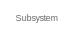
[diagram: root canvas - part 1/23, top left region]
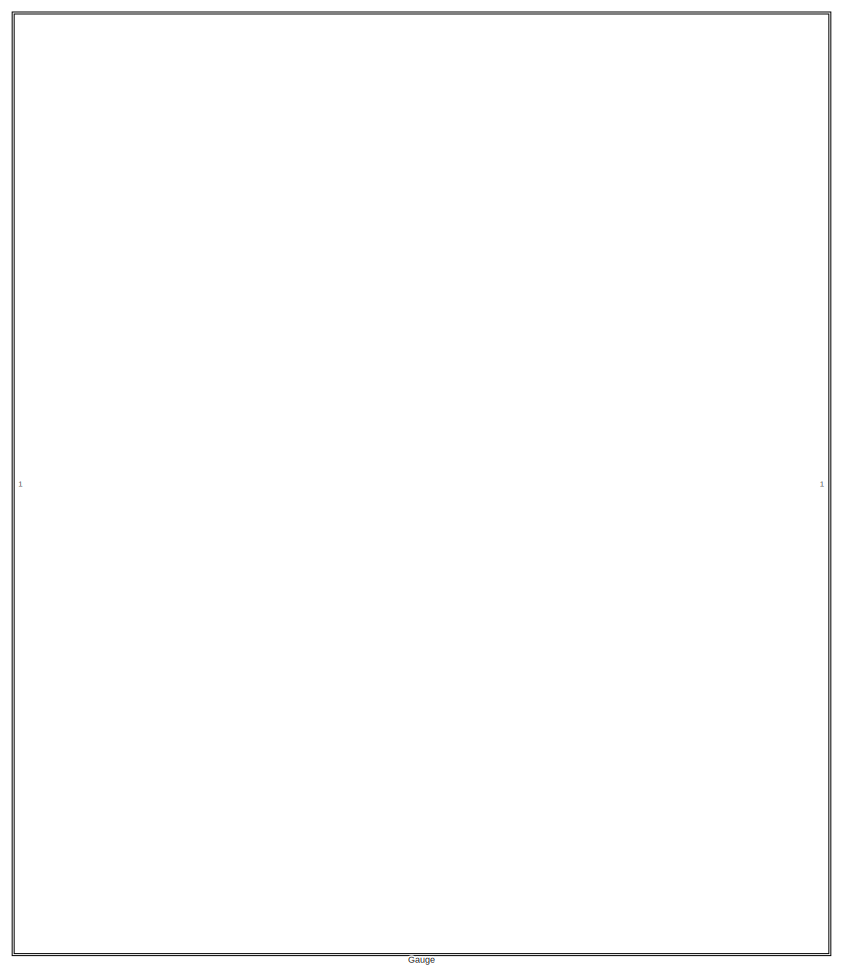
[diagram: root canvas - part 2/23, top left region]
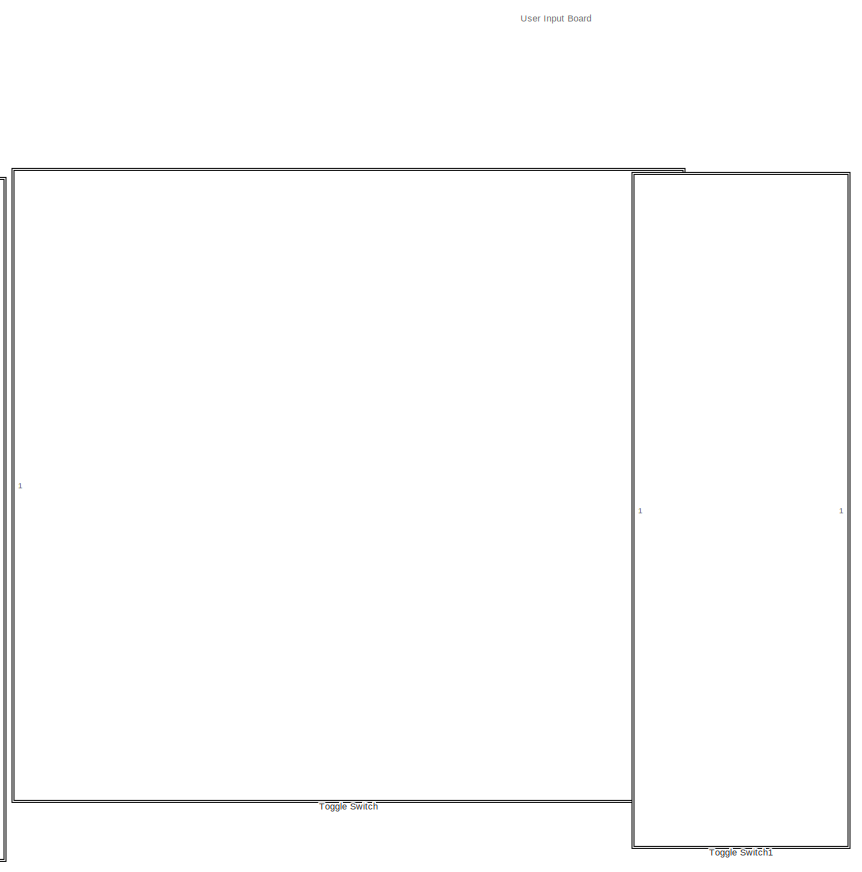
[diagram: root canvas - part 3/23, top center region]
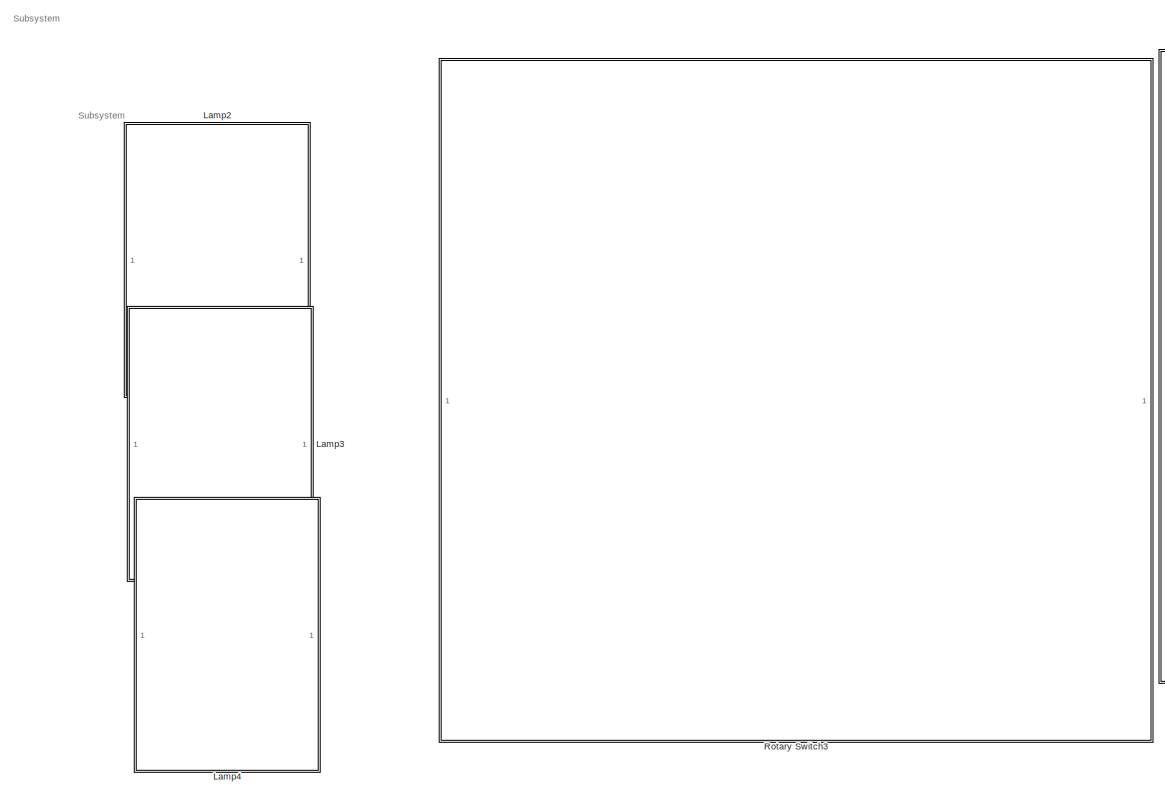
[diagram: root canvas - part 4/23, top center region]
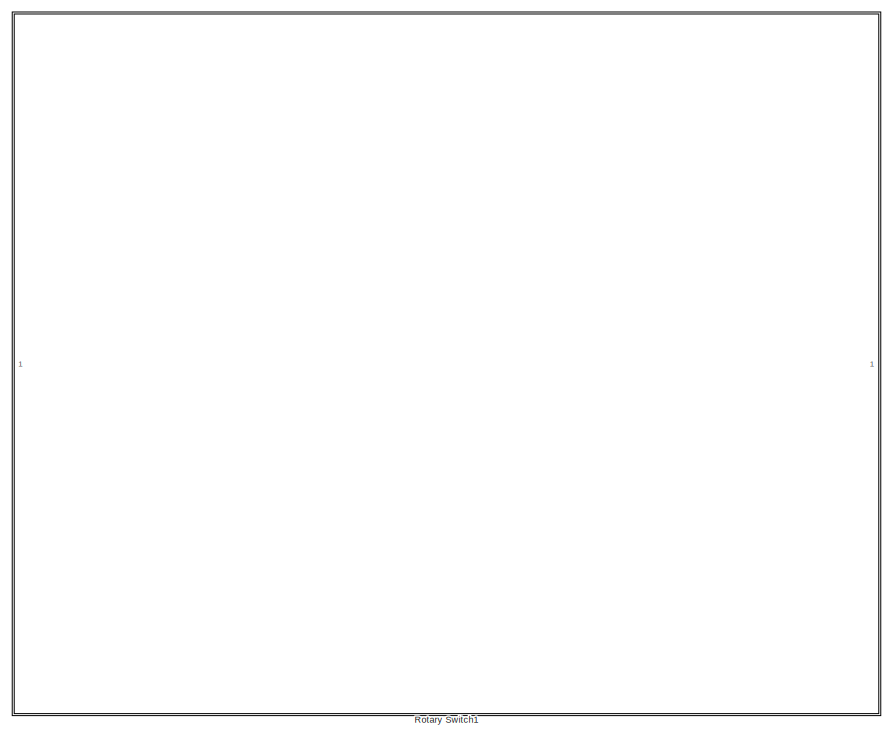
[diagram: root canvas - part 5/23, top right region]
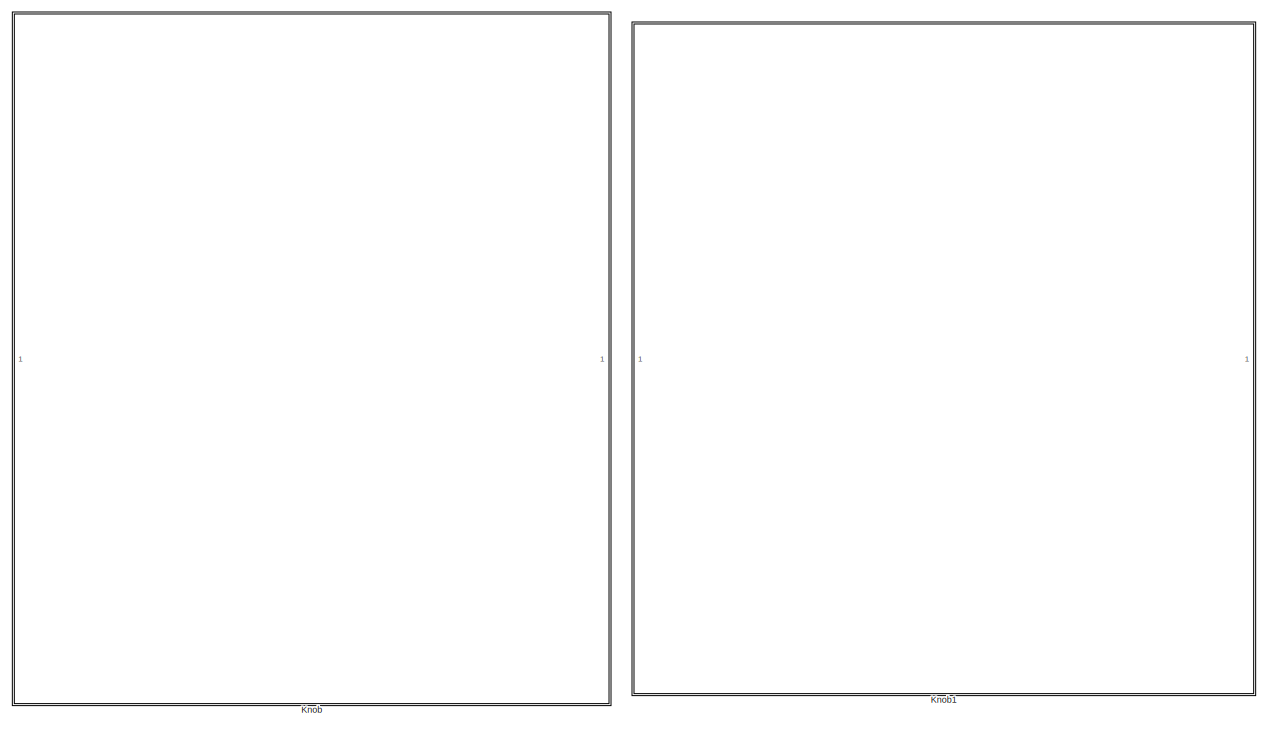
[diagram: root canvas - part 6/23, top right region]
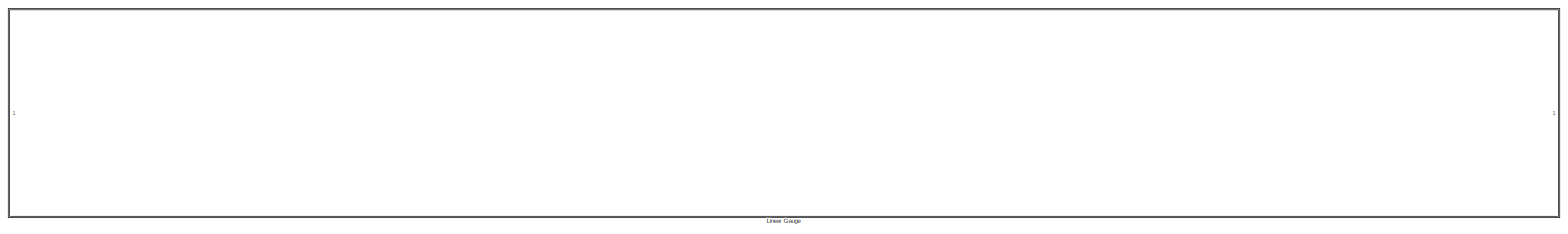
[diagram: root canvas - part 7/23, top left region]
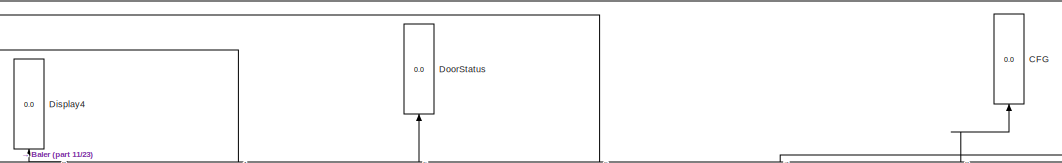
[diagram: root canvas - part 8/23, top right region]
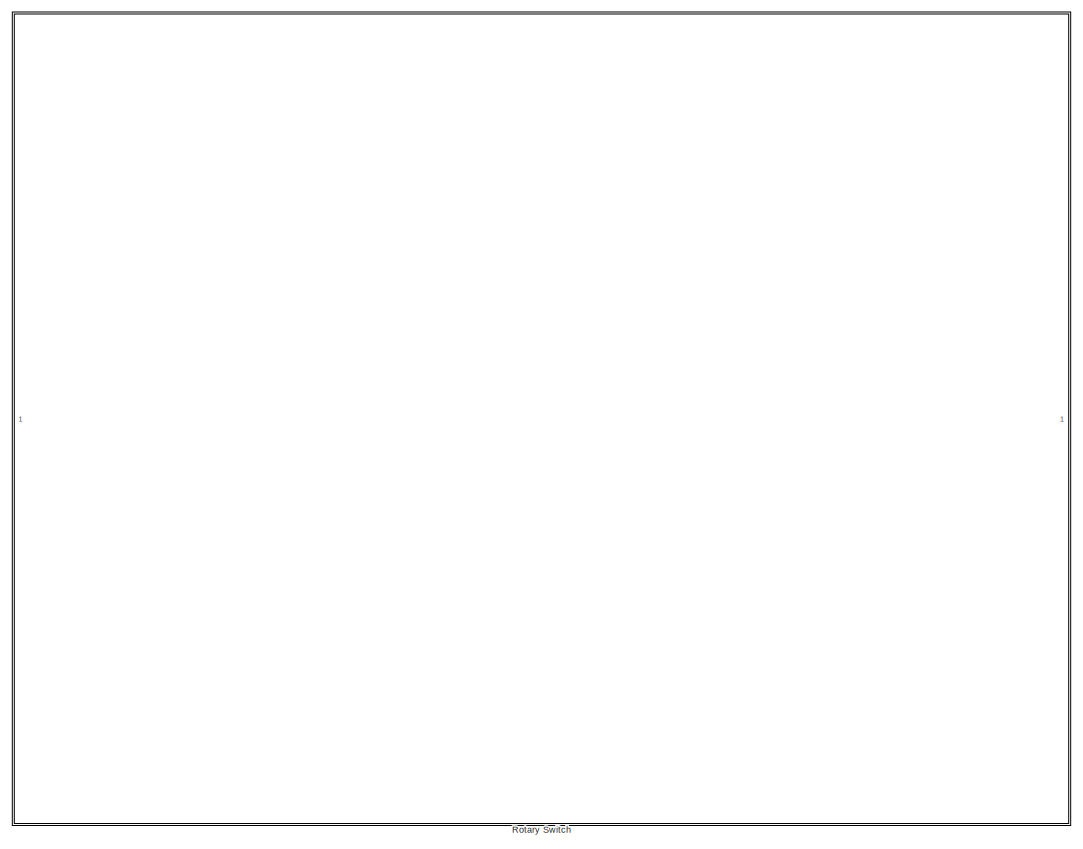
[diagram: root canvas - part 9/23, middle left region]
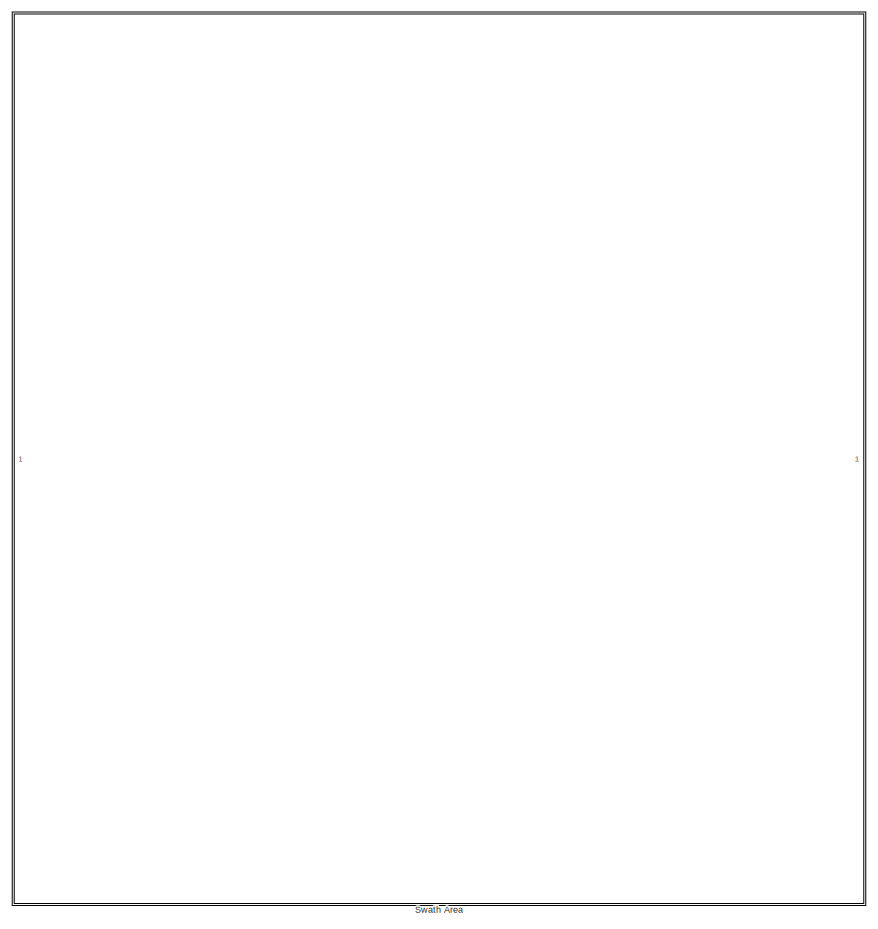
[diagram: root canvas - part 10/23, middle left region]
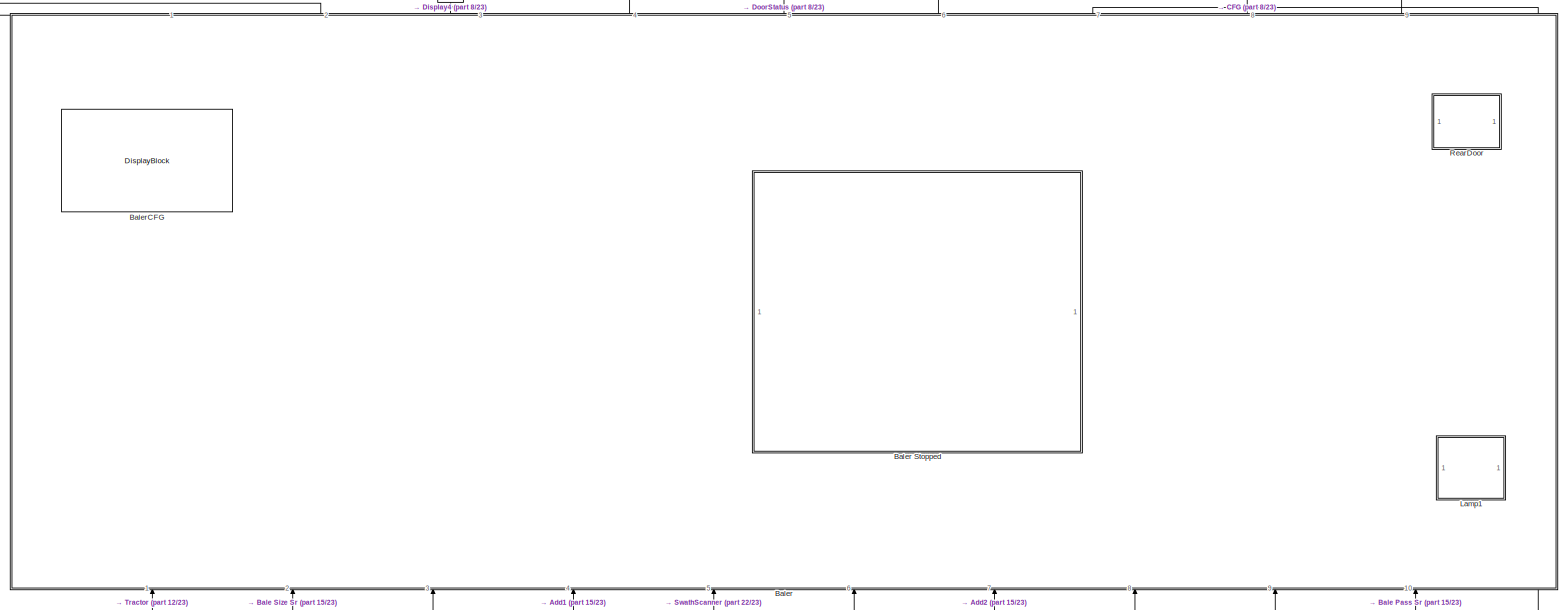
[diagram: root canvas - part 11/23, middle right region]
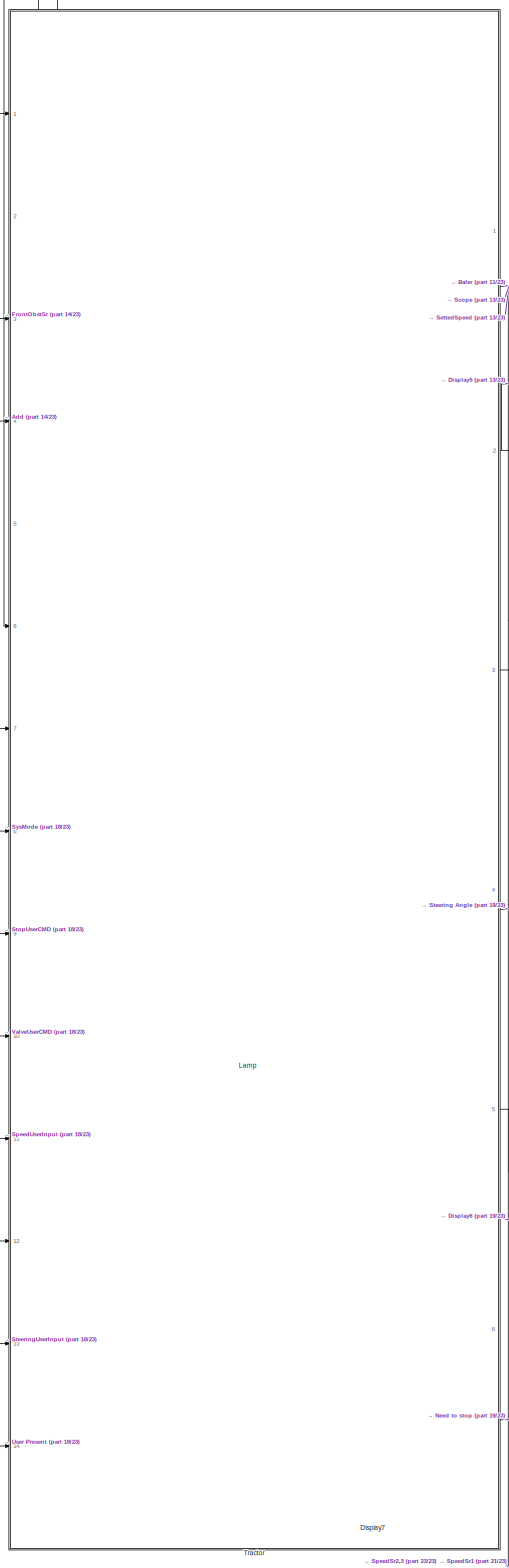
[diagram: root canvas - part 12/23, central region]
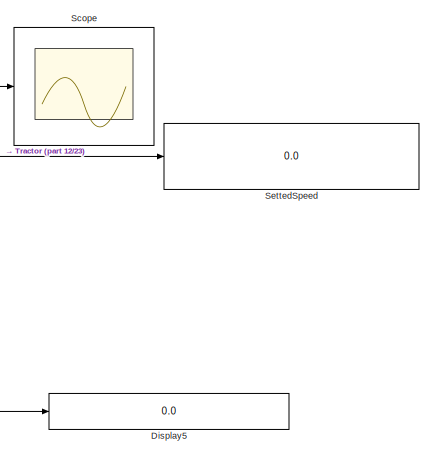
[diagram: root canvas - part 13/23, central region]
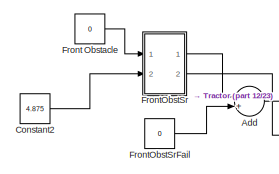
[diagram: root canvas - part 14/23, central region]
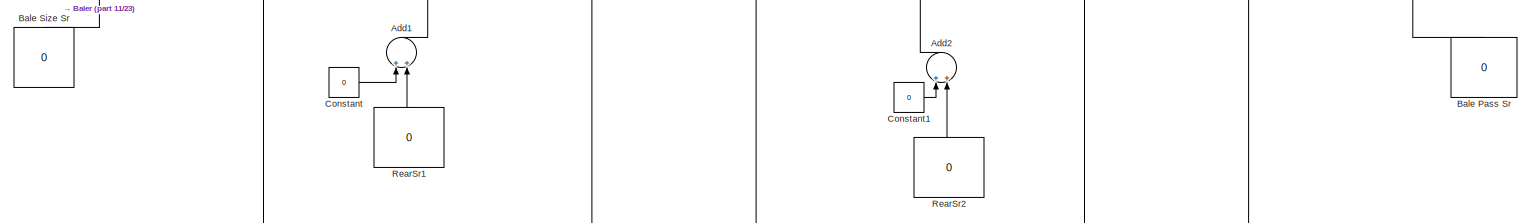
[diagram: root canvas - part 15/23, middle right region]
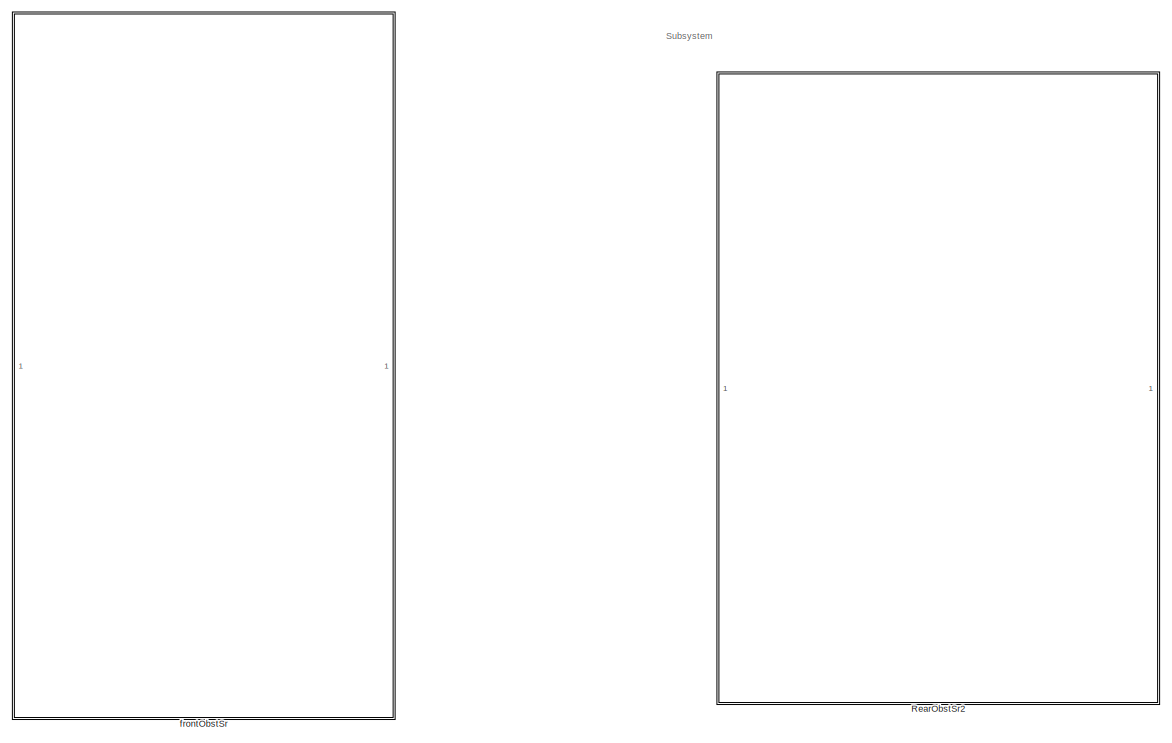
[diagram: root canvas - part 16/23, middle left region]
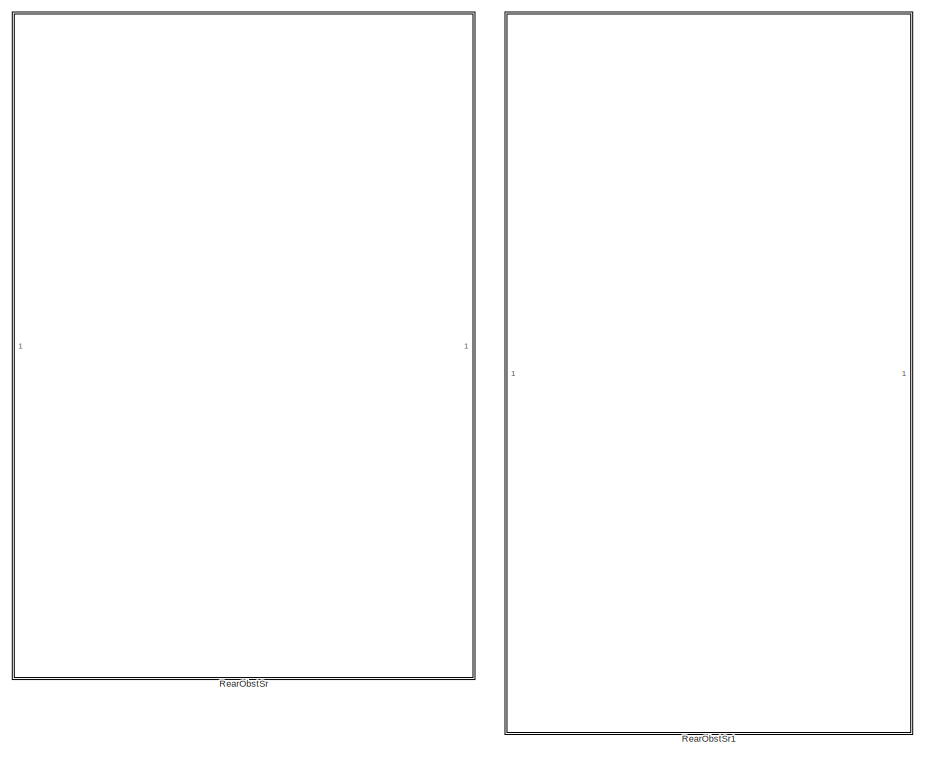
[diagram: root canvas - part 17/23, middle left region]
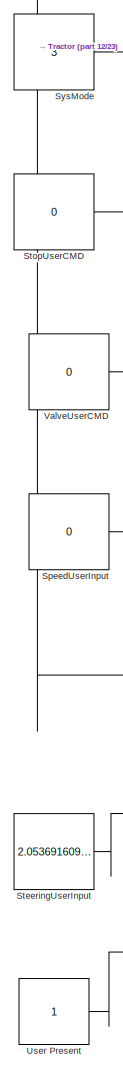
[diagram: root canvas - part 18/23, bottom center region]
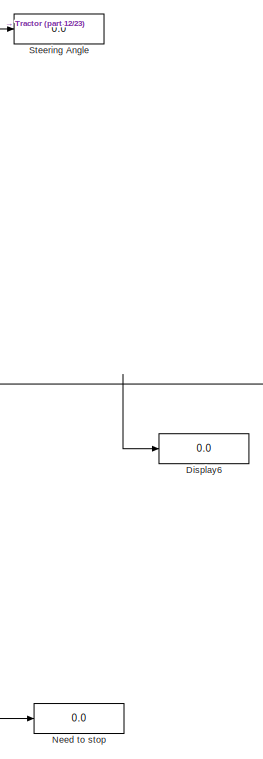
[diagram: root canvas - part 19/23, bottom center region]
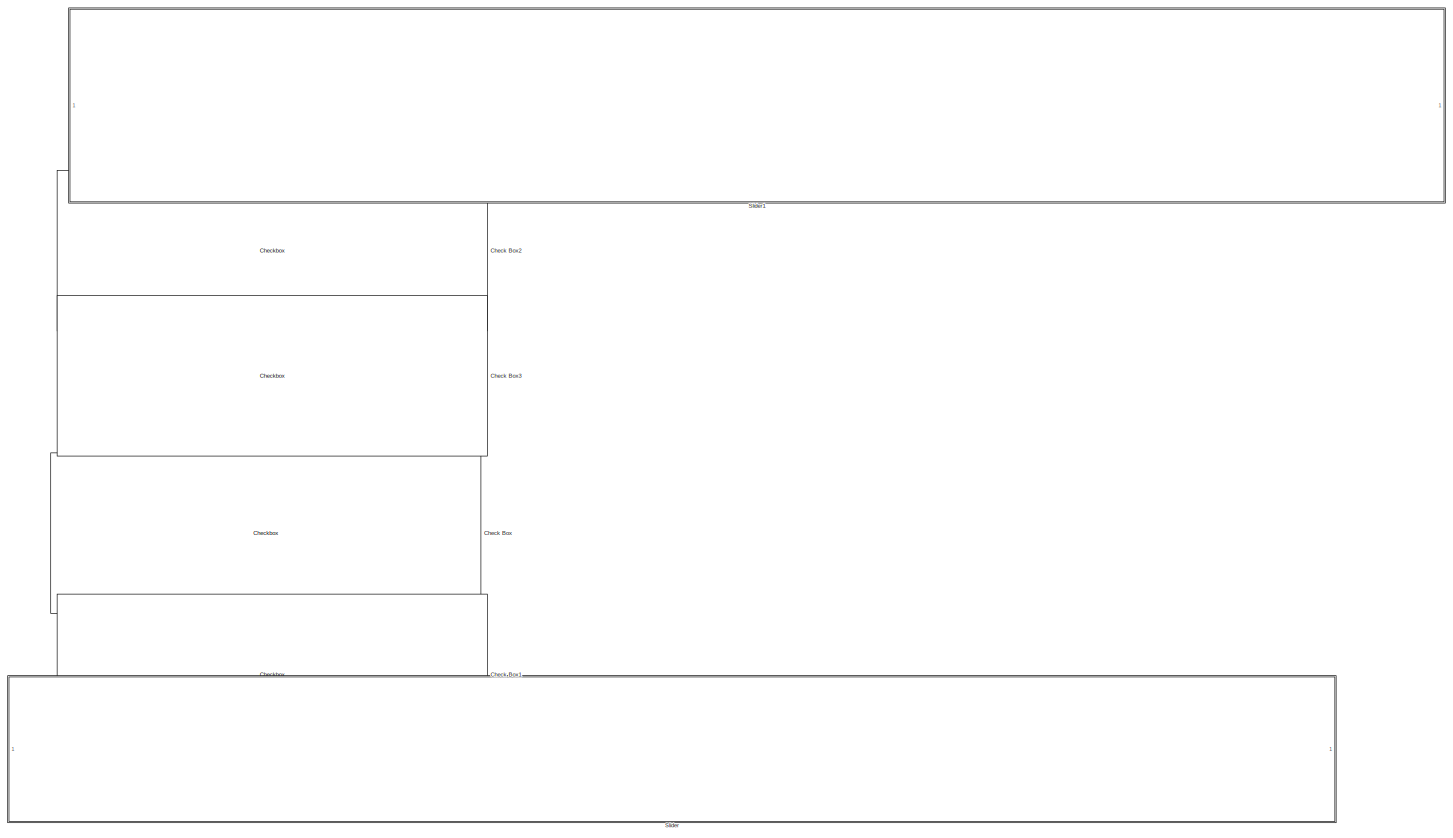
[diagram: root canvas - part 20/23, bottom left region]
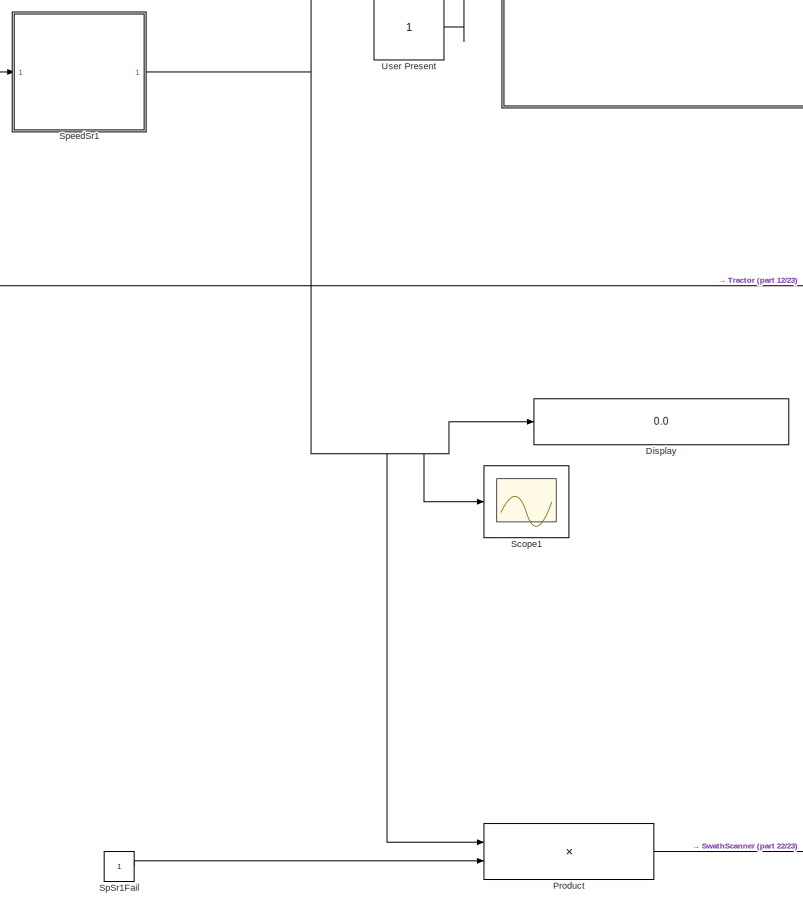
[diagram: root canvas - part 21/23, bottom center region]
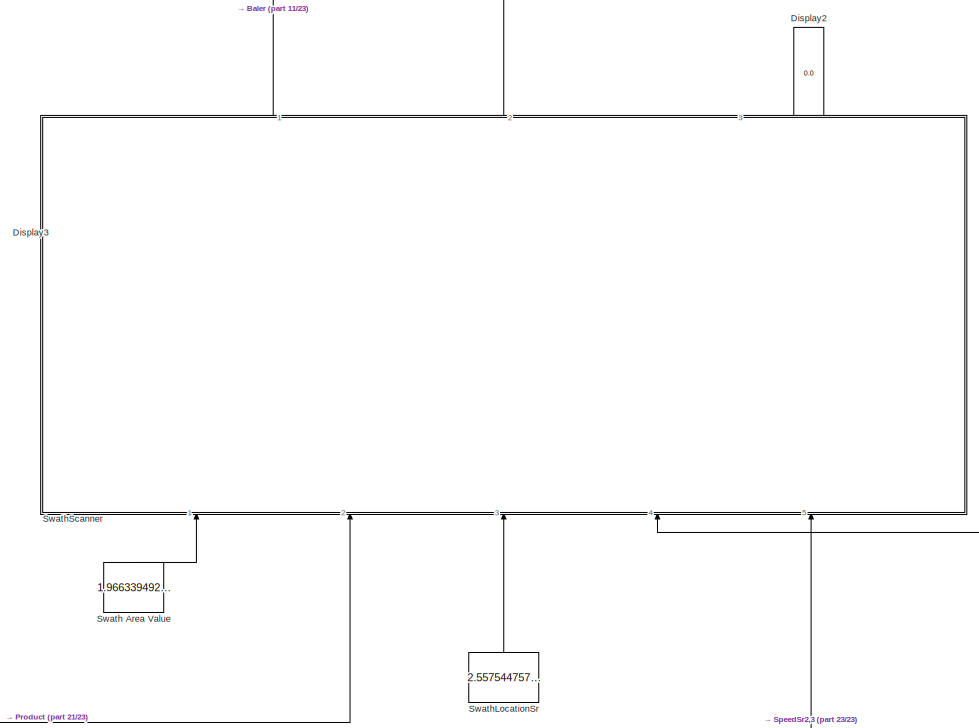
[diagram: root canvas - part 22/23, bottom right region]
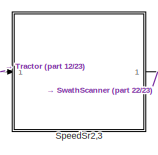
[diagram: root canvas - part 23/23, bottom left region]
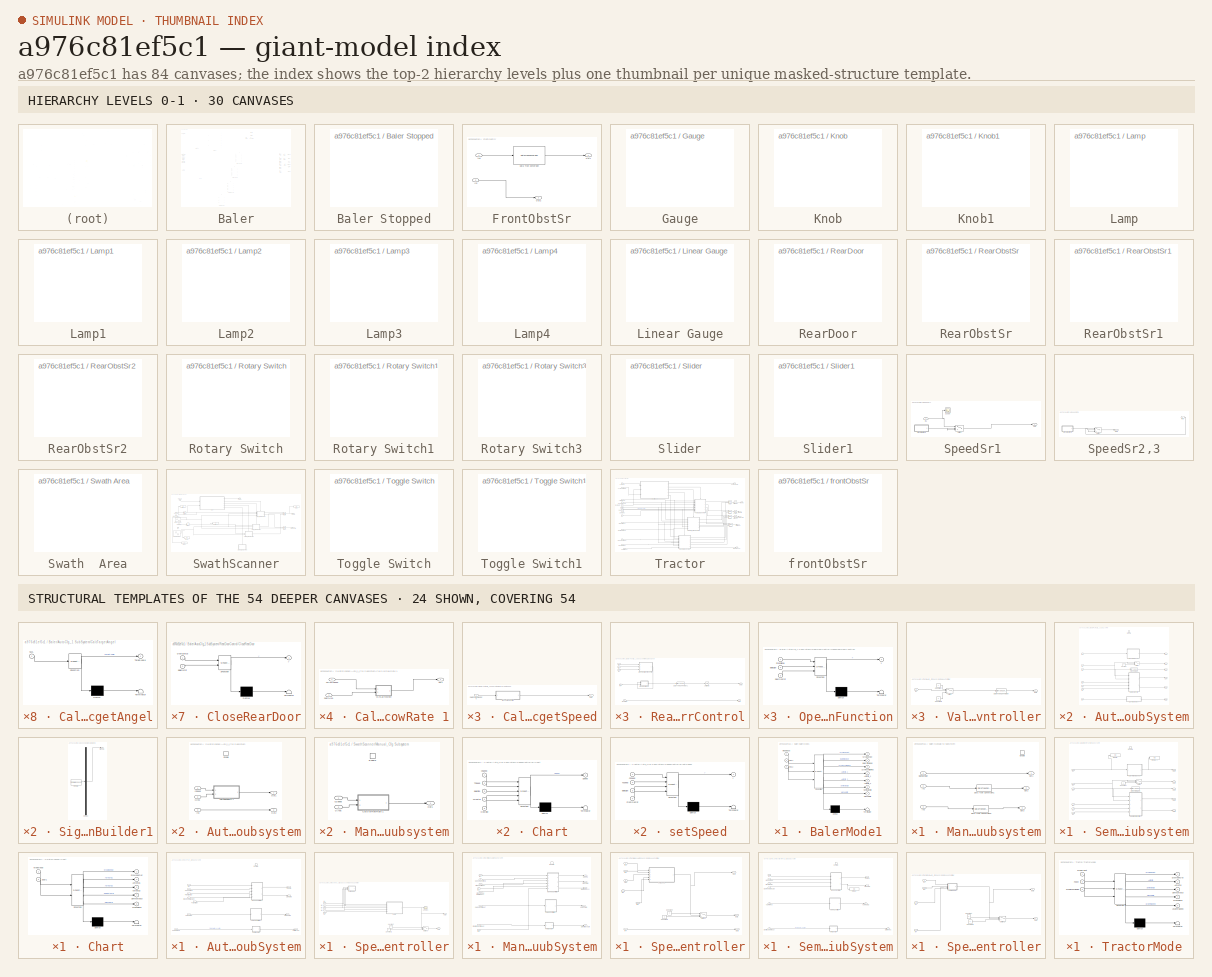
[diagram: thumbnail index - top-2 hierarchy levels (30 canvases) + 24 structural-template representatives of the remaining 54 canvases]
MODEL slx_a976c81ef5c1
KIND model
CONFIG AbsTol = auto
CONFIG EnableMultiTasking = off
CONFIG FixedStep = 0.1
CONFIG MaxStep = auto
CONFIG MinStep = auto
CONFIG RelTol = 1e-3
CONFIG SampleTimeConstraint = Unconstrained
CONFIG Solver = VariableStepAuto
CONFIG SolverName = VariableStepAuto
CONFIG StartTime = 0.0
CONFIG StopTime = 50
BLOCK [Sum] Add
  InputSameDT = off
  OutDataTypeStr = Inherit: Inherit via internal rule
  Ports = [2, 1]
  SaturateOnIntegerOverflow = off
BLOCK [Sum] Add1
  InputSameDT = off
  OutDataTypeStr = Inherit: Inherit via internal rule
  Ports = [2, 1]
  SaturateOnIntegerOverflow = off
BLOCK [Sum] Add2
  InputSameDT = off
  OutDataTypeStr = Inherit: Inherit via internal rule
  Ports = [2, 1]
  SaturateOnIntegerOverflow = off
BLOCK [Constant] Bale Pass Sr
  Value = 0
BLOCK [Constant] Bale Size Sr
  Value = 0
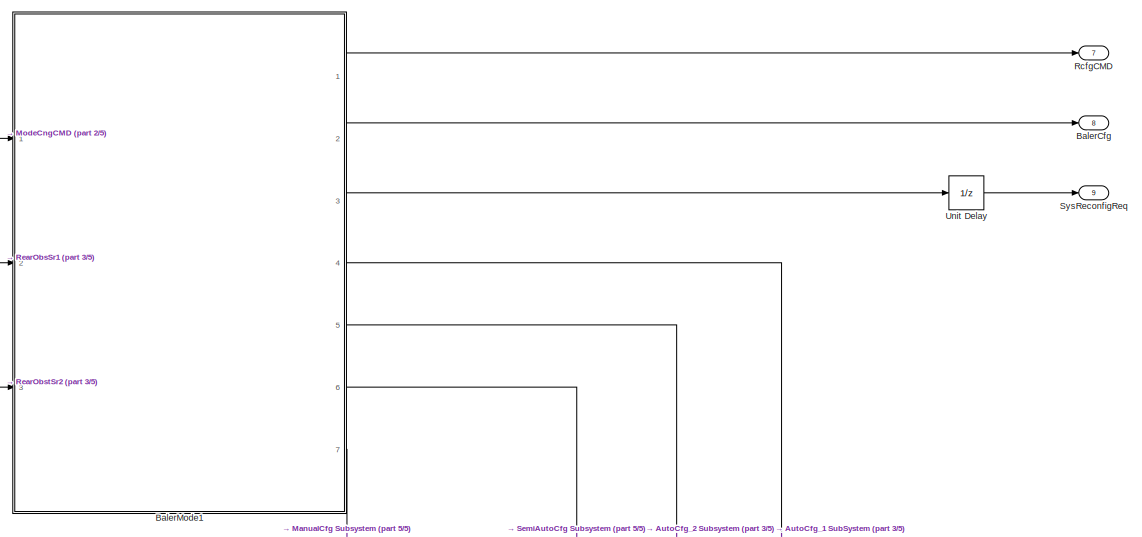
[diagram: Baler - part 1/5, top center region]
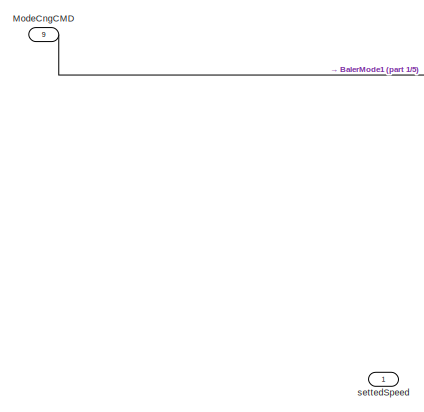
[diagram: Baler - part 2/5, top left region]
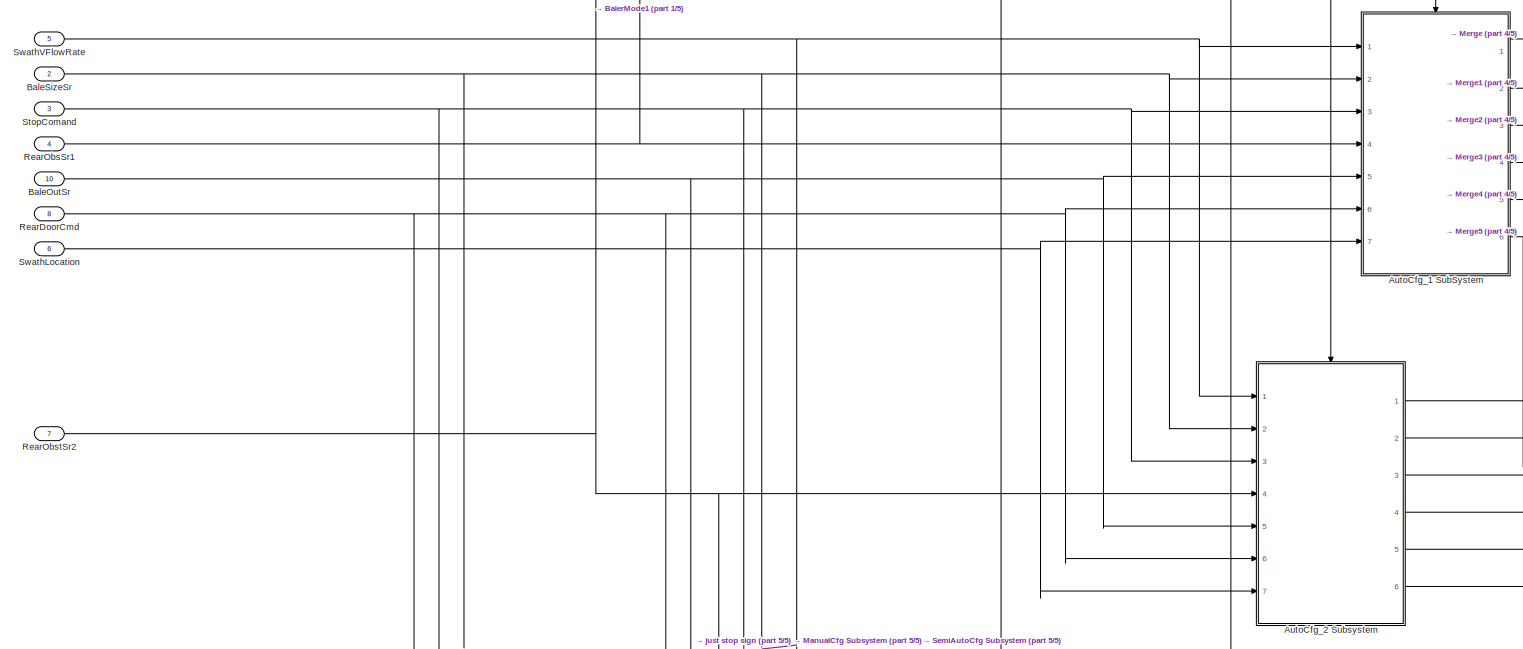
[diagram: Baler - part 3/5, middle left region]
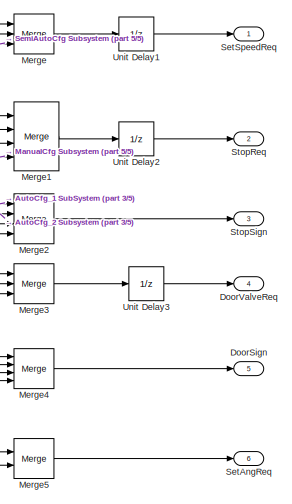
[diagram: Baler - part 4/5, middle right region]
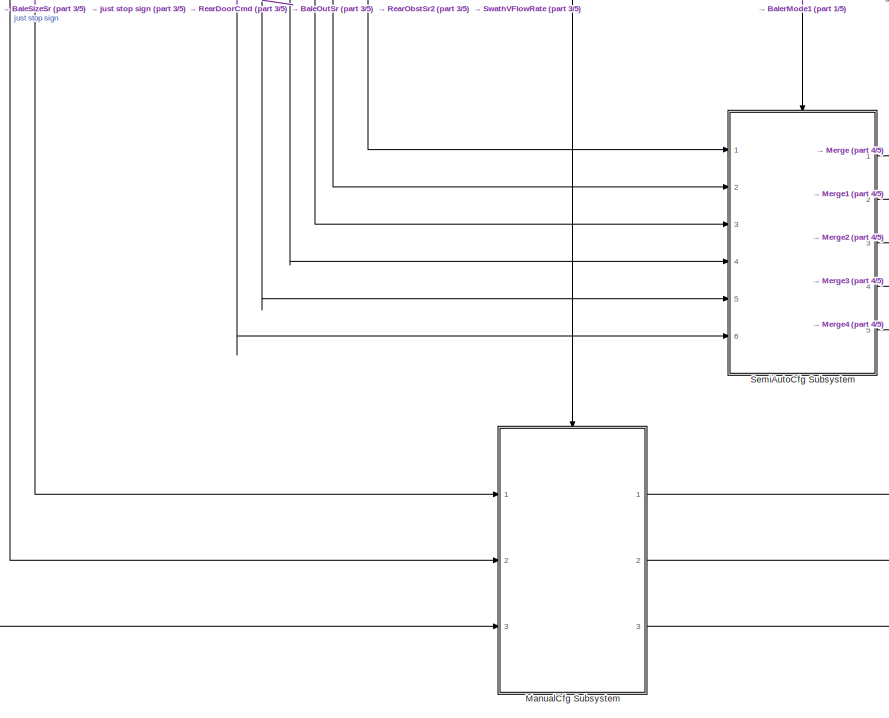
[diagram: Baler - part 5/5, bottom left region]
BLOCK [SubSystem] Baler
  Ports = [10, 9]
  RequestExecContextInheritance = off
  Variant = off
BLOCK [SubSystem] Baler Stopped
  DialogController = hmiCreateDDGDialog
  IsWebBlock = on
  MaskHideContents = on
  Ports = []
  RequestExecContextInheritance = off
  Variant = off
BLOCK [SubSystem] Baler/AutoCfg_1 SubSystem
  Ports = [7, 6, 1]
  RequestExecContextInheritance = off
  Variant = off
BLOCK [SubSystem] Baler/AutoCfg_1 SubSystem/CalcTargetAngel
  ErrorFcn = Stateflow.Translate.translate
  PermitHierarchicalResolution = ExplicitOnly
  Ports = [1, 1]
  RequestExecContextInheritance = off
  SFBlockType = MATLAB Function
  TreatAsAtomicUnit = on
  Variant = off
BLOCK [Demux] Baler/AutoCfg_1 SubSystem/CalcTargetAngel/ Demux 
  Outputs = 1
  Ports = [1, 1]
BLOCK [S-Function] Baler/AutoCfg_1 SubSystem/CalcTargetAngel/ SFunction 
  EnableBusSupport = on
  FunctionName = sf_sfun
  PortCounts = [1 2]
  Ports = [1, 2]
  SFcnIsStateOwnerBlock = off
  SFunctionDeploymentMode = off
  Tag = Stateflow S-Function TIM 6
BLOCK [Terminator] Baler/AutoCfg_1 SubSystem/CalcTargetAngel/ Terminator 
BLOCK [Inport] Baler/AutoCfg_1 SubSystem/CalcTargetAngel/SWL
  IconDisplay = Port number
BLOCK [Outport] Baler/AutoCfg_1 SubSystem/CalcTargetAngel/TargetAngle
  IconDisplay = Port number
BLOCK [SubSystem] Baler/AutoCfg_1 SubSystem/CalcTargetSpeed
  Ports = [1, 1]
  RequestExecContextInheritance = off
  Variant = off
BLOCK [SubSystem] Baler/AutoCfg_1 SubSystem/CalcTargetSpeed/MATLAB Function
  ErrorFcn = Stateflow.Translate.translate
  PermitHierarchicalResolution = ExplicitOnly
  Ports = [1, 1]
  RequestExecContextInheritance = off
  SFBlockType = MATLAB Function
  TreatAsAtomicUnit = on
  Variant = off
BLOCK [Demux] Baler/AutoCfg_1 SubSystem/CalcTargetSpeed/MATLAB Function/ Demux 
  Outputs = 1
  Ports = [1, 1]
BLOCK [S-Function] Baler/AutoCfg_1 SubSystem/CalcTargetSpeed/MATLAB Function/ SFunction 
  EnableBusSupport = on
  FunctionName = sf_sfun
  PortCounts = [1 2]
  Ports = [1, 2]
  SFcnIsStateOwnerBlock = off
  SFunctionDeploymentMode = off
  Tag = Stateflow S-Function TIM 2
BLOCK [Terminator] Baler/AutoCfg_1 SubSystem/CalcTargetSpeed/MATLAB Function/ Terminator 
BLOCK [Outport] Baler/AutoCfg_1 SubSystem/CalcTargetSpeed/MATLAB Function/TargetSpeed
  IconDisplay = Port number
BLOCK [Inport] Baler/AutoCfg_1 SubSystem/CalcTargetSpeed/MATLAB Function/u
  IconDisplay = Port number
BLOCK [Outport] Baler/AutoCfg_1 SubSystem/CalcTargetSpeed/Out2
  IconDisplay = Port number
BLOCK [Inport] Baler/AutoCfg_1 SubSystem/CalcTargetSpeed/SwathVolFlowaRate
  IconDisplay = Port number
BLOCK [Constant] Baler/AutoCfg_1 SubSystem/Constant
  Value = 0
BLOCK [EnablePort] Baler/AutoCfg_1 SubSystem/Enable
  Ports = []
BLOCK [Inport] Baler/AutoCfg_1 SubSystem/In1
  IconDisplay = Port number
BLOCK [Inport] Baler/AutoCfg_1 SubSystem/In2
  IconDisplay = Port number
  Port = 2
BLOCK [Inport] Baler/AutoCfg_1 SubSystem/In3
  IconDisplay = Port number
  Port = 3
BLOCK [Inport] Baler/AutoCfg_1 SubSystem/In4
  IconDisplay = Port number
  Port = 4
BLOCK [Inport] Baler/AutoCfg_1 SubSystem/In5
  IconDisplay = Port number
  Port = 5
BLOCK [Inport] Baler/AutoCfg_1 SubSystem/In6
  IconDisplay = Port number
  Port = 6
BLOCK [Inport] Baler/AutoCfg_1 SubSystem/In7
  IconDisplay = Port number
  Port = 7
BLOCK [Outport] Baler/AutoCfg_1 SubSystem/Out1
  IconDisplay = Port number
BLOCK [Outport] Baler/AutoCfg_1 SubSystem/Out2
  IconDisplay = Port number
  Port = 2
BLOCK [Outport] Baler/AutoCfg_1 SubSystem/Out3
  IconDisplay = Port number
  Port = 3
BLOCK [Outport] Baler/AutoCfg_1 SubSystem/Out4
  IconDisplay = Port number
  Port = 4
BLOCK [Outport] Baler/AutoCfg_1 SubSystem/Out5
  IconDisplay = Port number
  Port = 5
BLOCK [Outport] Baler/AutoCfg_1 SubSystem/Out6
  IconDisplay = Port number
  Port = 6
BLOCK [SubSystem] Baler/AutoCfg_1 SubSystem/RearDoorControl
  Ports = [5, 2]
  RequestExecContextInheritance = off
  Variant = off
BLOCK [SubSystem] Baler/AutoCfg_1 SubSystem/RearDoorControl/CloseRearDoor
  ErrorFcn = Stateflow.Translate.translate
  PermitHierarchicalResolution = ExplicitOnly
  Ports = [2, 1]
  RequestExecContextInheritance = off
  SFBlockType = MATLAB Function
  TreatAsAtomicUnit = on
  Variant = off
BLOCK [Demux] Baler/AutoCfg_1 SubSystem/RearDoorControl/CloseRearDoor/ Demux 
  Outputs = 1
  Ports = [1, 1]
BLOCK [S-Function] Baler/AutoCfg_1 SubSystem/RearDoorControl/CloseRearDoor/ SFunction 
  EnableBusSupport = on
  FunctionName = sf_sfun
  PortCounts = [2 2]
  Ports = [2, 2]
  SFcnIsStateOwnerBlock = off
  SFunctionDeploymentMode = off
  Tag = Stateflow S-Function TIM 5
BLOCK [Terminator] Baler/AutoCfg_1 SubSystem/RearDoorControl/CloseRearDoor/ Terminator 
BLOCK [Inport] Baler/AutoCfg_1 SubSystem/RearDoorControl/CloseRearDoor/BaleOutSr
  IconDisplay = Port number
  Port = 2
BLOCK [Inport] Baler/AutoCfg_1 SubSystem/RearDoorControl/CloseRearDoor/DoorStatus
  IconDisplay = Port number
BLOCK [Outport] Baler/AutoCfg_1 SubSystem/RearDoorControl/CloseRearDoor/y
  IconDisplay = Port number
BLOCK [DataTypeConversion] Baler/AutoCfg_1 SubSystem/RearDoorControl/Data Type Conversion1
  OutDataTypeStr = boolean
  RndMeth = Floor
  SaturateOnIntegerOverflow = off
BLOCK [Inport] Baler/AutoCfg_1 SubSystem/RearDoorControl/DoorCmd
  IconDisplay = Port number
  Port = 5
BLOCK [Inport] Baler/AutoCfg_1 SubSystem/RearDoorControl/In1
  IconDisplay = Port number
BLOCK [Inport] Baler/AutoCfg_1 SubSystem/RearDoorControl/In2
  IconDisplay = Port number
  Port = 2
BLOCK [Inport] Baler/AutoCfg_1 SubSystem/RearDoorControl/In3
  IconDisplay = Port number
  Port = 3
BLOCK [Inport] Baler/AutoCfg_1 SubSystem/RearDoorControl/In4
  IconDisplay = Port number
  Port = 4
BLOCK [SubSystem] Baler/AutoCfg_1 SubSystem/RearDoorControl/OpenRearDoorFunction
  ErrorFcn = Stateflow.Translate.translate
  PermitHierarchicalResolution = ExplicitOnly
  Ports = [3, 1]
  RequestExecContextInheritance = off
  SFBlockType = MATLAB Function
  TreatAsAtomicUnit = on
  Variant = off
BLOCK [Demux] Baler/AutoCfg_1 SubSystem/RearDoorControl/OpenRearDoorFunction/ Demux 
  Outputs = 1
  Ports = [1, 1]
BLOCK [S-Function] Baler/AutoCfg_1 SubSystem/RearDoorControl/OpenRearDoorFunction/ SFunction 
  EnableBusSupport = on
  FunctionName = sf_sfun
  PortCounts = [3 2]
  Ports = [3, 2]
  SFcnIsStateOwnerBlock = off
  SFunctionDeploymentMode = off
  Tag = Stateflow S-Function TIM 4
BLOCK [Terminator] Baler/AutoCfg_1 SubSystem/RearDoorControl/OpenRearDoorFunction/ Terminator 
BLOCK [Inport] Baler/AutoCfg_1 SubSystem/RearDoorControl/OpenRearDoorFunction/BaleSize
  IconDisplay = Port number
  Port = 2
BLOCK [Inport] Baler/AutoCfg_1 SubSystem/RearDoorControl/OpenRearDoorFunction/RearObstSr
  IconDisplay = Port number
  Port = 3
BLOCK [Inport] Baler/AutoCfg_1 SubSystem/RearDoorControl/OpenRearDoorFunction/StopSignal
  IconDisplay = Port number
BLOCK [Outport] Baler/AutoCfg_1 SubSystem/RearDoorControl/OpenRearDoorFunction/Y
  IconDisplay = Port number
BLOCK [Outport] Baler/AutoCfg_1 SubSystem/RearDoorControl/Out1
  IconDisplay = Port number
BLOCK [Outport] Baler/AutoCfg_1 SubSystem/RearDoorControl/Out2
  IconDisplay = Port number
  Port = 2
BLOCK [UnitDelay] Baler/AutoCfg_1 SubSystem/RearDoorControl/Unit Delay
  InputProcessing = Elements as channels (sample based)
  SampleTime = -1
BLOCK [Switch] Baler/AutoCfg_1 SubSystem/Switch
  Criteria = u2 > Threshold
  InputSameDT = off
  SaturateOnIntegerOverflow = off
BLOCK [DataTypeConversion] Baler/AutoCfg_1 SubSystem/stop command
  RndMeth = Floor
  SaturateOnIntegerOverflow = off
BLOCK [SubSystem] Baler/AutoCfg_2 Subsystem
  Ports = [7, 6, 1]
  RequestExecContextInheritance = off
  Variant = off
BLOCK [SubSystem] Baler/AutoCfg_2 Subsystem/CalcTargetAngel
  ErrorFcn = Stateflow.Translate.translate
  PermitHierarchicalResolution = ExplicitOnly
  Ports = [1, 1]
  RequestExecContextInheritance = off
  SFBlockType = MATLAB Function
  TreatAsAtomicUnit = on
  Variant = off
BLOCK [Demux] Baler/AutoCfg_2 Subsystem/CalcTargetAngel/ Demux 
  Outputs = 1
  Ports = [1, 1]
BLOCK [S-Function] Baler/AutoCfg_2 Subsystem/CalcTargetAngel/ SFunction 
  EnableBusSupport = on
  FunctionName = sf_sfun
  PortCounts = [1 2]
  Ports = [1, 2]
  SFcnIsStateOwnerBlock = off
  SFunctionDeploymentMode = off
  Tag = Stateflow S-Function TIM 15
BLOCK [Terminator] Baler/AutoCfg_2 Subsystem/CalcTargetAngel/ Terminator 
BLOCK [Inport] Baler/AutoCfg_2 Subsystem/CalcTargetAngel/SWL
  IconDisplay = Port number
BLOCK [Outport] Baler/AutoCfg_2 Subsystem/CalcTargetAngel/TargetAngle
  IconDisplay = Port number
BLOCK [SubSystem] Baler/AutoCfg_2 Subsystem/CalcTargetSpeed
  Ports = [1, 1]
  RequestExecContextInheritance = off
  Variant = off
BLOCK [SubSystem] Baler/AutoCfg_2 Subsystem/CalcTargetSpeed/MATLAB Function
  ErrorFcn = Stateflow.Translate.translate
  PermitHierarchicalResolution = ExplicitOnly
  Ports = [1, 1]
  RequestExecContextInheritance = off
  SFBlockType = MATLAB Function
  TreatAsAtomicUnit = on
  Variant = off
BLOCK [Demux] Baler/AutoCfg_2 Subsystem/CalcTargetSpeed/MATLAB Function/ Demux 
  Outputs = 1
  Ports = [1, 1]
BLOCK [S-Function] Baler/AutoCfg_2 Subsystem/CalcTargetSpeed/MATLAB Function/ SFunction 
  EnableBusSupport = on
  FunctionName = sf_sfun
  PortCounts = [1 2]
  Ports = [1, 2]
  SFcnIsStateOwnerBlock = off
  SFunctionDeploymentMode = off
  Tag = Stateflow S-Function TIM 16
BLOCK [Terminator] Baler/AutoCfg_2 Subsystem/CalcTargetSpeed/MATLAB Function/ Terminator 
BLOCK [Outport] Baler/AutoCfg_2 Subsystem/CalcTargetSpeed/MATLAB Function/TargetSpeed
  IconDisplay = Port number
BLOCK [Inport] Baler/AutoCfg_2 Subsystem/CalcTargetSpeed/MATLAB Function/u
  IconDisplay = Port number
BLOCK [Outport] Baler/AutoCfg_2 Subsystem/CalcTargetSpeed/Out2
  IconDisplay = Port number
BLOCK [Inport] Baler/AutoCfg_2 Subsystem/CalcTargetSpeed/SwathVolFlowaRate
  IconDisplay = Port number
BLOCK [Constant] Baler/AutoCfg_2 Subsystem/Constant
  Value = 0
BLOCK [EnablePort] Baler/AutoCfg_2 Subsystem/Enable
  Ports = []
BLOCK [Inport] Baler/AutoCfg_2 Subsystem/In1
  IconDisplay = Port number
BLOCK [Inport] Baler/AutoCfg_2 Subsystem/In2
  IconDisplay = Port number
  Port = 2
BLOCK [Inport] Baler/AutoCfg_2 Subsystem/In3
  IconDisplay = Port number
  Port = 3
BLOCK [Inport] Baler/AutoCfg_2 Subsystem/In4
  IconDisplay = Port number
  Port = 4
BLOCK [Inport] Baler/AutoCfg_2 Subsystem/In5
  IconDisplay = Port number
  Port = 5
BLOCK [Inport] Baler/AutoCfg_2 Subsystem/In6
  IconDisplay = Port number
  Port = 6
BLOCK [Inport] Baler/AutoCfg_2 Subsystem/In7
  IconDisplay = Port number
  Port = 7
BLOCK [Outport] Baler/AutoCfg_2 Subsystem/Out1
  IconDisplay = Port number
BLOCK [Outport] Baler/AutoCfg_2 Subsystem/Out2
  IconDisplay = Port number
  Port = 2
BLOCK [Outport] Baler/AutoCfg_2 Subsystem/Out3
  IconDisplay = Port number
  Port = 3
BLOCK [Outport] Baler/AutoCfg_2 Subsystem/Out4
  IconDisplay = Port number
  Port = 4
BLOCK [Outport] Baler/AutoCfg_2 Subsystem/Out5
  IconDisplay = Port number
  Port = 5
BLOCK [Outport] Baler/AutoCfg_2 Subsystem/Out6
  IconDisplay = Port number
  Port = 6
BLOCK [SubSystem] Baler/AutoCfg_2 Subsystem/RearDoorControl
  Ports = [5, 2]
  RequestExecContextInheritance = off
  Variant = off
BLOCK [SubSystem] Baler/AutoCfg_2 Subsystem/RearDoorControl/CloseRearDoor
  ErrorFcn = Stateflow.Translate.translate
  PermitHierarchicalResolution = ExplicitOnly
  Ports = [2, 1]
  RequestExecContextInheritance = off
  SFBlockType = MATLAB Function
  TreatAsAtomicUnit = on
  Variant = off
BLOCK [Demux] Baler/AutoCfg_2 Subsystem/RearDoorControl/CloseRearDoor/ Demux 
  Outputs = 1
  Ports = [1, 1]
BLOCK [S-Function] Baler/AutoCfg_2 Subsystem/RearDoorControl/CloseRearDoor/ SFunction 
  EnableBusSupport = on
  FunctionName = sf_sfun
  PortCounts = [2 2]
  Ports = [2, 2]
  SFcnIsStateOwnerBlock = off
  SFunctionDeploymentMode = off
  Tag = Stateflow S-Function TIM 17
BLOCK [Terminator] Baler/AutoCfg_2 Subsystem/RearDoorControl/CloseRearDoor/ Terminator 
BLOCK [Inport] Baler/AutoCfg_2 Subsystem/RearDoorControl/CloseRearDoor/BaleOutSr
  IconDisplay = Port number
  Port = 2
BLOCK [Inport] Baler/AutoCfg_2 Subsystem/RearDoorControl/CloseRearDoor/DoorStatus
  IconDisplay = Port number
BLOCK [Outport] Baler/AutoCfg_2 Subsystem/RearDoorControl/CloseRearDoor/y
  IconDisplay = Port number
BLOCK [DataTypeConversion] Baler/AutoCfg_2 Subsystem/RearDoorControl/Data Type Conversion1
  OutDataTypeStr = boolean
  RndMeth = Floor
  SaturateOnIntegerOverflow = off
BLOCK [Inport] Baler/AutoCfg_2 Subsystem/RearDoorControl/DoorCmd
  IconDisplay = Port number
  Port = 5
BLOCK [Inport] Baler/AutoCfg_2 Subsystem/RearDoorControl/In1
  IconDisplay = Port number
BLOCK [Inport] Baler/AutoCfg_2 Subsystem/RearDoorControl/In2
  IconDisplay = Port number
  Port = 2
BLOCK [Inport] Baler/AutoCfg_2 Subsystem/RearDoorControl/In3
  IconDisplay = Port number
  Port = 3
BLOCK [Inport] Baler/AutoCfg_2 Subsystem/RearDoorControl/In4
  IconDisplay = Port number
  Port = 4
BLOCK [SubSystem] Baler/AutoCfg_2 Subsystem/RearDoorControl/OpenRearDoorFunction
  ErrorFcn = Stateflow.Translate.translate
  PermitHierarchicalResolution = ExplicitOnly
  Ports = [3, 1]
  RequestExecContextInheritance = off
  SFBlockType = MATLAB Function
  TreatAsAtomicUnit = on
  Variant = off
BLOCK [Demux] Baler/AutoCfg_2 Subsystem/RearDoorControl/OpenRearDoorFunction/ Demux 
  Outputs = 1
  Ports = [1, 1]
BLOCK [S-Function] Baler/AutoCfg_2 Subsystem/RearDoorControl/OpenRearDoorFunction/ SFunction 
  EnableBusSupport = on
  FunctionName = sf_sfun
  PortCounts = [3 2]
  Ports = [3, 2]
  SFcnIsStateOwnerBlock = off
  SFunctionDeploymentMode = off
  Tag = Stateflow S-Function TIM 18
BLOCK [Terminator] Baler/AutoCfg_2 Subsystem/RearDoorControl/OpenRearDoorFunction/ Terminator 
BLOCK [Inport] Baler/AutoCfg_2 Subsystem/RearDoorControl/OpenRearDoorFunction/BaleSize
  IconDisplay = Port number
  Port = 2
BLOCK [Inport] Baler/AutoCfg_2 Subsystem/RearDoorControl/OpenRearDoorFunction/RearObstSr
  IconDisplay = Port number
  Port = 3
BLOCK [Inport] Baler/AutoCfg_2 Subsystem/RearDoorControl/OpenRearDoorFunction/StopSignal
  IconDisplay = Port number
BLOCK [Outport] Baler/AutoCfg_2 Subsystem/RearDoorControl/OpenRearDoorFunction/Y
  IconDisplay = Port number
BLOCK [Outport] Baler/AutoCfg_2 Subsystem/RearDoorControl/Out1
  IconDisplay = Port number
BLOCK [Outport] Baler/AutoCfg_2 Subsystem/RearDoorControl/Out2
  IconDisplay = Port number
  Port = 2
BLOCK [UnitDelay] Baler/AutoCfg_2 Subsystem/RearDoorControl/Unit Delay
  InputProcessing = Elements as channels (sample based)
  SampleTime = -1
BLOCK [Switch] Baler/AutoCfg_2 Subsystem/Switch
  Criteria = u2 > Threshold
  InputSameDT = off
  SaturateOnIntegerOverflow = off
BLOCK [DataTypeConversion] Baler/AutoCfg_2 Subsystem/stop command
  RndMeth = Floor
  SaturateOnIntegerOverflow = off
BLOCK [Inport] Baler/BaleOutSr
  IconDisplay = Port number
  Port = 10
BLOCK [Inport] Baler/BaleSizeSr
  IconDisplay = Port number
  Port = 2
BLOCK [Outport] Baler/BalerCfg
  IconDisplay = Port number
  Port = 8
BLOCK [SubSystem] Baler/BalerMode1
  ErrorFcn = Stateflow.Translate.translate
  PermitHierarchicalResolution = ExplicitOnly
  Ports = [3, 7]
  RequestExecContextInheritance = off
  SFBlockType = Chart
  TreatAsAtomicUnit = on
  Variant = off
BLOCK [Demux] Baler/BalerMode1/ Demux 
  Outputs = 1
  Ports = [1, 1]
BLOCK [S-Function] Baler/BalerMode1/ SFunction 
  EnableBusSupport = on
  FunctionName = sf_sfun
  PortCounts = [3 8]
  Ports = [3, 8]
  SFcnIsStateOwnerBlock = off
  SFunctionDeploymentMode = off
  Tag = Stateflow S-Function TIM 7
BLOCK [Terminator] Baler/BalerMode1/ Terminator 
BLOCK [Outport] Baler/BalerMode1/AutoCfg_1
  IconDisplay = Port number
  Port = 4
BLOCK [Outport] Baler/BalerMode1/AutoCfg_2
  IconDisplay = Port number
  Port = 5
BLOCK [Outport] Baler/BalerMode1/BalerCfgMode
  IconDisplay = Port number
  Port = 2
BLOCK [Outport] Baler/BalerMode1/ManualCfg
  IconDisplay = Port number
  Port = 7
BLOCK [Inport] Baler/BalerMode1/ModeInput
  IconDisplay = Port number
BLOCK [Inport] Baler/BalerMode1/RSr1
  IconDisplay = Port number
  Port = 2
BLOCK [Inport] Baler/BalerMode1/RSr2
  IconDisplay = Port number
  Port = 3
BLOCK [Outport] Baler/BalerMode1/SemiAutoCfg
  IconDisplay = Port number
  Port = 6
BLOCK [Outport] Baler/BalerMode1/SysModeOut
  IconDisplay = Port number
BLOCK [Outport] Baler/BalerMode1/SysReconfigReq
  IconDisplay = Port number
  Port = 3
BLOCK [Outport] Baler/DoorSign
  IconDisplay = Port number
  Port = 5
BLOCK [Outport] Baler/DoorValveReq
  IconDisplay = Port number
  Port = 4
BLOCK [SubSystem] Baler/ManualCfg Subsystem
  Ports = [3, 3, 1]
  RequestExecContextInheritance = off
  Variant = off
BLOCK [Inport] Baler/ManualCfg Subsystem/BaleSizeSign
  IconDisplay = Port number
BLOCK [DataTypeConversion] Baler/ManualCfg Subsystem/Data Type Conversion1
  OutDataTypeStr = boolean
  RndMeth = Floor
  SaturateOnIntegerOverflow = off
BLOCK [DataTypeConversion] Baler/ManualCfg Subsystem/Data Type Conversion2
  OutDataTypeStr = boolean
  RndMeth = Floor
  SaturateOnIntegerOverflow = off
BLOCK [EnablePort] Baler/ManualCfg Subsystem/Enable
  Ports = []
BLOCK [Inport] Baler/ManualCfg Subsystem/In2
  IconDisplay = Port number
  Port = 2
BLOCK [Inport] Baler/ManualCfg Subsystem/In3
  IconDisplay = Port number
  Port = 3
BLOCK [Outport] Baler/ManualCfg Subsystem/Out1
  IconDisplay = Port number
BLOCK [Outport] Baler/ManualCfg Subsystem/Out2
  IconDisplay = Port number
  Port = 2
BLOCK [Outport] Baler/ManualCfg Subsystem/Out3
  IconDisplay = Port number
  Port = 3
BLOCK [Merge] Baler/Merge
  Inputs = 3
  Ports = [3, 1]
BLOCK [Merge] Baler/Merge1
  Inputs = 4
  Ports = [4, 1]
BLOCK [Merge] Baler/Merge2
  Inputs = 4
  Ports = [4, 1]
BLOCK [Merge] Baler/Merge3
  Inputs = 3
  Ports = [3, 1]
BLOCK [Merge] Baler/Merge4
  Inputs = 4
  Ports = [4, 1]
BLOCK [Merge] Baler/Merge5
  Ports = [2, 1]
BLOCK [Inport] Baler/ModeCngCMD
  IconDisplay = Port number
  Port = 9
BLOCK [Outport] Baler/RcfgCMD
  IconDisplay = Port number
  Port = 7
BLOCK [Inport] Baler/RearDoorCmd
  IconDisplay = Port number
  Port = 8
BLOCK [Inport] Baler/RearObsSr1
  IconDisplay = Port number
  Port = 4
BLOCK [Inport] Baler/RearObstSr2
  IconDisplay = Port number
  Port = 7
BLOCK [SubSystem] Baler/SemiAutoCfg Subsystem
  Ports = [6, 5, 1]
  RequestExecContextInheritance = off
  Variant = off
BLOCK [SubSystem] Baler/SemiAutoCfg Subsystem/CalcTargetSpeed
  Ports = [1, 1]
  RequestExecContextInheritance = off
  Variant = off
BLOCK [SubSystem] Baler/SemiAutoCfg Subsystem/CalcTargetSpeed/MATLAB Function
  ErrorFcn = Stateflow.Translate.translate
  PermitHierarchicalResolution = ExplicitOnly
  Ports = [1, 1]
  RequestExecContextInheritance = off
  SFBlockType = MATLAB Function
  TreatAsAtomicUnit = on
  Variant = off
BLOCK [Demux] Baler/SemiAutoCfg Subsystem/CalcTargetSpeed/MATLAB Function/ Demux 
  Outputs = 1
  Ports = [1, 1]
BLOCK [S-Function] Baler/SemiAutoCfg Subsystem/CalcTargetSpeed/MATLAB Function/ SFunction 
  EnableBusSupport = on
  FunctionName = sf_sfun
  PortCounts = [1 2]
  Ports = [1, 2]
  SFcnIsStateOwnerBlock = off
  SFunctionDeploymentMode = off
  Tag = Stateflow S-Function TIM 20
BLOCK [Terminator] Baler/SemiAutoCfg Subsystem/CalcTargetSpeed/MATLAB Function/ Terminator 
BLOCK [Outport] Baler/SemiAutoCfg Subsystem/CalcTargetSpeed/MATLAB Function/TargetSpeed
  IconDisplay = Port number
BLOCK [Inport] Baler/SemiAutoCfg Subsystem/CalcTargetSpeed/MATLAB Function/u
  IconDisplay = Port number
BLOCK [Outport] Baler/SemiAutoCfg Subsystem/CalcTargetSpeed/Out2
  IconDisplay = Port number
BLOCK [Inport] Baler/SemiAutoCfg Subsystem/CalcTargetSpeed/SwathVolFlowaRate
  IconDisplay = Port number
BLOCK [Constant] Baler/SemiAutoCfg Subsystem/Constant
  Value = 0
BLOCK [Display] Baler/SemiAutoCfg Subsystem/Display
  Decimation = 1
  Ports = [1]
BLOCK [Display] Baler/SemiAutoCfg Subsystem/Display1
  Decimation = 1
  Ports = [1]
BLOCK [EnablePort] Baler/SemiAutoCfg Subsystem/Enable
  Ports = []
BLOCK [Inport] Baler/SemiAutoCfg Subsystem/In1
  IconDisplay = Port number
BLOCK [Inport] Baler/SemiAutoCfg Subsystem/In2
  IconDisplay = Port number
  Port = 2
BLOCK [Inport] Baler/SemiAutoCfg Subsystem/In3
  IconDisplay = Port number
  Port = 3
BLOCK [Inport] Baler/SemiAutoCfg Subsystem/In4
  IconDisplay = Port number
  Port = 4
BLOCK [Inport] Baler/SemiAutoCfg Subsystem/In5
  IconDisplay = Port number
  Port = 5
BLOCK [Inport] Baler/SemiAutoCfg Subsystem/In6
  IconDisplay = Port number
  Port = 6
BLOCK [Outport] Baler/SemiAutoCfg Subsystem/Out1
  IconDisplay = Port number
BLOCK [Outport] Baler/SemiAutoCfg Subsystem/Out2
  IconDisplay = Port number
  Port = 2
BLOCK [Outport] Baler/SemiAutoCfg Subsystem/Out3
  IconDisplay = Port number
  Port = 3
BLOCK [Outport] Baler/SemiAutoCfg Subsystem/Out4
  IconDisplay = Port number
  Port = 4
BLOCK [Outport] Baler/SemiAutoCfg Subsystem/Out5
  IconDisplay = Port number
  Port = 5
BLOCK [SubSystem] Baler/SemiAutoCfg Subsystem/RearDoorControl
  Ports = [5, 2]
  RequestExecContextInheritance = off
  Variant = off
BLOCK [SubSystem] Baler/SemiAutoCfg Subsystem/RearDoorControl/CloseRearDoor
  ErrorFcn = Stateflow.Translate.translate
  PermitHierarchicalResolution = ExplicitOnly
  Ports = [2, 1]
  RequestExecContextInheritance = off
  SFBlockType = MATLAB Function
  TreatAsAtomicUnit = on
  Variant = off
BLOCK [Demux] Baler/SemiAutoCfg Subsystem/RearDoorControl/CloseRearDoor/ Demux 
  Outputs = 1
  Ports = [1, 1]
BLOCK [S-Function] Baler/SemiAutoCfg Subsystem/RearDoorControl/CloseRearDoor/ SFunction 
  EnableBusSupport = on
  FunctionName = sf_sfun
  PortCounts = [2 2]
  Ports = [2, 2]
  SFcnIsStateOwnerBlock = off
  SFunctionDeploymentMode = off
  Tag = Stateflow S-Function TIM 21
BLOCK [Terminator] Baler/SemiAutoCfg Subsystem/RearDoorControl/CloseRearDoor/ Terminator 
BLOCK [Inport] Baler/SemiAutoCfg Subsystem/RearDoorControl/CloseRearDoor/BaleOutSr
  IconDisplay = Port number
  Port = 2
BLOCK [Inport] Baler/SemiAutoCfg Subsystem/RearDoorControl/CloseRearDoor/DoorStatus
  IconDisplay = Port number
BLOCK [Outport] Baler/SemiAutoCfg Subsystem/RearDoorControl/CloseRearDoor/y
  IconDisplay = Port number
BLOCK [DataTypeConversion] Baler/SemiAutoCfg Subsystem/RearDoorControl/Data Type Conversion1
  OutDataTypeStr = boolean
  RndMeth = Floor
  SaturateOnIntegerOverflow = off
BLOCK [Inport] Baler/SemiAutoCfg Subsystem/RearDoorControl/DoorCmd
  IconDisplay = Port number
  Port = 5
BLOCK [Inport] Baler/SemiAutoCfg Subsystem/RearDoorControl/In1
  IconDisplay = Port number
BLOCK [Inport] Baler/SemiAutoCfg Subsystem/RearDoorControl/In2
  IconDisplay = Port number
  Port = 2
BLOCK [Inport] Baler/SemiAutoCfg Subsystem/RearDoorControl/In3
  IconDisplay = Port number
  Port = 3
BLOCK [Inport] Baler/SemiAutoCfg Subsystem/RearDoorControl/In4
  IconDisplay = Port number
  Port = 4
BLOCK [SubSystem] Baler/SemiAutoCfg Subsystem/RearDoorControl/OpenRearDoorFunction
  ErrorFcn = Stateflow.Translate.translate
  PermitHierarchicalResolution = ExplicitOnly
  Ports = [3, 1]
  RequestExecContextInheritance = off
  SFBlockType = MATLAB Function
  TreatAsAtomicUnit = on
  Variant = off
BLOCK [Demux] Baler/SemiAutoCfg Subsystem/RearDoorControl/OpenRearDoorFunction/ Demux 
  Outputs = 1
  Ports = [1, 1]
BLOCK [S-Function] Baler/SemiAutoCfg Subsystem/RearDoorControl/OpenRearDoorFunction/ SFunction 
  EnableBusSupport = on
  FunctionName = sf_sfun
  PortCounts = [3 2]
  Ports = [3, 2]
  SFcnIsStateOwnerBlock = off
  SFunctionDeploymentMode = off
  Tag = Stateflow S-Function TIM 22
BLOCK [Terminator] Baler/SemiAutoCfg Subsystem/RearDoorControl/OpenRearDoorFunction/ Terminator 
BLOCK [Inport] Baler/SemiAutoCfg Subsystem/RearDoorControl/OpenRearDoorFunction/BaleSize
  IconDisplay = Port number
  Port = 2
BLOCK [Inport] Baler/SemiAutoCfg Subsystem/RearDoorControl/OpenRearDoorFunction/RearObstSr
  IconDisplay = Port number
  Port = 3
BLOCK [Inport] Baler/SemiAutoCfg Subsystem/RearDoorControl/OpenRearDoorFunction/StopSignal
  IconDisplay = Port number
BLOCK [Outport] Baler/SemiAutoCfg Subsystem/RearDoorControl/OpenRearDoorFunction/Y
  IconDisplay = Port number
BLOCK [Outport] Baler/SemiAutoCfg Subsystem/RearDoorControl/Out1
  IconDisplay = Port number
BLOCK [Outport] Baler/SemiAutoCfg Subsystem/RearDoorControl/Out2
  IconDisplay = Port number
  Port = 2
BLOCK [UnitDelay] Baler/SemiAutoCfg Subsystem/RearDoorControl/Unit Delay
  InputProcessing = Elements as channels (sample based)
  SampleTime = -1
BLOCK [Switch] Baler/SemiAutoCfg Subsystem/Switch
  Criteria = u2 > Threshold
  InputSameDT = off
  SaturateOnIntegerOverflow = off
BLOCK [DataTypeConversion] Baler/SemiAutoCfg Subsystem/stop command
  RndMeth = Floor
  SaturateOnIntegerOverflow = off
BLOCK [Outport] Baler/SetAngReq
  IconDisplay = Port number
  Port = 6
BLOCK [Outport] Baler/SetSpeedReq
  IconDisplay = Port number
BLOCK [Inport] Baler/StopComand
  IconDisplay = Port number
  Port = 3
BLOCK [Outport] Baler/StopReq 
  IconDisplay = Port number
  Port = 2
BLOCK [Outport] Baler/StopSign
  IconDisplay = Port number
  Port = 3
BLOCK [Inport] Baler/SwathLocation
  IconDisplay = Port number
  Port = 6
BLOCK [Inport] Baler/SwathVFlowRate
  IconDisplay = Port number
  Port = 5
BLOCK [Outport] Baler/SysReconfigReq
  IconDisplay = Port number
  Port = 9
BLOCK [UnitDelay] Baler/Unit Delay
  InputProcessing = Elements as channels (sample based)
  SampleTime = -1
BLOCK [UnitDelay] Baler/Unit Delay1
  InputProcessing = Elements as channels (sample based)
  SampleTime = -1
BLOCK [UnitDelay] Baler/Unit Delay2
  InputProcessing = Elements as channels (sample based)
  SampleTime = -1
BLOCK [UnitDelay] Baler/Unit Delay3
  InputProcessing = Elements as channels (sample based)
  SampleTime = -1
BLOCK [Inport] Baler/settedSpeed 
  IconDisplay = Port number
BLOCK [DisplayBlock] BalerCFG
  Alignment = Center
  Format = long
  LabelPosition = Hide
  ModelName = TIM
  ShowFormattedStrings = off
  ShowInitialText = on
  WebBlockId = 422
BLOCK [Display] CFG
  Decimation = 1
  Ports = [1]
BLOCK [Checkbox] Check Box
  Checked = off
  Label = RearSr_1_Fail
  LabelPosition = Hide
  ModelName = TIM
  ShowInitialText = off
  WebBlockId = 680
BLOCK [Checkbox] Check Box1
  Checked = off
  Label = RearSr_2_Fail
  LabelPosition = Hide
  ModelName = TIM
  ShowInitialText = off
  WebBlockId = 681
BLOCK [Checkbox] Check Box2
  Checked = off
  Label = SpeedSr_Fail
  LabelPosition = Hide
  ModelName = TIM
  ShowInitialText = off
  WebBlockId = 682
BLOCK [Checkbox] Check Box3
  Checked = off
  Label = FrontObstSr_Fail
  LabelPosition = Hide
  ModelName = TIM
  ShowInitialText = off
  WebBlockId = 683
BLOCK [Constant] Constant
  Value = 0
BLOCK [Constant] Constant1
  Value = 0
BLOCK [Constant] Constant2
  Value = 4.875
BLOCK [Display] Display
  Decimation = 1
  Ports = [1]
BLOCK [Display] Display2
  Decimation = 1
  Ports = [1]
BLOCK [DisplayBlock] Display3
  Alignment = Center
  Format = long
  LabelPosition = Hide
  ModelName = TIM
  ShowFormattedStrings = off
  ShowInitialText = on
  WebBlockId = 427
BLOCK [Display] Display4
  Decimation = 1
  Ports = [1]
BLOCK [Display] Display5
  Decimation = 1
  Ports = [1]
BLOCK [Display] Display6
  Decimation = 1
  Ports = [1]
BLOCK [DisplayBlock] Display7
  Alignment = Center
  Format = long
  LabelPosition = Hide
  ModelName = TIM
  ShowFormattedStrings = off
  ShowInitialText = on
  WebBlockId = 429
BLOCK [Display] DoorStatus
  Decimation = 1
  Ports = [1]
BLOCK [Constant] Front Obstacle
  Value = 0
BLOCK [SubSystem] FrontObstSr
  Ports = [2, 2]
  RequestExecContextInheritance = off
  Variant = off
BLOCK [DataTypeConversion] FrontObstSr/Data Type Conversion
  OutDataTypeStr = boolean
  RndMeth = Floor
  SaturateOnIntegerOverflow = off
BLOCK [Inport] FrontObstSr/In1
  IconDisplay = Port number
BLOCK [Inport] FrontObstSr/In2
  IconDisplay = Port number
  Port = 2
BLOCK [Outport] FrontObstSr/Out1
  IconDisplay = Port number
BLOCK [Outport] FrontObstSr/Out2
  IconDisplay = Port number
  Port = 2
BLOCK [Constant] FrontObstSrFail
  Value = 0
BLOCK [SubSystem] Gauge
  DialogController = hmiCreateDDGDialog
  IsWebBlock = on
  MaskHideContents = on
  Ports = []
  RequestExecContextInheritance = off
  Variant = off
BLOCK [SubSystem] Knob
  DialogController = hmiCreateDDGDialog
  IsWebBlock = on
  MaskHideContents = on
  Ports = []
  RequestExecContextInheritance = off
  Variant = off
BLOCK [SubSystem] Knob1
  DialogController = hmiCreateDDGDialog
  IsWebBlock = on
  MaskHideContents = on
  Ports = []
  RequestExecContextInheritance = off
  Variant = off
BLOCK [SubSystem] Lamp
  DialogController = hmiCreateDDGDialog
  IsWebBlock = on
  MaskHideContents = on
  Ports = []
  RequestExecContextInheritance = off
  Variant = off
BLOCK [SubSystem] Lamp1
  DialogController = hmiCreateDDGDialog
  IsWebBlock = on
  MaskHideContents = on
  Ports = []
  RequestExecContextInheritance = off
  Variant = off
BLOCK [SubSystem] Lamp2
  DialogController = hmiCreateDDGDialog
  IsWebBlock = on
  MaskHideContents = on
  Ports = []
  RequestExecContextInheritance = off
  Variant = off
BLOCK [SubSystem] Lamp3
  DialogController = hmiCreateDDGDialog
  IsWebBlock = on
  MaskHideContents = on
  Ports = []
  RequestExecContextInheritance = off
  Variant = off
BLOCK [SubSystem] Lamp4
  DialogController = hmiCreateDDGDialog
  IsWebBlock = on
  MaskHideContents = on
  Ports = []
  RequestExecContextInheritance = off
  Variant = off
BLOCK [SubSystem] Linear Gauge
  DialogController = hmiCreateDDGDialog
  IsWebBlock = on
  MaskHideContents = on
  Ports = []
  RequestExecContextInheritance = off
  Variant = off
BLOCK [Display] Need to stop
  Decimation = 1
  Ports = [1]
BLOCK [Product] Product
  InputSameDT = off
  OutDataTypeStr = Inherit: Inherit via internal rule
  Ports = [2, 1]
  RndMeth = Floor
  SaturateOnIntegerOverflow = off
BLOCK [SubSystem] RearDoor
  DialogController = hmiCreateDDGDialog
  IsWebBlock = on
  MaskHideContents = on
  Ports = []
  RequestExecContextInheritance = off
  Variant = off
BLOCK [SubSystem] RearObstSr
  DialogController = hmiCreateDDGDialog
  IsWebBlock = on
  MaskHideContents = on
  Ports = []
  RequestExecContextInheritance = off
  Variant = off
BLOCK [SubSystem] RearObstSr1
  DialogController = hmiCreateDDGDialog
  IsWebBlock = on
  MaskHideContents = on
  Ports = []
  RequestExecContextInheritance = off
  Variant = off
BLOCK [SubSystem] RearObstSr2
  DialogController = hmiCreateDDGDialog
  IsWebBlock = on
  MaskHideContents = on
  Ports = []
  RequestExecContextInheritance = off
  Variant = off
BLOCK [Constant] RearSr1
  Value = 0
BLOCK [Constant] RearSr2
  Value = 0
BLOCK [SubSystem] Rotary Switch
  DialogController = hmiCreateDDGDialog
  IsWebBlock = on
  MaskHideContents = on
  Ports = []
  RequestExecContextInheritance = off
  Variant = off
BLOCK [SubSystem] Rotary Switch1
  DialogController = hmiCreateDDGDialog
  IsWebBlock = on
  MaskHideContents = on
  Ports = []
  RequestExecContextInheritance = off
  Variant = off
BLOCK [SubSystem] Rotary Switch3
  DialogController = hmiCreateDDGDialog
  IsWebBlock = on
  MaskHideContents = on
  Ports = []
  RequestExecContextInheritance = off
  Variant = off
BLOCK [Scope] Scope
  NumInputPorts = 1
  Ports = [1]
  ScopeSpecificationString = Simulink.scopes.TimeScopeBlockCfg('CurrentConfiguration', extmgr.ConfigurationSet(extmgr.Configuration('Core','General UI',true),extmgr.Configuration('Core','Source UI',true),extmgr.Configuration('Sources','WiredSimulink',true),extmgr.Configuration('Visuals','Time Domain',true,'SerializedDisplays',{struct('MinYLimReal','-2.1988','MaxYLimReal','19.7892','YLabelReal','','MinYLimMag','0.00000','MaxYL...<+1421ch>
BLOCK [Scope] Scope1
  NumInputPorts = 1
  Ports = [1]
  ScopeSpecificationString = Simulink.scopes.TimeScopeBlockCfg('CurrentConfiguration', extmgr.ConfigurationSet(extmgr.Configuration('Core','General UI',true),extmgr.Configuration('Core','Source UI',true),extmgr.Configuration('Sources','WiredSimulink',true,'DataLoggingVariableName','ScopeData1'),extmgr.Configuration('Visuals','Time Domain',true,'SerializedDisplays',{struct('MinYLimReal','-3.11631','MaxYLimReal','19.71658','YLa...<+1423ch>
BLOCK [Display] SettedSpeed
  Decimation = 1
  Ports = [1]
BLOCK [SubSystem] Slider
  Commented = on
  DialogController = hmiCreateDDGDialog
  IsWebBlock = on
  MaskHideContents = on
  Ports = []
  RequestExecContextInheritance = off
  Variant = off
BLOCK [SubSystem] Slider1
  DialogController = hmiCreateDDGDialog
  IsWebBlock = on
  MaskHideContents = on
  Ports = []
  RequestExecContextInheritance = off
  Variant = off
BLOCK [Constant] SpSr1Fail
BLOCK [SubSystem] SpeedSr1 
  Ports = [1, 1]
  RequestExecContextInheritance = off
  Variant = off
BLOCK [Inport] SpeedSr1 /In1
  IconDisplay = Port number
BLOCK [Outport] SpeedSr1 /Out1
  IconDisplay = Port number
BLOCK [Scope] SpeedSr1 /Scope
  NumInputPorts = 1
  Ports = [1]
  ScopeSpecificationString = Simulink.scopes.TimeScopeBlockCfg('CurrentConfiguration', extmgr.ConfigurationSet(extmgr.Configuration('Core','General UI',true),extmgr.Configuration('Core','Source UI',true),extmgr.Configuration('Sources','WiredSimulink',true,'DataLoggingVariableName','ScopeData3'),extmgr.Configuration('Visuals','Time Domain',true,'SerializedDisplays',{struct('MinYLimReal','-2.25942','MaxYLimReal','20.33482','YLa...<+1414ch>
BLOCK [SubSystem] SpeedSr1 /Signal Builder1
  ClipboardFcn = sigbuilder_block('clipboard');
  CloseFcn = sigbuilder_block('close');
  ContinueFcn = sigbuilder_block('continue');
  CopyFcn = sigbuilder_block('copy');
  DeleteFcn = sigbuilder_block('delete');
  LoadFcn = sigbuilder_block('load');
  MaskHideContents = on
  ModelCloseFcn = sigbuilder_block('modelClose');
  NameChangeFcn = sigbuilder_block('namechange');
  OpenFcn = sigbuilder_block('open',[438.75 215.25 544.5 355.5 ]);
  PauseFcn = sigbuilder_block('pause');
  Ports = [0, 1]
  PreSaveFcn = sigbuilder_block('preSave');
  RequestExecContextInheritance = off
  StartFcn = sigbuilder_block('start');
  StopFcn = sigbuilder_block('stop');
  Tag = STV Subsys
  Variant = off
BLOCK [Demux] SpeedSr1 /Signal Builder1/Demux
  Outputs = 1
  Ports = [1, 1]
  Tag = STV Demux
BLOCK [FromWorkspace] SpeedSr1 /Signal Builder1/FromWs
  SampleTime = 0
  Tag = STV FromWs
  VariableName = tuvar
  ZeroCross = on
BLOCK [Outport] SpeedSr1 /Signal Builder1/Signal 1
  IconDisplay = Port number
  Tag = STV Outport
BLOCK [Switch] SpeedSr1 /Switch
  InputSameDT = off
  SaturateOnIntegerOverflow = off
BLOCK [SubSystem] SpeedSr2,3
  Ports = [1, 1]
  RequestExecContextInheritance = off
  Variant = off
BLOCK [Inport] SpeedSr2,3/In1
  IconDisplay = Port number
BLOCK [Outport] SpeedSr2,3/Out1
  IconDisplay = Port number
BLOCK [SubSystem] SpeedSr2,3/Signal Builder1
  ClipboardFcn = sigbuilder_block('clipboard');
  CloseFcn = sigbuilder_block('close');
  ContinueFcn = sigbuilder_block('continue');
  CopyFcn = sigbuilder_block('copy');
  DeleteFcn = sigbuilder_block('delete');
  LoadFcn = sigbuilder_block('load');
  MaskHideContents = on
  ModelCloseFcn = sigbuilder_block('modelClose');
  NameChangeFcn = sigbuilder_block('namechange');
  OpenFcn = sigbuilder_block('open',[438.75 215.25 544.5 355.5 ]);
  PauseFcn = sigbuilder_block('pause');
  Ports = [0, 1]
  PreSaveFcn = sigbuilder_block('preSave');
  RequestExecContextInheritance = off
  StartFcn = sigbuilder_block('start');
  StopFcn = sigbuilder_block('stop');
  Tag = STV Subsys
  Variant = off
BLOCK [Demux] SpeedSr2,3/Signal Builder1/Demux
  Outputs = 1
  Ports = [1, 1]
  Tag = STV Demux
BLOCK [FromWorkspace] SpeedSr2,3/Signal Builder1/FromWs
  SampleTime = 0
  Tag = STV FromWs
  VariableName = tuvar
  ZeroCross = on
BLOCK [Outport] SpeedSr2,3/Signal Builder1/Signal 1
  IconDisplay = Port number
  Tag = STV Outport
BLOCK [Switch] SpeedSr2,3/Switch
  InputSameDT = off
  SaturateOnIntegerOverflow = off
BLOCK [Constant] SpeedUserInput
  Value = 0
BLOCK [Display] Steering Angle
  Decimation = 1
  Ports = [1]
BLOCK [Constant] SteeringUserInput
  Value = 2.0536916097005
BLOCK [Constant] StopUserCMD
  Value = 0
BLOCK [SubSystem] Swath  Area
  Commented = on
  DialogController = hmiCreateDDGDialog
  IsWebBlock = on
  MaskHideContents = on
  Ports = []
  RequestExecContextInheritance = off
  Variant = off
BLOCK [Constant] Swath Area Value
  Value = 1.9663394927979
BLOCK [Constant] SwathLocationSr
  Value = 2.5575447570332
BLOCK [SubSystem] SwathScanner
  Ports = [5, 3]
  RequestExecContextInheritance = off
  Variant = off
BLOCK [SubSystem] SwathScanner/Auto_1_Cfg Subsystem
  Ports = [3, 2, 1]
  RequestExecContextInheritance = off
  TreatAsAtomicUnit = on
  Variant = off
BLOCK [SubSystem] SwathScanner/Auto_1_Cfg Subsystem/CalcVolFlowRate 1
  Ports = [2, 1]
  RequestExecContextInheritance = off
  Variant = off
BLOCK [Inport] SwathScanner/Auto_1_Cfg Subsystem/CalcVolFlowRate 1/CurrentSpeed
  IconDisplay = Port number
BLOCK [SubSystem] SwathScanner/Auto_1_Cfg Subsystem/CalcVolFlowRate 1/MATLAB Function
  ErrorFcn = Stateflow.Translate.translate
  PermitHierarchicalResolution = ExplicitOnly
  Ports = [2, 1]
  RequestExecContextInheritance = off
  SFBlockType = MATLAB Function
  TreatAsAtomicUnit = on
  Variant = off
BLOCK [Demux] SwathScanner/Auto_1_Cfg Subsystem/CalcVolFlowRate 1/MATLAB Function/ Demux 
  Outputs = 1
  Ports = [1, 1]
BLOCK [S-Function] SwathScanner/Auto_1_Cfg Subsystem/CalcVolFlowRate 1/MATLAB Function/ SFunction 
  EnableBusSupport = on
  FunctionName = sf_sfun
  PortCounts = [2 2]
  Ports = [2, 2]
  SFcnIsStateOwnerBlock = off
  SFunctionDeploymentMode = off
  Tag = Stateflow S-Function TIM 11
BLOCK [Terminator] SwathScanner/Auto_1_Cfg Subsystem/CalcVolFlowRate 1/MATLAB Function/ Terminator 
BLOCK [Inport] SwathScanner/Auto_1_Cfg Subsystem/CalcVolFlowRate 1/MATLAB Function/area
  IconDisplay = Port number
  Port = 2
BLOCK [Inport] SwathScanner/Auto_1_Cfg Subsystem/CalcVolFlowRate 1/MATLAB Function/speed
  IconDisplay = Port number
BLOCK [Outport] SwathScanner/Auto_1_Cfg Subsystem/CalcVolFlowRate 1/MATLAB Function/y
  IconDisplay = Port number
BLOCK [Outport] SwathScanner/Auto_1_Cfg Subsystem/CalcVolFlowRate 1/Out1
  IconDisplay = Port number
BLOCK [Inport] SwathScanner/Auto_1_Cfg Subsystem/CalcVolFlowRate 1/SwathArea
  IconDisplay = Port number
  Port = 2
BLOCK [EnablePort] SwathScanner/Auto_1_Cfg Subsystem/Enable
  Ports = []
  StatesWhenEnabling = reset
BLOCK [Inport] SwathScanner/Auto_1_Cfg Subsystem/In3
  IconDisplay = Port number
  Port = 3
BLOCK [Outport] SwathScanner/Auto_1_Cfg Subsystem/Out1
  IconDisplay = Port number
BLOCK [Outport] SwathScanner/Auto_1_Cfg Subsystem/Out2
  IconDisplay = Port number
  Port = 2
BLOCK [Inport] SwathScanner/Auto_1_Cfg Subsystem/cArea
  IconDisplay = Port number
  Port = 2
BLOCK [Inport] SwathScanner/Auto_1_Cfg Subsystem/cSpeed
  IconDisplay = Port number
BLOCK [SubSystem] SwathScanner/Auto_2_Cfg Subsystem
  Ports = [3, 2, 1]
  RequestExecContextInheritance = off
  TreatAsAtomicUnit = on
  Variant = off
BLOCK [SubSystem] SwathScanner/Auto_2_Cfg Subsystem/CalcVolFlowRate 1
  Ports = [2, 1]
  RequestExecContextInheritance = off
  Variant = off
BLOCK [Inport] SwathScanner/Auto_2_Cfg Subsystem/CalcVolFlowRate 1/CurrentSpeed
  IconDisplay = Port number
BLOCK [SubSystem] SwathScanner/Auto_2_Cfg Subsystem/CalcVolFlowRate 1/MATLAB Function
  ErrorFcn = Stateflow.Translate.translate
  PermitHierarchicalResolution = ExplicitOnly
  Ports = [2, 1]
  RequestExecContextInheritance = off
  SFBlockType = MATLAB Function
  TreatAsAtomicUnit = on
  Variant = off
BLOCK [Demux] SwathScanner/Auto_2_Cfg Subsystem/CalcVolFlowRate 1/MATLAB Function/ Demux 
  Outputs = 1
  Ports = [1, 1]
BLOCK [S-Function] SwathScanner/Auto_2_Cfg Subsystem/CalcVolFlowRate 1/MATLAB Function/ SFunction 
  EnableBusSupport = on
  FunctionName = sf_sfun
  PortCounts = [2 2]
  Ports = [2, 2]
  SFcnIsStateOwnerBlock = off
  SFunctionDeploymentMode = off
  Tag = Stateflow S-Function TIM 12
BLOCK [Terminator] SwathScanner/Auto_2_Cfg Subsystem/CalcVolFlowRate 1/MATLAB Function/ Terminator 
BLOCK [Inport] SwathScanner/Auto_2_Cfg Subsystem/CalcVolFlowRate 1/MATLAB Function/area
  IconDisplay = Port number
  Port = 2
BLOCK [Inport] SwathScanner/Auto_2_Cfg Subsystem/CalcVolFlowRate 1/MATLAB Function/speed
  IconDisplay = Port number
BLOCK [Outport] SwathScanner/Auto_2_Cfg Subsystem/CalcVolFlowRate 1/MATLAB Function/y
  IconDisplay = Port number
BLOCK [Outport] SwathScanner/Auto_2_Cfg Subsystem/CalcVolFlowRate 1/Out1
  IconDisplay = Port number
BLOCK [Inport] SwathScanner/Auto_2_Cfg Subsystem/CalcVolFlowRate 1/SwathArea
  IconDisplay = Port number
  Port = 2
BLOCK [EnablePort] SwathScanner/Auto_2_Cfg Subsystem/Enable
  Ports = []
BLOCK [Inport] SwathScanner/Auto_2_Cfg Subsystem/In3
  IconDisplay = Port number
  Port = 3
BLOCK [Outport] SwathScanner/Auto_2_Cfg Subsystem/Out1
  IconDisplay = Port number
BLOCK [Outport] SwathScanner/Auto_2_Cfg Subsystem/Out2
  IconDisplay = Port number
  Port = 2
BLOCK [Inport] SwathScanner/Auto_2_Cfg Subsystem/cArea
  IconDisplay = Port number
  Port = 2
BLOCK [Inport] SwathScanner/Auto_2_Cfg Subsystem/cSpeed
  IconDisplay = Port number
BLOCK [Outport] SwathScanner/CfgStatus
  IconDisplay = Port number
  Port = 3
BLOCK [SubSystem] SwathScanner/Chart
  ErrorFcn = Stateflow.Translate.translate
  PermitHierarchicalResolution = ExplicitOnly
  Ports = [2, 5]
  RequestExecContextInheritance = off
  SFBlockType = Chart
  TreatAsAtomicUnit = on
  Variant = off
BLOCK [Demux] SwathScanner/Chart/ Demux 
  Outputs = 1
  Ports = [1, 1]
BLOCK [S-Function] SwathScanner/Chart/ SFunction 
  EnableBusSupport = on
  FunctionName = sf_sfun
  PortCounts = [2 6]
  Ports = [2, 6]
  SFcnIsStateOwnerBlock = off
  SFunctionDeploymentMode = off
  Tag = Stateflow S-Function TIM 10
BLOCK [Terminator] SwathScanner/Chart/ Terminator 
BLOCK [Outport] SwathScanner/Chart/AutoCfg1
  IconDisplay = Port number
  Port = 2
BLOCK [Outport] SwathScanner/Chart/AutoCfg2
  IconDisplay = Port number
  Port = 3
BLOCK [Outport] SwathScanner/Chart/ManualCfg
  IconDisplay = Port number
  Port = 5
BLOCK [Inport] SwathScanner/Chart/ModeInput
  IconDisplay = Port number
BLOCK [Outport] SwathScanner/Chart/SemiAutoCfg
  IconDisplay = Port number
  Port = 4
BLOCK [Inport] SwathScanner/Chart/SpSr1
  IconDisplay = Port number
  Port = 2
BLOCK [Outport] SwathScanner/Chart/SysModeOut
  IconDisplay = Port number
BLOCK [Display] SwathScanner/Display
  Decimation = 1
  Ports = [1]
BLOCK [Display] SwathScanner/Display1
  Decimation = 1
  Ports = [1]
BLOCK [Display] SwathScanner/Display2
  Decimation = 1
  Ports = [1]
BLOCK [Display] SwathScanner/Display3
  Decimation = 1
  Ports = [1]
BLOCK [Display] SwathScanner/Display4
  Decimation = 1
  Ports = [1]
BLOCK [Outport] SwathScanner/FlowRate
  IconDisplay = Port number
BLOCK [Inport] SwathScanner/In1
  IconDisplay = Port number
BLOCK [SubSystem] SwathScanner/Manual_Cfg Subsystem
  Ports = [2, 1, 1]
  RequestExecContextInheritance = off
  TreatAsAtomicUnit = on
  Variant = off
BLOCK [SubSystem] SwathScanner/Manual_Cfg Subsystem/CalcVolFlowRate 1
  Ports = [2, 1]
  RequestExecContextInheritance = off
  Variant = off
BLOCK [Inport] SwathScanner/Manual_Cfg Subsystem/CalcVolFlowRate 1/CurrentSpeed
  IconDisplay = Port number
BLOCK [SubSystem] SwathScanner/Manual_Cfg Subsystem/CalcVolFlowRate 1/MATLAB Function
  ErrorFcn = Stateflow.Translate.translate
  PermitHierarchicalResolution = ExplicitOnly
  Ports = [2, 1]
  RequestExecContextInheritance = off
  SFBlockType = MATLAB Function
  TreatAsAtomicUnit = on
  Variant = off
BLOCK [Demux] SwathScanner/Manual_Cfg Subsystem/CalcVolFlowRate 1/MATLAB Function/ Demux 
  Outputs = 1
  Ports = [1, 1]
BLOCK [S-Function] SwathScanner/Manual_Cfg Subsystem/CalcVolFlowRate 1/MATLAB Function/ SFunction 
  EnableBusSupport = on
  FunctionName = sf_sfun
  PortCounts = [2 2]
  Ports = [2, 2]
  SFcnIsStateOwnerBlock = off
  SFunctionDeploymentMode = off
  Tag = Stateflow S-Function TIM 3
BLOCK [Terminator] SwathScanner/Manual_Cfg Subsystem/CalcVolFlowRate 1/MATLAB Function/ Terminator 
BLOCK [Inport] SwathScanner/Manual_Cfg Subsystem/CalcVolFlowRate 1/MATLAB Function/area
  IconDisplay = Port number
  Port = 2
BLOCK [Inport] SwathScanner/Manual_Cfg Subsystem/CalcVolFlowRate 1/MATLAB Function/speed
  IconDisplay = Port number
BLOCK [Outport] SwathScanner/Manual_Cfg Subsystem/CalcVolFlowRate 1/MATLAB Function/y
  IconDisplay = Port number
BLOCK [Outport] SwathScanner/Manual_Cfg Subsystem/CalcVolFlowRate 1/Out1
  IconDisplay = Port number
BLOCK [Inport] SwathScanner/Manual_Cfg Subsystem/CalcVolFlowRate 1/SwathArea
  IconDisplay = Port number
  Port = 2
BLOCK [EnablePort] SwathScanner/Manual_Cfg Subsystem/Enable
  Ports = []
BLOCK [Outport] SwathScanner/Manual_Cfg Subsystem/Out1
  IconDisplay = Port number
BLOCK [Inport] SwathScanner/Manual_Cfg Subsystem/cArea
  IconDisplay = Port number
  Port = 2
BLOCK [Inport] SwathScanner/Manual_Cfg Subsystem/cSpeed
  IconDisplay = Port number
BLOCK [Merge] SwathScanner/Merge
  Inputs = 3
  Ports = [3, 1]
BLOCK [Merge] SwathScanner/Merge1
  Ports = [2, 1]
BLOCK [Inport] SwathScanner/ReCfgCMD
  IconDisplay = Port number
  Port = 4
BLOCK [SubSystem] SwathScanner/SemiAuto_Cfg Subsystem
  Ports = [2, 1, 1]
  RequestExecContextInheritance = off
  TreatAsAtomicUnit = on
  Variant = off
BLOCK [SubSystem] SwathScanner/SemiAuto_Cfg Subsystem/CalcVolFlowRate 1
  Ports = [2, 1]
  RequestExecContextInheritance = off
  Variant = off
BLOCK [Inport] SwathScanner/SemiAuto_Cfg Subsystem/CalcVolFlowRate 1/CurrentSpeed
  IconDisplay = Port number
BLOCK [SubSystem] SwathScanner/SemiAuto_Cfg Subsystem/CalcVolFlowRate 1/MATLAB Function
  ErrorFcn = Stateflow.Translate.translate
  PermitHierarchicalResolution = ExplicitOnly
  Ports = [2, 1]
  RequestExecContextInheritance = off
  SFBlockType = MATLAB Function
  TreatAsAtomicUnit = on
  Variant = off
BLOCK [Demux] SwathScanner/SemiAuto_Cfg Subsystem/CalcVolFlowRate 1/MATLAB Function/ Demux 
  Outputs = 1
  Ports = [1, 1]
BLOCK [S-Function] SwathScanner/SemiAuto_Cfg Subsystem/CalcVolFlowRate 1/MATLAB Function/ SFunction 
  EnableBusSupport = on
  FunctionName = sf_sfun
  PortCounts = [2 2]
  Ports = [2, 2]
  SFcnIsStateOwnerBlock = off
  SFunctionDeploymentMode = off
  Tag = Stateflow S-Function TIM 19
BLOCK [Terminator] SwathScanner/SemiAuto_Cfg Subsystem/CalcVolFlowRate 1/MATLAB Function/ Terminator 
BLOCK [Inport] SwathScanner/SemiAuto_Cfg Subsystem/CalcVolFlowRate 1/MATLAB Function/area
  IconDisplay = Port number
  Port = 2
BLOCK [Inport] SwathScanner/SemiAuto_Cfg Subsystem/CalcVolFlowRate 1/MATLAB Function/speed
  IconDisplay = Port number
BLOCK [Outport] SwathScanner/SemiAuto_Cfg Subsystem/CalcVolFlowRate 1/MATLAB Function/y
  IconDisplay = Port number
BLOCK [Outport] SwathScanner/SemiAuto_Cfg Subsystem/CalcVolFlowRate 1/Out1
  IconDisplay = Port number
BLOCK [Inport] SwathScanner/SemiAuto_Cfg Subsystem/CalcVolFlowRate 1/SwathArea
  IconDisplay = Port number
  Port = 2
BLOCK [EnablePort] SwathScanner/SemiAuto_Cfg Subsystem/Enable
  Ports = []
BLOCK [Outport] SwathScanner/SemiAuto_Cfg Subsystem/Out1
  IconDisplay = Port number
BLOCK [Inport] SwathScanner/SemiAuto_Cfg Subsystem/cArea
  IconDisplay = Port number
  Port = 2
BLOCK [Inport] SwathScanner/SemiAuto_Cfg Subsystem/cSpeed
  IconDisplay = Port number
BLOCK [Inport] SwathScanner/SpeedSr1
  IconDisplay = Port number
  Port = 2
BLOCK [Inport] SwathScanner/SpeedSr2,3
  IconDisplay = Port number
  Port = 5
BLOCK [Sin] SwathScanner/SwathAreaDetector
  Amplitude = 4
  Bias = 6
  Frequency = 0.001
  Ports = [0, 1]
  SampleTime = 0
BLOCK [Sin] SwathScanner/SwathLocDetector
  Amplitude = 4
  Frequency = 0.0003
  Ports = [0, 1]
  SampleTime = 0
BLOCK [Outport] SwathScanner/SwathLocation
  IconDisplay = Port number
  Port = 2
BLOCK [Inport] SwathScanner/SwathLocationSr
  IconDisplay = Port number
  Port = 3
BLOCK [UnitDelay] SwathScanner/Unit Delay
  InputProcessing = Elements as channels (sample based)
  SampleTime = -1
BLOCK [UnitDelay] SwathScanner/Unit Delay1
  InputProcessing = Elements as channels (sample based)
  SampleTime = -1
BLOCK [Constant] SysMode
  Value = 3
BLOCK [SubSystem] Toggle Switch
  DialogController = hmiCreateDDGDialog
  IsWebBlock = on
  MaskHideContents = on
  Ports = []
  RequestExecContextInheritance = off
  Variant = off
BLOCK [SubSystem] Toggle Switch1
  DialogController = hmiCreateDDGDialog
  IsWebBlock = on
  MaskHideContents = on
  Ports = []
  RequestExecContextInheritance = off
  Variant = off
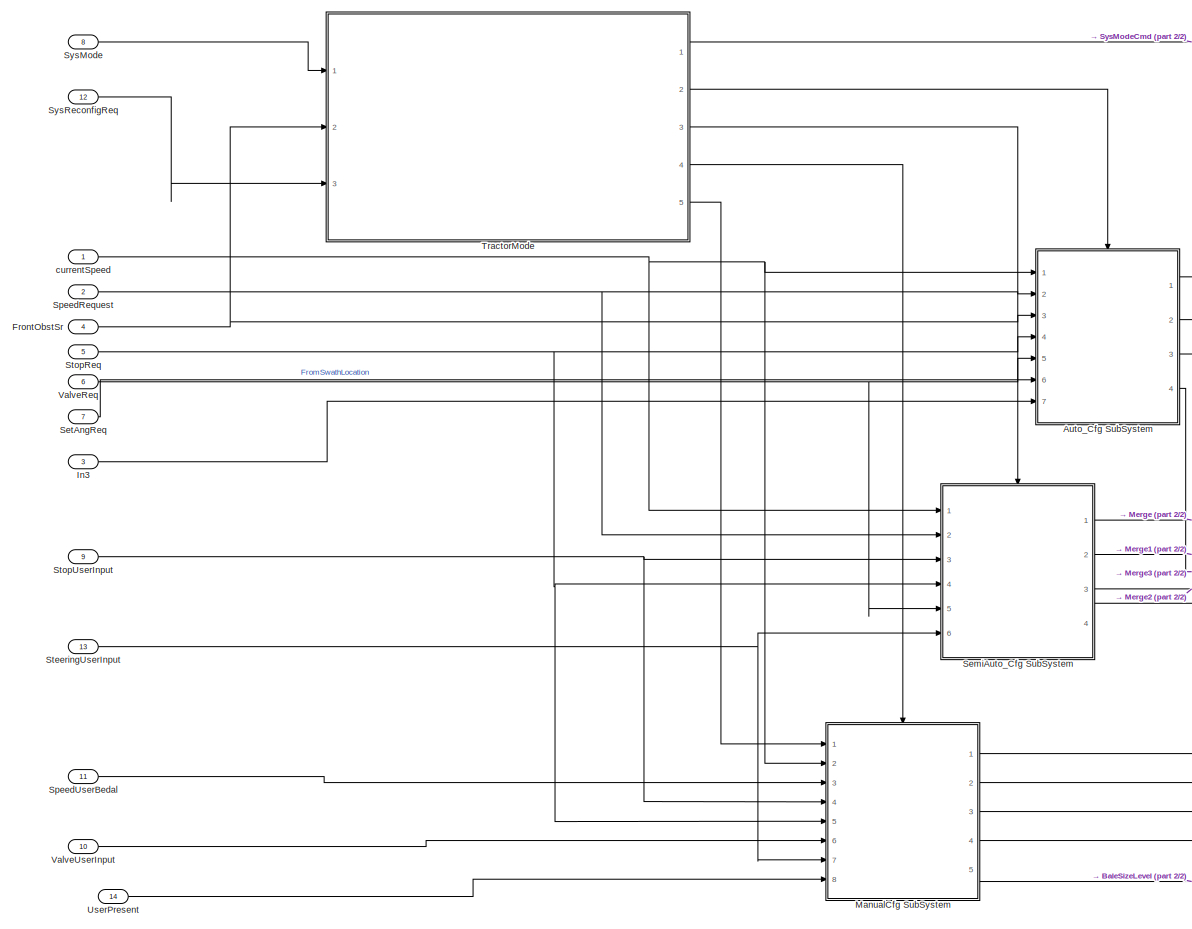
[diagram: Tractor - part 1/2, center side, full height]
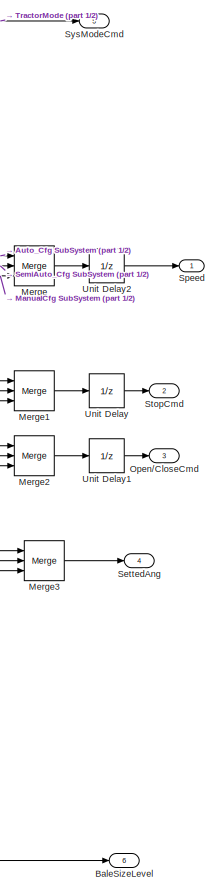
[diagram: Tractor - part 2/2, right side, full height]
BLOCK [SubSystem] Tractor
  Ports = [14, 6]
  RequestExecContextInheritance = off
  Variant = off
BLOCK [SubSystem] Tractor/Auto_Cfg SubSystem
  Ports = [7, 4, 1]
  RequestExecContextInheritance = off
  Variant = off
BLOCK [EnablePort] Tractor/Auto_Cfg SubSystem/Enable
  Ports = []
BLOCK [Inport] Tractor/Auto_Cfg SubSystem/FObstDist
  IconDisplay = Port number
  Port = 7
BLOCK [Inport] Tractor/Auto_Cfg SubSystem/FrontObstSr
  IconDisplay = Port number
  Port = 3
BLOCK [Inport] Tractor/Auto_Cfg SubSystem/In1
  IconDisplay = Port number
BLOCK [Inport] Tractor/Auto_Cfg SubSystem/SetAngReq
  IconDisplay = Port number
  Port = 6
BLOCK [Outport] Tractor/Auto_Cfg SubSystem/SettedAng
  IconDisplay = Port number
  Port = 4
BLOCK [Outport] Tractor/Auto_Cfg SubSystem/Speed
  IconDisplay = Port number
BLOCK [SubSystem] Tractor/Auto_Cfg SubSystem/SpeedController
  Ports = [5, 2]
  RequestExecContextInheritance = off
  Variant = off
BLOCK [SubSystem] Tractor/Auto_Cfg SubSystem/SpeedController/Chart
  ErrorFcn = Stateflow.Translate.translate
  PermitHierarchicalResolution = ExplicitOnly
  Ports = [5, 1]
  RequestExecContextInheritance = off
  SFBlockType = Chart
  TreatAsAtomicUnit = on
  Variant = off
BLOCK [Demux] Tractor/Auto_Cfg SubSystem/SpeedController/Chart/ Demux 
  Outputs = 1
  Ports = [1, 1]
BLOCK [S-Function] Tractor/Auto_Cfg SubSystem/SpeedController/Chart/ SFunction 
  EnableBusSupport = on
  FunctionName = sf_sfun
  PortCounts = [5 2]
  Ports = [5, 2]
  SFcnIsStateOwnerBlock = off
  SFunctionDeploymentMode = off
  Tag = Stateflow S-Function TIM 9
BLOCK [Terminator] Tractor/Auto_Cfg SubSystem/SpeedController/Chart/ Terminator 
BLOCK [Inport] Tractor/Auto_Cfg SubSystem/SpeedController/Chart/BaleSize
  IconDisplay = Port number
  Port = 3
BLOCK [Inport] Tractor/Auto_Cfg SubSystem/SpeedController/Chart/CSpeed
  IconDisplay = Port number
BLOCK [Inport] Tractor/Auto_Cfg SubSystem/SpeedController/Chart/FObstSr
  IconDisplay = Port number
  Port = 4
BLOCK [Inport] Tractor/Auto_Cfg SubSystem/SpeedController/Chart/ObstDist
  IconDisplay = Port number
  Port = 5
BLOCK [Outport] Tractor/Auto_Cfg SubSystem/SpeedController/Chart/Speed
  IconDisplay = Port number
BLOCK [Inport] Tractor/Auto_Cfg SubSystem/SpeedController/Chart/TSpeed
  IconDisplay = Port number
  Port = 2
BLOCK [Constant] Tractor/Auto_Cfg SubSystem/SpeedController/Constant
  Value = 0
BLOCK [Constant] Tractor/Auto_Cfg SubSystem/SpeedController/Constant1
BLOCK [Inport] Tractor/Auto_Cfg SubSystem/SpeedController/In1
  IconDisplay = Port number
BLOCK [Inport] Tractor/Auto_Cfg SubSystem/SpeedController/In2
  IconDisplay = Port number
  Port = 2
BLOCK [Inport] Tractor/Auto_Cfg SubSystem/SpeedController/In3
  IconDisplay = Port number
  Port = 3
BLOCK [Inport] Tractor/Auto_Cfg SubSystem/SpeedController/In4
  IconDisplay = Port number
  Port = 4
BLOCK [Inport] Tractor/Auto_Cfg SubSystem/SpeedController/In5
  IconDisplay = Port number
  Port = 5
BLOCK [Outport] Tractor/Auto_Cfg SubSystem/SpeedController/Out1
  IconDisplay = Port number
BLOCK [Outport] Tractor/Auto_Cfg SubSystem/SpeedController/Out2
  IconDisplay = Port number
  Port = 2
BLOCK [Scope] Tractor/Auto_Cfg SubSystem/SpeedController/Scope1
  NumInputPorts = 1
  Ports = [1]
  ScopeSpecificationString = Simulink.scopes.TimeScopeBlockCfg('CurrentConfiguration', extmgr.ConfigurationSet(extmgr.Configuration('Core','General UI',true),extmgr.Configuration('Core','Source UI',true),extmgr.Configuration('Sources','WiredSimulink',true,'DataLoggingVariableName','ScopeData2'),extmgr.Configuration('Visuals','Time Domain',true,'SerializedDisplays',{struct('MinYLimReal','-2.1988','MaxYLimReal','19.7892','YLabe...<+1395ch>
BLOCK [Switch] Tractor/Auto_Cfg SubSystem/SpeedController/Switch2
  Criteria = u2 ~= 0
  InputSameDT = off
  SaturateOnIntegerOverflow = off
  Threshold = 2
BLOCK [SubSystem] Tractor/Auto_Cfg SubSystem/SpeedController/setSpeed
  Commented = on
  ErrorFcn = Stateflow.Translate.translate
  PermitHierarchicalResolution = ExplicitOnly
  Ports = [4, 1]
  RequestExecContextInheritance = off
  SFBlockType = MATLAB Function
  TreatAsAtomicUnit = on
  Variant = off
BLOCK [Demux] Tractor/Auto_Cfg SubSystem/SpeedController/setSpeed/ Demux 
  Outputs = 1
  Ports = [1, 1]
BLOCK [S-Function] Tractor/Auto_Cfg SubSystem/SpeedController/setSpeed/ SFunction 
  EnableBusSupport = on
  FunctionName = sf_sfun
  PortCounts = [4 2]
  Ports = [4, 2]
  SFcnIsStateOwnerBlock = off
  SFunctionDeploymentMode = off
  Tag = Stateflow S-Function TIM 1
BLOCK [Terminator] Tractor/Auto_Cfg SubSystem/SpeedController/setSpeed/ Terminator 
BLOCK [Inport] Tractor/Auto_Cfg SubSystem/SpeedController/setSpeed/BaleSize
  IconDisplay = Port number
  Port = 3
BLOCK [Inport] Tractor/Auto_Cfg SubSystem/SpeedController/setSpeed/Cspeed
  IconDisplay = Port number
BLOCK [Inport] Tractor/Auto_Cfg SubSystem/SpeedController/setSpeed/FrontObstSr
  IconDisplay = Port number
  Port = 4
BLOCK [Inport] Tractor/Auto_Cfg SubSystem/SpeedController/setSpeed/Tspeed
  IconDisplay = Port number
  Port = 2
BLOCK [Outport] Tractor/Auto_Cfg SubSystem/SpeedController/setSpeed/y
  IconDisplay = Port number
BLOCK [Inport] Tractor/Auto_Cfg SubSystem/SpeedReq
  IconDisplay = Port number
  Port = 2
BLOCK [Outport] Tractor/Auto_Cfg SubSystem/StopCmd
  IconDisplay = Port number
  Port = 2
BLOCK [Inport] Tractor/Auto_Cfg SubSystem/StopReqBaleSize
  IconDisplay = Port number
  Port = 4
BLOCK [Outport] Tractor/Auto_Cfg SubSystem/ValveCmd
  IconDisplay = Port number
  Port = 3
BLOCK [SubSystem] Tractor/Auto_Cfg SubSystem/ValveController
  Ports = [1, 1]
  RequestExecContextInheritance = off
  Variant = off
BLOCK [Constant] Tractor/Auto_Cfg SubSystem/ValveController/Constant
BLOCK [Constant] Tractor/Auto_Cfg SubSystem/ValveController/Constant1
  Value = 0
BLOCK [DataTypeConversion] Tractor/Auto_Cfg SubSystem/ValveController/Data Type Conversion
  OutDataTypeStr = boolean
  RndMeth = Floor
  SaturateOnIntegerOverflow = off
BLOCK [Inport] Tractor/Auto_Cfg SubSystem/ValveController/In1
  IconDisplay = Port number
BLOCK [Outport] Tractor/Auto_Cfg SubSystem/ValveController/Out1
  IconDisplay = Port number
BLOCK [Switch] Tractor/Auto_Cfg SubSystem/ValveController/Switch
  Criteria = u2 ~= 0
  InputSameDT = off
  SaturateOnIntegerOverflow = off
BLOCK [Inport] Tractor/Auto_Cfg SubSystem/ValveReq
  IconDisplay = Port number
  Port = 5
BLOCK [SubSystem] Tractor/Auto_Cfg SubSystem/setStAngle
  ErrorFcn = Stateflow.Translate.translate
  PermitHierarchicalResolution = ExplicitOnly
  Ports = [1, 1]
  RequestExecContextInheritance = off
  SFBlockType = MATLAB Function
  TreatAsAtomicUnit = on
  Variant = off
BLOCK [Demux] Tractor/Auto_Cfg SubSystem/setStAngle/ Demux 
  Outputs = 1
  Ports = [1, 1]
BLOCK [S-Function] Tractor/Auto_Cfg SubSystem/setStAngle/ SFunction 
  EnableBusSupport = on
  FunctionName = sf_sfun
  PortCounts = [1 2]
  Ports = [1, 2]
  SFcnIsStateOwnerBlock = off
  SFunctionDeploymentMode = off
  Tag = Stateflow S-Function TIM 24
BLOCK [Terminator] Tractor/Auto_Cfg SubSystem/setStAngle/ Terminator 
BLOCK [Outport] Tractor/Auto_Cfg SubSystem/setStAngle/CAngle
  IconDisplay = Port number
BLOCK [Inport] Tractor/Auto_Cfg SubSystem/setStAngle/TAngle
  IconDisplay = Port number
BLOCK [Outport] Tractor/BaleSizeLevel
  IconDisplay = Port number
  Port = 6
BLOCK [Inport] Tractor/FrontObstSr
  IconDisplay = Port number
  Port = 4
BLOCK [Inport] Tractor/In3
  IconDisplay = Port number
  Port = 3
BLOCK [SubSystem] Tractor/ManualCfg SubSystem
  Ports = [8, 5, 1]
  RequestExecContextInheritance = off
  Variant = off
BLOCK [Outport] Tractor/ManualCfg SubSystem/BaleSizeLvl
  IconDisplay = Port number
  Port = 5
BLOCK [EnablePort] Tractor/ManualCfg SubSystem/Enable
  Ports = []
BLOCK [Inport] Tractor/ManualCfg SubSystem/In1
  IconDisplay = Port number
  Port = 2
BLOCK [Inport] Tractor/ManualCfg SubSystem/In4
  IconDisplay = Port number
  Port = 5
BLOCK [Inport] Tractor/ManualCfg SubSystem/In8
  IconDisplay = Port number
  Port = 8
BLOCK [Outport] Tractor/ManualCfg SubSystem/Speed
  IconDisplay = Port number
BLOCK [SubSystem] Tractor/ManualCfg SubSystem/SpeedController
  Ports = [6, 3]
  RequestExecContextInheritance = off
  Variant = off
BLOCK [Constant] Tractor/ManualCfg SubSystem/SpeedController/Constant
  Value = 0
BLOCK [Constant] Tractor/ManualCfg SubSystem/SpeedController/Constant1
BLOCK [Inport] Tractor/ManualCfg SubSystem/SpeedController/In1
  IconDisplay = Port number
BLOCK [Inport] Tractor/ManualCfg SubSystem/SpeedController/In2
  IconDisplay = Port number
  Port = 2
BLOCK [Inport] Tractor/ManualCfg SubSystem/SpeedController/In4
  IconDisplay = Port number
  Port = 4
BLOCK [Inport] Tractor/ManualCfg SubSystem/SpeedController/In5
  IconDisplay = Port number
  Port = 5
BLOCK [Inport] Tractor/ManualCfg SubSystem/SpeedController/In6
  IconDisplay = Port number
  Port = 6
BLOCK [Outport] Tractor/ManualCfg SubSystem/SpeedController/Out1
  IconDisplay = Port number
BLOCK [Outport] Tractor/ManualCfg SubSystem/SpeedController/Out2
  IconDisplay = Port number
  Port = 2
BLOCK [Outport] Tractor/ManualCfg SubSystem/SpeedController/Out3
  IconDisplay = Port number
  Port = 3
BLOCK [Inport] Tractor/ManualCfg SubSystem/SpeedController/Stop
  IconDisplay = Port number
  Port = 3
BLOCK [Switch] Tractor/ManualCfg SubSystem/SpeedController/Switch2
  Criteria = u2 ~= 0
  InputSameDT = off
  SaturateOnIntegerOverflow = off
  Threshold = 2
BLOCK [SubSystem] Tractor/ManualCfg SubSystem/SpeedController/setSpeed
  ErrorFcn = Stateflow.Translate.translate
  PermitHierarchicalResolution = ExplicitOnly
  Ports = [5, 1]
  RequestExecContextInheritance = off
  SFBlockType = MATLAB Function
  TreatAsAtomicUnit = on
  Variant = off
BLOCK [Demux] Tractor/ManualCfg SubSystem/SpeedController/setSpeed/ Demux 
  Outputs = 1
  Ports = [1, 1]
BLOCK [S-Function] Tractor/ManualCfg SubSystem/SpeedController/setSpeed/ SFunction 
  EnableBusSupport = on
  FunctionName = sf_sfun
  PortCounts = [5 2]
  Ports = [5, 2]
  SFcnIsStateOwnerBlock = off
  SFunctionDeploymentMode = off
  Tag = Stateflow S-Function TIM 14
BLOCK [Terminator] Tractor/ManualCfg SubSystem/SpeedController/setSpeed/ Terminator 
BLOCK [Inport] Tractor/ManualCfg SubSystem/SpeedController/setSpeed/Cspeed
  IconDisplay = Port number
BLOCK [Inport] Tractor/ManualCfg SubSystem/SpeedController/setSpeed/SpBedalAngl
  IconDisplay = Port number
  Port = 2
BLOCK [Inport] Tractor/ManualCfg SubSystem/SpeedController/setSpeed/StopReq
  IconDisplay = Port number
  Port = 3
BLOCK [Inport] Tractor/ManualCfg SubSystem/SpeedController/setSpeed/Urgent
  IconDisplay = Port number
  Port = 4
BLOCK [Inport] Tractor/ManualCfg SubSystem/SpeedController/setSpeed/UserPresent
  IconDisplay = Port number
  Port = 5
BLOCK [Outport] Tractor/ManualCfg SubSystem/SpeedController/setSpeed/y
  IconDisplay = Port number
BLOCK [Inport] Tractor/ManualCfg SubSystem/SpeedUserReq
  IconDisplay = Port number
  Port = 3
BLOCK [Outport] Tractor/ManualCfg SubSystem/SteeringAngle
  IconDisplay = Port number
  Port = 4
BLOCK [Inport] Tractor/ManualCfg SubSystem/SteeringUserInput
  IconDisplay = Port number
  Port = 7
BLOCK [Outport] Tractor/ManualCfg SubSystem/StopCMD
  IconDisplay = Port number
  Port = 2
BLOCK [Inport] Tractor/ManualCfg SubSystem/StopSpeed emergency
  IconDisplay = Port number
BLOCK [Inport] Tractor/ManualCfg SubSystem/StopUserInput
  IconDisplay = Port number
  Port = 4
BLOCK [Outport] Tractor/ManualCfg SubSystem/ValveCMD
  IconDisplay = Port number
  Port = 3
BLOCK [SubSystem] Tractor/ManualCfg SubSystem/ValveController
  Ports = [1, 1]
  RequestExecContextInheritance = off
  Variant = off
BLOCK [Constant] Tractor/ManualCfg SubSystem/ValveController/Constant
BLOCK [Constant] Tractor/ManualCfg SubSystem/ValveController/Constant1
  Value = 0
BLOCK [DataTypeConversion] Tractor/ManualCfg SubSystem/ValveController/Data Type Conversion
  OutDataTypeStr = boolean
  RndMeth = Floor
  SaturateOnIntegerOverflow = off
BLOCK [Inport] Tractor/ManualCfg SubSystem/ValveController/In1
  IconDisplay = Port number
BLOCK [Outport] Tractor/ManualCfg SubSystem/ValveController/Out1
  IconDisplay = Port number
BLOCK [Switch] Tractor/ManualCfg SubSystem/ValveController/Switch
  Criteria = u2 ~= 0
  InputSameDT = off
  SaturateOnIntegerOverflow = off
BLOCK [Inport] Tractor/ManualCfg SubSystem/ValveUserInput
  IconDisplay = Port number
  Port = 6
BLOCK [SubSystem] Tractor/ManualCfg SubSystem/setStAngle
  ErrorFcn = Stateflow.Translate.translate
  PermitHierarchicalResolution = ExplicitOnly
  Ports = [1, 1]
  RequestExecContextInheritance = off
  SFBlockType = MATLAB Function
  TreatAsAtomicUnit = on
  Variant = off
BLOCK [Demux] Tractor/ManualCfg SubSystem/setStAngle/ Demux 
  Outputs = 1
  Ports = [1, 1]
BLOCK [S-Function] Tractor/ManualCfg SubSystem/setStAngle/ SFunction 
  EnableBusSupport = on
  FunctionName = sf_sfun
  PortCounts = [1 2]
  Ports = [1, 2]
  SFcnIsStateOwnerBlock = off
  SFunctionDeploymentMode = off
  Tag = Stateflow S-Function TIM 23
BLOCK [Terminator] Tractor/ManualCfg SubSystem/setStAngle/ Terminator 
BLOCK [Outport] Tractor/ManualCfg SubSystem/setStAngle/CAngle
  IconDisplay = Port number
BLOCK [Inport] Tractor/ManualCfg SubSystem/setStAngle/TAngle
  IconDisplay = Port number
BLOCK [Merge] Tractor/Merge
  Inputs = 3
  Ports = [3, 1]
BLOCK [Merge] Tractor/Merge1
  Inputs = 3
  Ports = [3, 1]
BLOCK [Merge] Tractor/Merge2
  Inputs = 3
  Ports = [3, 1]
BLOCK [Merge] Tractor/Merge3
  Inputs = 3
  Ports = [3, 1]
BLOCK [Outport] Tractor/Open//CloseCmd
  IconDisplay = Port number
  Port = 3
BLOCK [SubSystem] Tractor/SemiAuto_Cfg SubSystem
  Ports = [6, 4, 1]
  RequestExecContextInheritance = off
  Variant = off
BLOCK [Display] Tractor/SemiAuto_Cfg SubSystem/Display
  Decimation = 1
  Ports = [1]
BLOCK [EnablePort] Tractor/SemiAuto_Cfg SubSystem/Enable
  Ports = []
BLOCK [Inport] Tractor/SemiAuto_Cfg SubSystem/FrontObstSr
  IconDisplay = Port number
  Port = 3
BLOCK [Inport] Tractor/SemiAuto_Cfg SubSystem/In1
  IconDisplay = Port number
BLOCK [Outport] Tractor/SemiAuto_Cfg SubSystem/SettedAng
  IconDisplay = Port number
  Port = 4
BLOCK [Outport] Tractor/SemiAuto_Cfg SubSystem/Speed
  IconDisplay = Port number
BLOCK [SubSystem] Tractor/SemiAuto_Cfg SubSystem/SpeedController
  Ports = [4, 2]
  RequestExecContextInheritance = off
  Variant = off
BLOCK [Constant] Tractor/SemiAuto_Cfg SubSystem/SpeedController/Constant
  Value = 0
BLOCK [Constant] Tractor/SemiAuto_Cfg SubSystem/SpeedController/Constant1
BLOCK [Inport] Tractor/SemiAuto_Cfg SubSystem/SpeedController/In1
  IconDisplay = Port number
BLOCK [Inport] Tractor/SemiAuto_Cfg SubSystem/SpeedController/In2
  IconDisplay = Port number
  Port = 2
BLOCK [Inport] Tractor/SemiAuto_Cfg SubSystem/SpeedController/In3
  IconDisplay = Port number
  Port = 3
BLOCK [Inport] Tractor/SemiAuto_Cfg SubSystem/SpeedController/In4
  IconDisplay = Port number
  Port = 4
BLOCK [Outport] Tractor/SemiAuto_Cfg SubSystem/SpeedController/Out1
  IconDisplay = Port number
BLOCK [Outport] Tractor/SemiAuto_Cfg SubSystem/SpeedController/Out2
  IconDisplay = Port number
  Port = 2
BLOCK [Switch] Tractor/SemiAuto_Cfg SubSystem/SpeedController/Switch2
  Criteria = u2 ~= 0
  InputSameDT = off
  SaturateOnIntegerOverflow = off
  Threshold = 2
BLOCK [SubSystem] Tractor/SemiAuto_Cfg SubSystem/SpeedController/setSpeed
  ErrorFcn = Stateflow.Translate.translate
  PermitHierarchicalResolution = ExplicitOnly
  Ports = [4, 1]
  RequestExecContextInheritance = off
  SFBlockType = MATLAB Function
  TreatAsAtomicUnit = on
  Variant = off
BLOCK [Demux] Tractor/SemiAuto_Cfg SubSystem/SpeedController/setSpeed/ Demux 
  Outputs = 1
  Ports = [1, 1]
BLOCK [S-Function] Tractor/SemiAuto_Cfg SubSystem/SpeedController/setSpeed/ SFunction 
  EnableBusSupport = on
  FunctionName = sf_sfun
  PortCounts = [4 2]
  Ports = [4, 2]
  SFcnIsStateOwnerBlock = off
  SFunctionDeploymentMode = off
  Tag = Stateflow S-Function TIM 13
BLOCK [Terminator] Tractor/SemiAuto_Cfg SubSystem/SpeedController/setSpeed/ Terminator 
BLOCK [Inport] Tractor/SemiAuto_Cfg SubSystem/SpeedController/setSpeed/BaleSize
  IconDisplay = Port number
  Port = 3
BLOCK [Inport] Tractor/SemiAuto_Cfg SubSystem/SpeedController/setSpeed/Cspeed
  IconDisplay = Port number
BLOCK [Inport] Tractor/SemiAuto_Cfg SubSystem/SpeedController/setSpeed/FrontObstSr
  IconDisplay = Port number
  Port = 4
BLOCK [Inport] Tractor/SemiAuto_Cfg SubSystem/SpeedController/setSpeed/Tspeed
  IconDisplay = Port number
  Port = 2
BLOCK [Outport] Tractor/SemiAuto_Cfg SubSystem/SpeedController/setSpeed/y
  IconDisplay = Port number
BLOCK [Inport] Tractor/SemiAuto_Cfg SubSystem/SpeedReq
  IconDisplay = Port number
  Port = 2
BLOCK [Inport] Tractor/SemiAuto_Cfg SubSystem/SteeringUserInput
  IconDisplay = Port number
  Port = 6
BLOCK [Outport] Tractor/SemiAuto_Cfg SubSystem/StopCMD
  IconDisplay = Port number
  Port = 2
BLOCK [Inport] Tractor/SemiAuto_Cfg SubSystem/StopReqBaleSize
  IconDisplay = Port number
  Port = 4
BLOCK [Outport] Tractor/SemiAuto_Cfg SubSystem/ValveCMD
  IconDisplay = Port number
  Port = 3
BLOCK [SubSystem] Tractor/SemiAuto_Cfg SubSystem/ValveController
  Ports = [1, 1]
  RequestExecContextInheritance = off
  Variant = off
BLOCK [Constant] Tractor/SemiAuto_Cfg SubSystem/ValveController/Constant
BLOCK [Constant] Tractor/SemiAuto_Cfg SubSystem/ValveController/Constant1
  Value = 0
BLOCK [DataTypeConversion] Tractor/SemiAuto_Cfg SubSystem/ValveController/Data Type Conversion
  OutDataTypeStr = boolean
  RndMeth = Floor
  SaturateOnIntegerOverflow = off
BLOCK [Inport] Tractor/SemiAuto_Cfg SubSystem/ValveController/In1
  IconDisplay = Port number
BLOCK [Outport] Tractor/SemiAuto_Cfg SubSystem/ValveController/Out1
  IconDisplay = Port number
BLOCK [Switch] Tractor/SemiAuto_Cfg SubSystem/ValveController/Switch
  Criteria = u2 ~= 0
  InputSameDT = off
  SaturateOnIntegerOverflow = off
BLOCK [Inport] Tractor/SemiAuto_Cfg SubSystem/ValveReq
  IconDisplay = Port number
  Port = 5
BLOCK [SubSystem] Tractor/SemiAuto_Cfg SubSystem/setStAngle
  ErrorFcn = Stateflow.Translate.translate
  PermitHierarchicalResolution = ExplicitOnly
  Ports = [1, 1]
  RequestExecContextInheritance = off
  SFBlockType = MATLAB Function
  TreatAsAtomicUnit = on
  Variant = off
BLOCK [Demux] Tractor/SemiAuto_Cfg SubSystem/setStAngle/ Demux 
  Outputs = 1
  Ports = [1, 1]
BLOCK [S-Function] Tractor/SemiAuto_Cfg SubSystem/setStAngle/ SFunction 
  EnableBusSupport = on
  FunctionName = sf_sfun
  PortCounts = [1 2]
  Ports = [1, 2]
  SFcnIsStateOwnerBlock = off
  SFunctionDeploymentMode = off
  Tag = Stateflow S-Function TIM 25
BLOCK [Terminator] Tractor/SemiAuto_Cfg SubSystem/setStAngle/ Terminator 
BLOCK [Outport] Tractor/SemiAuto_Cfg SubSystem/setStAngle/CAngle
  IconDisplay = Port number
BLOCK [Inport] Tractor/SemiAuto_Cfg SubSystem/setStAngle/TAngle
  IconDisplay = Port number
BLOCK [Inport] Tractor/SetAngReq
  IconDisplay = Port number
  Port = 7
BLOCK [Outport] Tractor/SettedAng
  IconDisplay = Port number
  Port = 4
BLOCK [Outport] Tractor/Speed
  IconDisplay = Port number
BLOCK [Inport] Tractor/SpeedRequest
  IconDisplay = Port number
  Port = 2
BLOCK [Inport] Tractor/SpeedUserBedal
  IconDisplay = Port number
  Port = 11
BLOCK [Inport] Tractor/SteeringUserInput
  IconDisplay = Port number
  Port = 13
BLOCK [Outport] Tractor/StopCmd
  IconDisplay = Port number
  Port = 2
BLOCK [Inport] Tractor/StopReq
  IconDisplay = Port number
  Port = 5
BLOCK [Inport] Tractor/StopUserInput
  IconDisplay = Port number
  Port = 9
BLOCK [Inport] Tractor/SysMode
  IconDisplay = Port number
  Port = 8
BLOCK [Outport] Tractor/SysModeCmd 
  IconDisplay = Port number
  Port = 5
BLOCK [Inport] Tractor/SysReconfigReq 
  IconDisplay = Port number
  Port = 12
BLOCK [SubSystem] Tractor/TractorMode
  ErrorFcn = Stateflow.Translate.translate
  PermitHierarchicalResolution = ExplicitOnly
  Ports = [3, 5]
  RequestExecContextInheritance = off
  SFBlockType = Chart
  TreatAsAtomicUnit = on
  Variant = off
BLOCK [Demux] Tractor/TractorMode/ Demux 
  Outputs = 1
  Ports = [1, 1]
BLOCK [S-Function] Tractor/TractorMode/ SFunction 
  EnableBusSupport = on
  FunctionName = sf_sfun
  PortCounts = [3 6]
  Ports = [3, 6]
  SFcnIsStateOwnerBlock = off
  SFunctionDeploymentMode = off
  Tag = Stateflow S-Function TIM 8
BLOCK [Terminator] Tractor/TractorMode/ Terminator 
BLOCK [Outport] Tractor/TractorMode/AutoCfg
  IconDisplay = Port number
  Port = 2
BLOCK [Inport] Tractor/TractorMode/Fobst
  IconDisplay = Port number
  Port = 2
BLOCK [Outport] Tractor/TractorMode/ManualCfg
  IconDisplay = Port number
  Port = 4
BLOCK [Inport] Tractor/TractorMode/ModeInput
  IconDisplay = Port number
BLOCK [Outport] Tractor/TractorMode/SemiAutoCfg
  IconDisplay = Port number
  Port = 3
BLOCK [Outport] Tractor/TractorMode/SysModeOut
  IconDisplay = Port number
BLOCK [Inport] Tractor/TractorMode/SysReconfigReq
  IconDisplay = Port number
  Port = 3
BLOCK [Outport] Tractor/TractorMode/UrgentSpeed
  IconDisplay = Port number
  Port = 5
BLOCK [UnitDelay] Tractor/Unit Delay
  InputProcessing = Elements as channels (sample based)
  SampleTime = -1
BLOCK [UnitDelay] Tractor/Unit Delay1
  InputProcessing = Elements as channels (sample based)
  SampleTime = -1
BLOCK [UnitDelay] Tractor/Unit Delay2
  InputProcessing = Elements as channels (sample based)
  SampleTime = -1
BLOCK [Inport] Tractor/UserPresent
  IconDisplay = Port number
  Port = 14
BLOCK [Inport] Tractor/ValveReq
  IconDisplay = Port number
  Port = 6
BLOCK [Inport] Tractor/ValveUserInput
  IconDisplay = Port number
  Port = 10
BLOCK [Inport] Tractor/currentSpeed
  IconDisplay = Port number
BLOCK [Constant] User Present
BLOCK [Constant] ValveUserCMD
  Value = 0
BLOCK [SubSystem] frontObstSr
  DialogController = hmiCreateDDGDialog
  IsWebBlock = on
  MaskHideContents = on
  Ports = []
  RequestExecContextInheritance = off
  Variant = off
ANNOTATION (root): User Input Board
ANNOTATION (root): Subsystem
LINE Add1:1 -> Baler:4
LINE Add2:1 -> Baler:7
LINE Add:1 -> Tractor:4
LINE Bale Pass Sr:1 -> Baler:10
LINE Bale Size Sr:1 -> Baler:2
LINE Baler/AutoCfg_1 SubSystem/CalcTargetAngel:1 -> Baler/AutoCfg_1 SubSystem/Out6:1
LINE Baler/AutoCfg_1 SubSystem/CalcTargetSpeed/MATLAB Function:1 -> Baler/AutoCfg_1 SubSystem/CalcTargetSpeed/Out2:1
LINE Baler/AutoCfg_1 SubSystem/CalcTargetSpeed/SwathVolFlowaRate:1 -> Baler/AutoCfg_1 SubSystem/CalcTargetSpeed/MATLAB Function:1
LINE Baler/AutoCfg_1 SubSystem/CalcTargetSpeed:1 -> Baler/AutoCfg_1 SubSystem/Out1:1
LINE Baler/AutoCfg_1 SubSystem/Constant:1 -> Baler/AutoCfg_1 SubSystem/Switch:3
LINE Baler/AutoCfg_1 SubSystem/In1:1 -> Baler/AutoCfg_1 SubSystem/CalcTargetSpeed:1
NET Baler/AutoCfg_1 SubSystem/In2:1 -> Baler/AutoCfg_1 SubSystem/RearDoorControl:1, Baler/AutoCfg_1 SubSystem/Switch:1, Baler/AutoCfg_1 SubSystem/Switch:2
NET Baler/AutoCfg_1 SubSystem/In3:1 -> Baler/AutoCfg_1 SubSystem/RearDoorControl:2, Baler/AutoCfg_1 SubSystem/stop command:1
LINE Baler/AutoCfg_1 SubSystem/In4:1 -> Baler/AutoCfg_1 SubSystem/RearDoorControl:3
LINE Baler/AutoCfg_1 SubSystem/In5:1 -> Baler/AutoCfg_1 SubSystem/RearDoorControl:4
LINE Baler/AutoCfg_1 SubSystem/In6:1 -> Baler/AutoCfg_1 SubSystem/RearDoorControl:5
LINE Baler/AutoCfg_1 SubSystem/In7:1 -> Baler/AutoCfg_1 SubSystem/CalcTargetAngel:1
LINE Baler/AutoCfg_1 SubSystem/RearDoorControl/CloseRearDoor:1 -> Baler/AutoCfg_1 SubSystem/RearDoorControl/Data Type Conversion1:1
LINE Baler/AutoCfg_1 SubSystem/RearDoorControl/Data Type Conversion1:1 -> Baler/AutoCfg_1 SubSystem/RearDoorControl/Unit Delay:1
LINE Baler/AutoCfg_1 SubSystem/RearDoorControl/DoorCmd:1 -> Baler/AutoCfg_1 SubSystem/RearDoorControl/Out2:1
LINE Baler/AutoCfg_1 SubSystem/RearDoorControl/In1:1 -> Baler/AutoCfg_1 SubSystem/RearDoorControl/OpenRearDoorFunction:2
LINE Baler/AutoCfg_1 SubSystem/RearDoorControl/In2:1 -> Baler/AutoCfg_1 SubSystem/RearDoorControl/OpenRearDoorFunction:1
LINE Baler/AutoCfg_1 SubSystem/RearDoorControl/In3:1 -> Baler/AutoCfg_1 SubSystem/RearDoorControl/OpenRearDoorFunction:3
LINE Baler/AutoCfg_1 SubSystem/RearDoorControl/In4:1 -> Baler/AutoCfg_1 SubSystem/RearDoorControl/CloseRearDoor:2
LINE Baler/AutoCfg_1 SubSystem/RearDoorControl/OpenRearDoorFunction:1 -> Baler/AutoCfg_1 SubSystem/RearDoorControl/CloseRearDoor:1
LINE Baler/AutoCfg_1 SubSystem/RearDoorControl/Unit Delay:1 -> Baler/AutoCfg_1 SubSystem/RearDoorControl/Out1:1
LINE Baler/AutoCfg_1 SubSystem/RearDoorControl:1 -> Baler/AutoCfg_1 SubSystem/Out4:1
LINE Baler/AutoCfg_1 SubSystem/RearDoorControl:2 -> Baler/AutoCfg_1 SubSystem/Out5:1
LINE Baler/AutoCfg_1 SubSystem/Switch:1 -> Baler/AutoCfg_1 SubSystem/Out2:1
LINE Baler/AutoCfg_1 SubSystem/stop command:1 -> Baler/AutoCfg_1 SubSystem/Out3:1
LINE Baler/AutoCfg_1 SubSystem:1 -> Baler/Merge:1
LINE Baler/AutoCfg_1 SubSystem:2 -> Baler/Merge1:1
LINE Baler/AutoCfg_1 SubSystem:3 -> Baler/Merge2:1
LINE Baler/AutoCfg_1 SubSystem:4 -> Baler/Merge3:1
LINE Baler/AutoCfg_1 SubSystem:5 -> Baler/Merge4:1
LINE Baler/AutoCfg_1 SubSystem:6 -> Baler/Merge5:1
LINE Baler/AutoCfg_2 Subsystem/CalcTargetAngel:1 -> Baler/AutoCfg_2 Subsystem/Out6:1
LINE Baler/AutoCfg_2 Subsystem/CalcTargetSpeed/MATLAB Function:1 -> Baler/AutoCfg_2 Subsystem/CalcTargetSpeed/Out2:1
LINE Baler/AutoCfg_2 Subsystem/CalcTargetSpeed/SwathVolFlowaRate:1 -> Baler/AutoCfg_2 Subsystem/CalcTargetSpeed/MATLAB Function:1
LINE Baler/AutoCfg_2 Subsystem/CalcTargetSpeed:1 -> Baler/AutoCfg_2 Subsystem/Out1:1
LINE Baler/AutoCfg_2 Subsystem/Constant:1 -> Baler/AutoCfg_2 Subsystem/Switch:3
LINE Baler/AutoCfg_2 Subsystem/In1:1 -> Baler/AutoCfg_2 Subsystem/CalcTargetSpeed:1
NET Baler/AutoCfg_2 Subsystem/In2:1 -> Baler/AutoCfg_2 Subsystem/RearDoorControl:1, Baler/AutoCfg_2 Subsystem/Switch:1, Baler/AutoCfg_2 Subsystem/Switch:2
NET Baler/AutoCfg_2 Subsystem/In3:1 -> Baler/AutoCfg_2 Subsystem/RearDoorControl:2, Baler/AutoCfg_2 Subsystem/stop command:1
LINE Baler/AutoCfg_2 Subsystem/In4:1 -> Baler/AutoCfg_2 Subsystem/RearDoorControl:3
LINE Baler/AutoCfg_2 Subsystem/In5:1 -> Baler/AutoCfg_2 Subsystem/RearDoorControl:4
LINE Baler/AutoCfg_2 Subsystem/In6:1 -> Baler/AutoCfg_2 Subsystem/RearDoorControl:5
LINE Baler/AutoCfg_2 Subsystem/In7:1 -> Baler/AutoCfg_2 Subsystem/CalcTargetAngel:1
LINE Baler/AutoCfg_2 Subsystem/RearDoorControl/CloseRearDoor:1 -> Baler/AutoCfg_2 Subsystem/RearDoorControl/Data Type Conversion1:1
LINE Baler/AutoCfg_2 Subsystem/RearDoorControl/Data Type Conversion1:1 -> Baler/AutoCfg_2 Subsystem/RearDoorControl/Unit Delay:1
LINE Baler/AutoCfg_2 Subsystem/RearDoorControl/DoorCmd:1 -> Baler/AutoCfg_2 Subsystem/RearDoorControl/Out2:1
LINE Baler/AutoCfg_2 Subsystem/RearDoorControl/In1:1 -> Baler/AutoCfg_2 Subsystem/RearDoorControl/OpenRearDoorFunction:2
LINE Baler/AutoCfg_2 Subsystem/RearDoorControl/In2:1 -> Baler/AutoCfg_2 Subsystem/RearDoorControl/OpenRearDoorFunction:1
LINE Baler/AutoCfg_2 Subsystem/RearDoorControl/In3:1 -> Baler/AutoCfg_2 Subsystem/RearDoorControl/OpenRearDoorFunction:3
LINE Baler/AutoCfg_2 Subsystem/RearDoorControl/In4:1 -> Baler/AutoCfg_2 Subsystem/RearDoorControl/CloseRearDoor:2
LINE Baler/AutoCfg_2 Subsystem/RearDoorControl/OpenRearDoorFunction:1 -> Baler/AutoCfg_2 Subsystem/RearDoorControl/CloseRearDoor:1
LINE Baler/AutoCfg_2 Subsystem/RearDoorControl/Unit Delay:1 -> Baler/AutoCfg_2 Subsystem/RearDoorControl/Out1:1
LINE Baler/AutoCfg_2 Subsystem/RearDoorControl:1 -> Baler/AutoCfg_2 Subsystem/Out4:1
LINE Baler/AutoCfg_2 Subsystem/RearDoorControl:2 -> Baler/AutoCfg_2 Subsystem/Out5:1
LINE Baler/AutoCfg_2 Subsystem/Switch:1 -> Baler/AutoCfg_2 Subsystem/Out2:1
LINE Baler/AutoCfg_2 Subsystem/stop command:1 -> Baler/AutoCfg_2 Subsystem/Out3:1
LINE Baler/AutoCfg_2 Subsystem:1 -> Baler/Merge:2
LINE Baler/AutoCfg_2 Subsystem:2 -> Baler/Merge1:2
LINE Baler/AutoCfg_2 Subsystem:3 -> Baler/Merge2:2
LINE Baler/AutoCfg_2 Subsystem:4 -> Baler/Merge3:2
LINE Baler/AutoCfg_2 Subsystem:5 -> Baler/Merge4:2
LINE Baler/AutoCfg_2 Subsystem:6 -> Baler/Merge5:2
NET Baler/BaleOutSr:1 -> Baler/AutoCfg_1 SubSystem:5, Baler/AutoCfg_2 Subsystem:5, Baler/SemiAutoCfg Subsystem:5
NET Baler/BaleSizeSr:1 -> Baler/AutoCfg_1 SubSystem:2, Baler/AutoCfg_2 Subsystem:2, Baler/ManualCfg Subsystem:1, Baler/SemiAutoCfg Subsystem:2
LINE Baler/BalerMode1:1 -> Baler/RcfgCMD:1
LINE Baler/BalerMode1:2 -> Baler/BalerCfg:1
LINE Baler/BalerMode1:3 -> Baler/Unit Delay:1
LINE Baler/BalerMode1:4 -> Baler/AutoCfg_1 SubSystem:enable
LINE Baler/BalerMode1:5 -> Baler/AutoCfg_2 Subsystem:enable
LINE Baler/BalerMode1:6 -> Baler/SemiAutoCfg Subsystem:enable
LINE Baler/BalerMode1:7 -> Baler/ManualCfg Subsystem:enable
LINE Baler/ManualCfg Subsystem/BaleSizeSign:1 -> Baler/ManualCfg Subsystem/Out1:1
LINE Baler/ManualCfg Subsystem/Data Type Conversion1:1 -> Baler/ManualCfg Subsystem/Out2:1
LINE Baler/ManualCfg Subsystem/Data Type Conversion2:1 -> Baler/ManualCfg Subsystem/Out3:1
LINE Baler/ManualCfg Subsystem/In2:1 -> Baler/ManualCfg Subsystem/Data Type Conversion1:1
LINE Baler/ManualCfg Subsystem/In3:1 -> Baler/ManualCfg Subsystem/Data Type Conversion2:1
LINE Baler/ManualCfg Subsystem:1 -> Baler/Merge1:4
LINE Baler/ManualCfg Subsystem:2 -> Baler/Merge2:4
LINE Baler/ManualCfg Subsystem:3 -> Baler/Merge4:4
LINE Baler/Merge1:1 -> Baler/Unit Delay2:1
LINE Baler/Merge2:1 -> Baler/StopSign:1
LINE Baler/Merge3:1 -> Baler/Unit Delay3:1
LINE Baler/Merge4:1 -> Baler/DoorSign:1
LINE Baler/Merge5:1 -> Baler/SetAngReq:1
LINE Baler/Merge:1 -> Baler/Unit Delay1:1
LINE Baler/ModeCngCMD:1 -> Baler/BalerMode1:1
NET Baler/RearDoorCmd:1 -> Baler/AutoCfg_1 SubSystem:6, Baler/AutoCfg_2 Subsystem:6, Baler/ManualCfg Subsystem:3, Baler/SemiAutoCfg Subsystem:6
NET Baler/RearObsSr1:1 -> Baler/AutoCfg_1 SubSystem:4, Baler/BalerMode1:2
NET Baler/RearObstSr2:1 -> Baler/AutoCfg_2 Subsystem:4, Baler/BalerMode1:3, Baler/SemiAutoCfg Subsystem:4
LINE Baler/SemiAutoCfg Subsystem/CalcTargetSpeed/MATLAB Function:1 -> Baler/SemiAutoCfg Subsystem/CalcTargetSpeed/Out2:1
LINE Baler/SemiAutoCfg Subsystem/CalcTargetSpeed/SwathVolFlowaRate:1 -> Baler/SemiAutoCfg Subsystem/CalcTargetSpeed/MATLAB Function:1
NET Baler/SemiAutoCfg Subsystem/CalcTargetSpeed:1 -> Baler/SemiAutoCfg Subsystem/Display1:1, Baler/SemiAutoCfg Subsystem/Out1:1
LINE Baler/SemiAutoCfg Subsystem/Constant:1 -> Baler/SemiAutoCfg Subsystem/Switch:3
NET Baler/SemiAutoCfg Subsystem/In1:1 -> Baler/SemiAutoCfg Subsystem/CalcTargetSpeed:1, Baler/SemiAutoCfg Subsystem/Display:1
NET Baler/SemiAutoCfg Subsystem/In2:1 -> Baler/SemiAutoCfg Subsystem/RearDoorControl:1, Baler/SemiAutoCfg Subsystem/Switch:1, Baler/SemiAutoCfg Subsystem/Switch:2
NET Baler/SemiAutoCfg Subsystem/In3:1 -> Baler/SemiAutoCfg Subsystem/RearDoorControl:2, Baler/SemiAutoCfg Subsystem/stop command:1
LINE Baler/SemiAutoCfg Subsystem/In4:1 -> Baler/SemiAutoCfg Subsystem/RearDoorControl:3
LINE Baler/SemiAutoCfg Subsystem/In5:1 -> Baler/SemiAutoCfg Subsystem/RearDoorControl:4
LINE Baler/SemiAutoCfg Subsystem/In6:1 -> Baler/SemiAutoCfg Subsystem/RearDoorControl:5
LINE Baler/SemiAutoCfg Subsystem/RearDoorControl/CloseRearDoor:1 -> Baler/SemiAutoCfg Subsystem/RearDoorControl/Data Type Conversion1:1
LINE Baler/SemiAutoCfg Subsystem/RearDoorControl/Data Type Conversion1:1 -> Baler/SemiAutoCfg Subsystem/RearDoorControl/Unit Delay:1
LINE Baler/SemiAutoCfg Subsystem/RearDoorControl/DoorCmd:1 -> Baler/SemiAutoCfg Subsystem/RearDoorControl/Out2:1
LINE Baler/SemiAutoCfg Subsystem/RearDoorControl/In1:1 -> Baler/SemiAutoCfg Subsystem/RearDoorControl/OpenRearDoorFunction:2
LINE Baler/SemiAutoCfg Subsystem/RearDoorControl/In2:1 -> Baler/SemiAutoCfg Subsystem/RearDoorControl/OpenRearDoorFunction:1
LINE Baler/SemiAutoCfg Subsystem/RearDoorControl/In3:1 -> Baler/SemiAutoCfg Subsystem/RearDoorControl/OpenRearDoorFunction:3
LINE Baler/SemiAutoCfg Subsystem/RearDoorControl/In4:1 -> Baler/SemiAutoCfg Subsystem/RearDoorControl/CloseRearDoor:2
LINE Baler/SemiAutoCfg Subsystem/RearDoorControl/OpenRearDoorFunction:1 -> Baler/SemiAutoCfg Subsystem/RearDoorControl/CloseRearDoor:1
LINE Baler/SemiAutoCfg Subsystem/RearDoorControl/Unit Delay:1 -> Baler/SemiAutoCfg Subsystem/RearDoorControl/Out1:1
LINE Baler/SemiAutoCfg Subsystem/RearDoorControl:1 -> Baler/SemiAutoCfg Subsystem/Out4:1
LINE Baler/SemiAutoCfg Subsystem/RearDoorControl:2 -> Baler/SemiAutoCfg Subsystem/Out5:1
LINE Baler/SemiAutoCfg Subsystem/Switch:1 -> Baler/SemiAutoCfg Subsystem/Out2:1
LINE Baler/SemiAutoCfg Subsystem/stop command:1 -> Baler/SemiAutoCfg Subsystem/Out3:1
LINE Baler/SemiAutoCfg Subsystem:1 -> Baler/Merge:3
LINE Baler/SemiAutoCfg Subsystem:2 -> Baler/Merge1:3
LINE Baler/SemiAutoCfg Subsystem:3 -> Baler/Merge2:3
LINE Baler/SemiAutoCfg Subsystem:4 -> Baler/Merge3:3
LINE Baler/SemiAutoCfg Subsystem:5 -> Baler/Merge4:3
NET Baler/StopComand:1 -> Baler/AutoCfg_1 SubSystem:3, Baler/AutoCfg_2 Subsystem:3, Baler/ManualCfg Subsystem:2, Baler/SemiAutoCfg Subsystem:3
NET Baler/SwathLocation:1 -> Baler/AutoCfg_1 SubSystem:7, Baler/AutoCfg_2 Subsystem:7
NET Baler/SwathVFlowRate:1 -> Baler/AutoCfg_1 SubSystem:1, Baler/AutoCfg_2 Subsystem:1, Baler/SemiAutoCfg Subsystem:1
LINE Baler/Unit Delay1:1 -> Baler/SetSpeedReq:1
LINE Baler/Unit Delay2:1 -> Baler/StopReq :1
LINE Baler/Unit Delay3:1 -> Baler/DoorValveReq:1
LINE Baler/Unit Delay:1 -> Baler/SysReconfigReq:1
LINE Baler:1 -> Tractor:2
LINE Baler:2 -> Tractor:5
LINE Baler:3 -> Display4:1
LINE Baler:4 -> Tractor:6
LINE Baler:5 -> DoorStatus:1
LINE Baler:6 -> Tractor:7
LINE Baler:7 -> SwathScanner:4
LINE Baler:8 -> CFG:1
LINE Baler:9 -> Tractor:12
LINE Constant1:1 -> Add2:1
LINE Constant2:1 -> FrontObstSr:2
LINE Constant:1 -> Add1:1
LINE Front Obstacle:1 -> FrontObstSr:1
LINE FrontObstSr/Data Type Conversion:1 -> FrontObstSr/Out1:1
LINE FrontObstSr/In1:1 -> FrontObstSr/Data Type Conversion:1
LINE FrontObstSr/In2:1 -> FrontObstSr/Out2:1
LINE FrontObstSr:1 -> Add:1
LINE FrontObstSr:2 -> Tractor:3
LINE FrontObstSrFail:1 -> Add:2
LINE Product:1 -> SwathScanner:2
LINE RearSr1:1 -> Add1:2
LINE RearSr2:1 -> Add2:2
LINE SpSr1Fail:1 -> Product:2
NET SpeedSr1 /In1:1 -> SpeedSr1 /Scope:1, SpeedSr1 /Switch:1
NET SpeedSr1 /Signal Builder1:1 -> SpeedSr1 /Switch:2, SpeedSr1 /Switch:3
LINE SpeedSr1 /Switch:1 -> SpeedSr1 /Out1:1
NET SpeedSr1 :1 -> Display:1, Product:1, Scope1:1, Tractor:1
LINE SpeedSr2,3/In1:1 -> SpeedSr2,3/Switch:1
NET SpeedSr2,3/Signal Builder1:1 -> SpeedSr2,3/Switch:2, SpeedSr2,3/Switch:3
LINE SpeedSr2,3/Switch:1 -> SpeedSr2,3/Out1:1
LINE SpeedSr2,3:1 -> SwathScanner:5
LINE SpeedUserInput:1 -> Tractor:11
LINE SteeringUserInput:1 -> Tractor:13
LINE StopUserCMD:1 -> Tractor:9
LINE Swath Area Value:1 -> SwathScanner:1
LINE SwathLocationSr:1 -> SwathScanner:3
LINE SwathScanner/Auto_1_Cfg Subsystem/CalcVolFlowRate 1/CurrentSpeed:1 -> SwathScanner/Auto_1_Cfg Subsystem/CalcVolFlowRate 1/MATLAB Function:1
LINE SwathScanner/Auto_1_Cfg Subsystem/CalcVolFlowRate 1/MATLAB Function:1 -> SwathScanner/Auto_1_Cfg Subsystem/CalcVolFlowRate 1/Out1:1
LINE SwathScanner/Auto_1_Cfg Subsystem/CalcVolFlowRate 1/SwathArea:1 -> SwathScanner/Auto_1_Cfg Subsystem/CalcVolFlowRate 1/MATLAB Function:2
LINE SwathScanner/Auto_1_Cfg Subsystem/CalcVolFlowRate 1:1 -> SwathScanner/Auto_1_Cfg Subsystem/Out1:1
LINE SwathScanner/Auto_1_Cfg Subsystem/In3:1 -> SwathScanner/Auto_1_Cfg Subsystem/Out2:1
LINE SwathScanner/Auto_1_Cfg Subsystem/cArea:1 -> SwathScanner/Auto_1_Cfg Subsystem/CalcVolFlowRate 1:2
LINE SwathScanner/Auto_1_Cfg Subsystem/cSpeed:1 -> SwathScanner/Auto_1_Cfg Subsystem/CalcVolFlowRate 1:1
LINE SwathScanner/Auto_1_Cfg Subsystem:1 -> SwathScanner/Merge:1
LINE SwathScanner/Auto_1_Cfg Subsystem:2 -> SwathScanner/Merge1:1
LINE SwathScanner/Auto_2_Cfg Subsystem/CalcVolFlowRate 1/CurrentSpeed:1 -> SwathScanner/Auto_2_Cfg Subsystem/CalcVolFlowRate 1/MATLAB Function:1
LINE SwathScanner/Auto_2_Cfg Subsystem/CalcVolFlowRate 1/MATLAB Function:1 -> SwathScanner/Auto_2_Cfg Subsystem/CalcVolFlowRate 1/Out1:1
LINE SwathScanner/Auto_2_Cfg Subsystem/CalcVolFlowRate 1/SwathArea:1 -> SwathScanner/Auto_2_Cfg Subsystem/CalcVolFlowRate 1/MATLAB Function:2
LINE SwathScanner/Auto_2_Cfg Subsystem/CalcVolFlowRate 1:1 -> SwathScanner/Auto_2_Cfg Subsystem/Out1:1
LINE SwathScanner/Auto_2_Cfg Subsystem/In3:1 -> SwathScanner/Auto_2_Cfg Subsystem/Out2:1
LINE SwathScanner/Auto_2_Cfg Subsystem/cArea:1 -> SwathScanner/Auto_2_Cfg Subsystem/CalcVolFlowRate 1:2
LINE SwathScanner/Auto_2_Cfg Subsystem/cSpeed:1 -> SwathScanner/Auto_2_Cfg Subsystem/CalcVolFlowRate 1:1
LINE SwathScanner/Auto_2_Cfg Subsystem:1 -> SwathScanner/Merge:2
LINE SwathScanner/Auto_2_Cfg Subsystem:2 -> SwathScanner/Merge1:2
LINE SwathScanner/Chart:1 -> SwathScanner/CfgStatus:1
LINE SwathScanner/Chart:2 -> SwathScanner/Auto_1_Cfg Subsystem:enable
LINE SwathScanner/Chart:3 -> SwathScanner/Auto_2_Cfg Subsystem:enable
LINE SwathScanner/Chart:4 -> SwathScanner/SemiAuto_Cfg Subsystem:enable
LINE SwathScanner/Chart:5 -> SwathScanner/Manual_Cfg Subsystem:enable
LINE SwathScanner/Manual_Cfg Subsystem/CalcVolFlowRate 1/CurrentSpeed:1 -> SwathScanner/Manual_Cfg Subsystem/CalcVolFlowRate 1/MATLAB Function:1
LINE SwathScanner/Manual_Cfg Subsystem/CalcVolFlowRate 1/MATLAB Function:1 -> SwathScanner/Manual_Cfg Subsystem/CalcVolFlowRate 1/Out1:1
LINE SwathScanner/Manual_Cfg Subsystem/CalcVolFlowRate 1/SwathArea:1 -> SwathScanner/Manual_Cfg Subsystem/CalcVolFlowRate 1/MATLAB Function:2
LINE SwathScanner/Manual_Cfg Subsystem/CalcVolFlowRate 1:1 -> SwathScanner/Manual_Cfg Subsystem/Out1:1
LINE SwathScanner/Manual_Cfg Subsystem/cArea:1 -> SwathScanner/Manual_Cfg Subsystem/CalcVolFlowRate 1:2
LINE SwathScanner/Manual_Cfg Subsystem/cSpeed:1 -> SwathScanner/Manual_Cfg Subsystem/CalcVolFlowRate 1:1
LINE SwathScanner/Merge1:1 -> SwathScanner/SwathLocation:1
NET SwathScanner/Merge:1 -> SwathScanner/Display:1, SwathScanner/FlowRate:1
LINE SwathScanner/ReCfgCMD:1 -> SwathScanner/Chart:1
LINE SwathScanner/SemiAuto_Cfg Subsystem/CalcVolFlowRate 1/CurrentSpeed:1 -> SwathScanner/SemiAuto_Cfg Subsystem/CalcVolFlowRate 1/MATLAB Function:1
LINE SwathScanner/SemiAuto_Cfg Subsystem/CalcVolFlowRate 1/MATLAB Function:1 -> SwathScanner/SemiAuto_Cfg Subsystem/CalcVolFlowRate 1/Out1:1
LINE SwathScanner/SemiAuto_Cfg Subsystem/CalcVolFlowRate 1/SwathArea:1 -> SwathScanner/SemiAuto_Cfg Subsystem/CalcVolFlowRate 1/MATLAB Function:2
LINE SwathScanner/SemiAuto_Cfg Subsystem/CalcVolFlowRate 1:1 -> SwathScanner/SemiAuto_Cfg Subsystem/Out1:1
LINE SwathScanner/SemiAuto_Cfg Subsystem/cArea:1 -> SwathScanner/SemiAuto_Cfg Subsystem/CalcVolFlowRate 1:2
LINE SwathScanner/SemiAuto_Cfg Subsystem/cSpeed:1 -> SwathScanner/SemiAuto_Cfg Subsystem/CalcVolFlowRate 1:1
LINE SwathScanner/SemiAuto_Cfg Subsystem:1 -> SwathScanner/Merge:3
LINE SwathScanner/SpeedSr1:1 -> SwathScanner/Unit Delay:1
LINE SwathScanner/SpeedSr2,3:1 -> SwathScanner/Unit Delay1:1
NET SwathScanner/SwathAreaDetector:1 -> SwathScanner/Auto_1_Cfg Subsystem:2, SwathScanner/Auto_2_Cfg Subsystem:2, SwathScanner/Display1:1, SwathScanner/SemiAuto_Cfg Subsystem:2
NET SwathScanner/SwathLocDetector:1 -> SwathScanner/Auto_1_Cfg Subsystem:3, SwathScanner/Auto_2_Cfg Subsystem:3, SwathScanner/Display2:1
NET SwathScanner/Unit Delay1:1 -> SwathScanner/Auto_2_Cfg Subsystem:1, SwathScanner/Display4:1, SwathScanner/SemiAuto_Cfg Subsystem:1
NET SwathScanner/Unit Delay:1 -> SwathScanner/Auto_1_Cfg Subsystem:1, SwathScanner/Chart:2, SwathScanner/Display3:1
LINE SwathScanner:1 -> Baler:5
LINE SwathScanner:2 -> Baler:6
LINE SwathScanner:3 -> Display2:1
LINE SysMode:1 -> Tractor:8
LINE Tractor/Auto_Cfg SubSystem/FObstDist:1 -> Tractor/Auto_Cfg SubSystem/SpeedController:5
LINE Tractor/Auto_Cfg SubSystem/FrontObstSr:1 -> Tractor/Auto_Cfg SubSystem/SpeedController:3
LINE Tractor/Auto_Cfg SubSystem/In1:1 -> Tractor/Auto_Cfg SubSystem/SpeedController:1
LINE Tractor/Auto_Cfg SubSystem/SetAngReq:1 -> Tractor/Auto_Cfg SubSystem/setStAngle:1
NET Tractor/Auto_Cfg SubSystem/SpeedController/Chart:1 -> Tractor/Auto_Cfg SubSystem/SpeedController/Out1:1, Tractor/Auto_Cfg SubSystem/SpeedController/Scope1:1, Tractor/Auto_Cfg SubSystem/SpeedController/Switch2:2
LINE Tractor/Auto_Cfg SubSystem/SpeedController/Constant1:1 -> Tractor/Auto_Cfg SubSystem/SpeedController/Switch2:3
LINE Tractor/Auto_Cfg SubSystem/SpeedController/Constant:1 -> Tractor/Auto_Cfg SubSystem/SpeedController/Switch2:1
NET Tractor/Auto_Cfg SubSystem/SpeedController/In1:1 -> Tractor/Auto_Cfg SubSystem/SpeedController/Chart:1, Tractor/Auto_Cfg SubSystem/SpeedController/setSpeed:1
NET Tractor/Auto_Cfg SubSystem/SpeedController/In2:1 -> Tractor/Auto_Cfg SubSystem/SpeedController/Chart:2, Tractor/Auto_Cfg SubSystem/SpeedController/setSpeed:2
NET Tractor/Auto_Cfg SubSystem/SpeedController/In3:1 -> Tractor/Auto_Cfg SubSystem/SpeedController/Chart:4, Tractor/Auto_Cfg SubSystem/SpeedController/setSpeed:4
NET Tractor/Auto_Cfg SubSystem/SpeedController/In4:1 -> Tractor/Auto_Cfg SubSystem/SpeedController/Chart:3, Tractor/Auto_Cfg SubSystem/SpeedController/setSpeed:3
LINE Tractor/Auto_Cfg SubSystem/SpeedController/In5:1 -> Tractor/Auto_Cfg SubSystem/SpeedController/Chart:5
LINE Tractor/Auto_Cfg SubSystem/SpeedController/Switch2:1 -> Tractor/Auto_Cfg SubSystem/SpeedController/Out2:1
LINE Tractor/Auto_Cfg SubSystem/SpeedController:1 -> Tractor/Auto_Cfg SubSystem/Speed:1
LINE Tractor/Auto_Cfg SubSystem/SpeedController:2 -> Tractor/Auto_Cfg SubSystem/StopCmd:1
LINE Tractor/Auto_Cfg SubSystem/SpeedReq:1 -> Tractor/Auto_Cfg SubSystem/SpeedController:2
LINE Tractor/Auto_Cfg SubSystem/StopReqBaleSize:1 -> Tractor/Auto_Cfg SubSystem/SpeedController:4
LINE Tractor/Auto_Cfg SubSystem/ValveController/Constant1:1 -> Tractor/Auto_Cfg SubSystem/ValveController/Switch:3
LINE Tractor/Auto_Cfg SubSystem/ValveController/Constant:1 -> Tractor/Auto_Cfg SubSystem/ValveController/Switch:1
LINE Tractor/Auto_Cfg SubSystem/ValveController/Data Type Conversion:1 -> Tractor/Auto_Cfg SubSystem/ValveController/Out1:1
LINE Tractor/Auto_Cfg SubSystem/ValveController/In1:1 -> Tractor/Auto_Cfg SubSystem/ValveController/Switch:2
LINE Tractor/Auto_Cfg SubSystem/ValveController/Switch:1 -> Tractor/Auto_Cfg SubSystem/ValveController/Data Type Conversion:1
LINE Tractor/Auto_Cfg SubSystem/ValveController:1 -> Tractor/Auto_Cfg SubSystem/ValveCmd:1
LINE Tractor/Auto_Cfg SubSystem/ValveReq:1 -> Tractor/Auto_Cfg SubSystem/ValveController:1
LINE Tractor/Auto_Cfg SubSystem/setStAngle:1 -> Tractor/Auto_Cfg SubSystem/SettedAng:1
LINE Tractor/Auto_Cfg SubSystem:1 -> Tractor/Merge:1
LINE Tractor/Auto_Cfg SubSystem:2 -> Tractor/Merge1:1
LINE Tractor/Auto_Cfg SubSystem:3 -> Tractor/Merge2:1
LINE Tractor/Auto_Cfg SubSystem:4 -> Tractor/Merge3:1
NET Tractor/FrontObstSr:1 -> Tractor/Auto_Cfg SubSystem:3, Tractor/TractorMode:2
LINE Tractor/In3:1 -> Tractor/Auto_Cfg SubSystem:7
LINE Tractor/ManualCfg SubSystem/In1:1 -> Tractor/ManualCfg SubSystem/SpeedController:1
LINE Tractor/ManualCfg SubSystem/In4:1 -> Tractor/ManualCfg SubSystem/SpeedController:4
LINE Tractor/ManualCfg SubSystem/In8:1 -> Tractor/ManualCfg SubSystem/SpeedController:6
LINE Tractor/ManualCfg SubSystem/SpeedController/Constant1:1 -> Tractor/ManualCfg SubSystem/SpeedController/Switch2:3
LINE Tractor/ManualCfg SubSystem/SpeedController/Constant:1 -> Tractor/ManualCfg SubSystem/SpeedController/Switch2:1
LINE Tractor/ManualCfg SubSystem/SpeedController/In1:1 -> Tractor/ManualCfg SubSystem/SpeedController/setSpeed:1
LINE Tractor/ManualCfg SubSystem/SpeedController/In2:1 -> Tractor/ManualCfg SubSystem/SpeedController/setSpeed:2
LINE Tractor/ManualCfg SubSystem/SpeedController/In4:1 -> Tractor/ManualCfg SubSystem/SpeedController/Out3:1
LINE Tractor/ManualCfg SubSystem/SpeedController/In5:1 -> Tractor/ManualCfg SubSystem/SpeedController/setSpeed:4
LINE Tractor/ManualCfg SubSystem/SpeedController/In6:1 -> Tractor/ManualCfg SubSystem/SpeedController/setSpeed:5
LINE Tractor/ManualCfg SubSystem/SpeedController/Stop:1 -> Tractor/ManualCfg SubSystem/SpeedController/setSpeed:3
LINE Tractor/ManualCfg SubSystem/SpeedController/Switch2:1 -> Tractor/ManualCfg SubSystem/SpeedController/Out2:1
NET Tractor/ManualCfg SubSystem/SpeedController/setSpeed:1 -> Tractor/ManualCfg SubSystem/SpeedController/Out1:1, Tractor/ManualCfg SubSystem/SpeedController/Switch2:2
LINE Tractor/ManualCfg SubSystem/SpeedController:1 -> Tractor/ManualCfg SubSystem/Speed:1
LINE Tractor/ManualCfg SubSystem/SpeedController:2 -> Tractor/ManualCfg SubSystem/StopCMD:1
LINE Tractor/ManualCfg SubSystem/SpeedController:3 -> Tractor/ManualCfg SubSystem/BaleSizeLvl:1
LINE Tractor/ManualCfg SubSystem/SpeedUserReq:1 -> Tractor/ManualCfg SubSystem/SpeedController:2
LINE Tractor/ManualCfg SubSystem/SteeringUserInput:1 -> Tractor/ManualCfg SubSystem/setStAngle:1
LINE Tractor/ManualCfg SubSystem/StopSpeed emergency:1 -> Tractor/ManualCfg SubSystem/SpeedController:5
LINE Tractor/ManualCfg SubSystem/StopUserInput:1 -> Tractor/ManualCfg SubSystem/SpeedController:3
LINE Tractor/ManualCfg SubSystem/ValveController/Constant1:1 -> Tractor/ManualCfg SubSystem/ValveController/Switch:3
LINE Tractor/ManualCfg SubSystem/ValveController/Constant:1 -> Tractor/ManualCfg SubSystem/ValveController/Switch:1
LINE Tractor/ManualCfg SubSystem/ValveController/Data Type Conversion:1 -> Tractor/ManualCfg SubSystem/ValveController/Out1:1
LINE Tractor/ManualCfg SubSystem/ValveController/In1:1 -> Tractor/ManualCfg SubSystem/ValveController/Switch:2
LINE Tractor/ManualCfg SubSystem/ValveController/Switch:1 -> Tractor/ManualCfg SubSystem/ValveController/Data Type Conversion:1
LINE Tractor/ManualCfg SubSystem/ValveController:1 -> Tractor/ManualCfg SubSystem/ValveCMD:1
LINE Tractor/ManualCfg SubSystem/ValveUserInput:1 -> Tractor/ManualCfg SubSystem/ValveController:1
LINE Tractor/ManualCfg SubSystem/setStAngle:1 -> Tractor/ManualCfg SubSystem/SteeringAngle:1
LINE Tractor/ManualCfg SubSystem:1 -> Tractor/Merge:3
LINE Tractor/ManualCfg SubSystem:2 -> Tractor/Merge1:3
LINE Tractor/ManualCfg SubSystem:3 -> Tractor/Merge2:3
LINE Tractor/ManualCfg SubSystem:4 -> Tractor/Merge3:3
LINE Tractor/ManualCfg SubSystem:5 -> Tractor/BaleSizeLevel:1
LINE Tractor/Merge1:1 -> Tractor/Unit Delay:1
LINE Tractor/Merge2:1 -> Tractor/Unit Delay1:1
LINE Tractor/Merge3:1 -> Tractor/SettedAng:1
LINE Tractor/Merge:1 -> Tractor/Unit Delay2:1
LINE Tractor/SemiAuto_Cfg SubSystem/FrontObstSr:1 -> Tractor/SemiAuto_Cfg SubSystem/SpeedController:3
LINE Tractor/SemiAuto_Cfg SubSystem/In1:1 -> Tractor/SemiAuto_Cfg SubSystem/SpeedController:1
LINE Tractor/SemiAuto_Cfg SubSystem/SpeedController/Constant1:1 -> Tractor/SemiAuto_Cfg SubSystem/SpeedController/Switch2:3
LINE Tractor/SemiAuto_Cfg SubSystem/SpeedController/Constant:1 -> Tractor/SemiAuto_Cfg SubSystem/SpeedController/Switch2:1
LINE Tractor/SemiAuto_Cfg SubSystem/SpeedController/In1:1 -> Tractor/SemiAuto_Cfg SubSystem/SpeedController/setSpeed:1
LINE Tractor/SemiAuto_Cfg SubSystem/SpeedController/In2:1 -> Tractor/SemiAuto_Cfg SubSystem/SpeedController/setSpeed:2
LINE Tractor/SemiAuto_Cfg SubSystem/SpeedController/In3:1 -> Tractor/SemiAuto_Cfg SubSystem/SpeedController/setSpeed:4
LINE Tractor/SemiAuto_Cfg SubSystem/SpeedController/In4:1 -> Tractor/SemiAuto_Cfg SubSystem/SpeedController/setSpeed:3
LINE Tractor/SemiAuto_Cfg SubSystem/SpeedController/Switch2:1 -> Tractor/SemiAuto_Cfg SubSystem/SpeedController/Out2:1
NET Tractor/SemiAuto_Cfg SubSystem/SpeedController/setSpeed:1 -> Tractor/SemiAuto_Cfg SubSystem/SpeedController/Out1:1, Tractor/SemiAuto_Cfg SubSystem/SpeedController/Switch2:2
LINE Tractor/SemiAuto_Cfg SubSystem/SpeedController:1 -> Tractor/SemiAuto_Cfg SubSystem/Speed:1
NET Tractor/SemiAuto_Cfg SubSystem/SpeedController:2 -> Tractor/SemiAuto_Cfg SubSystem/Display:1, Tractor/SemiAuto_Cfg SubSystem/StopCMD:1
LINE Tractor/SemiAuto_Cfg SubSystem/SpeedReq:1 -> Tractor/SemiAuto_Cfg SubSystem/SpeedController:2
LINE Tractor/SemiAuto_Cfg SubSystem/SteeringUserInput:1 -> Tractor/SemiAuto_Cfg SubSystem/setStAngle:1
LINE Tractor/SemiAuto_Cfg SubSystem/StopReqBaleSize:1 -> Tractor/SemiAuto_Cfg SubSystem/SpeedController:4
LINE Tractor/SemiAuto_Cfg SubSystem/ValveController/Constant1:1 -> Tractor/SemiAuto_Cfg SubSystem/ValveController/Switch:3
LINE Tractor/SemiAuto_Cfg SubSystem/ValveController/Constant:1 -> Tractor/SemiAuto_Cfg SubSystem/ValveController/Switch:1
LINE Tractor/SemiAuto_Cfg SubSystem/ValveController/Data Type Conversion:1 -> Tractor/SemiAuto_Cfg SubSystem/ValveController/Out1:1
LINE Tractor/SemiAuto_Cfg SubSystem/ValveController/In1:1 -> Tractor/SemiAuto_Cfg SubSystem/ValveController/Switch:2
LINE Tractor/SemiAuto_Cfg SubSystem/ValveController/Switch:1 -> Tractor/SemiAuto_Cfg SubSystem/ValveController/Data Type Conversion:1
LINE Tractor/SemiAuto_Cfg SubSystem/ValveController:1 -> Tractor/SemiAuto_Cfg SubSystem/ValveCMD:1
LINE Tractor/SemiAuto_Cfg SubSystem/ValveReq:1 -> Tractor/SemiAuto_Cfg SubSystem/ValveController:1
LINE Tractor/SemiAuto_Cfg SubSystem/setStAngle:1 -> Tractor/SemiAuto_Cfg SubSystem/SettedAng:1
LINE Tractor/SemiAuto_Cfg SubSystem:1 -> Tractor/Merge:2
LINE Tractor/SemiAuto_Cfg SubSystem:2 -> Tractor/Merge1:2
LINE Tractor/SemiAuto_Cfg SubSystem:3 -> Tractor/Merge2:2
LINE Tractor/SemiAuto_Cfg SubSystem:4 -> Tractor/Merge3:2
LINE Tractor/SetAngReq:1 -> Tractor/Auto_Cfg SubSystem:6
NET Tractor/SpeedRequest:1 -> Tractor/Auto_Cfg SubSystem:2, Tractor/SemiAuto_Cfg SubSystem:2
LINE Tractor/SpeedUserBedal:1 -> Tractor/ManualCfg SubSystem:3
NET Tractor/SteeringUserInput:1 -> Tractor/ManualCfg SubSystem:7, Tractor/SemiAuto_Cfg SubSystem:6
NET Tractor/StopReq:1 -> Tractor/Auto_Cfg SubSystem:4, Tractor/ManualCfg SubSystem:5, Tractor/SemiAuto_Cfg SubSystem:4
NET Tractor/StopUserInput:1 -> Tractor/ManualCfg SubSystem:4, Tractor/SemiAuto_Cfg SubSystem:3
LINE Tractor/SysMode:1 -> Tractor/TractorMode:1
LINE Tractor/SysReconfigReq :1 -> Tractor/TractorMode:3
LINE Tractor/TractorMode:1 -> Tractor/SysModeCmd :1
LINE Tractor/TractorMode:2 -> Tractor/Auto_Cfg SubSystem:enable
LINE Tractor/TractorMode:3 -> Tractor/SemiAuto_Cfg SubSystem:enable
LINE Tractor/TractorMode:4 -> Tractor/ManualCfg SubSystem:enable
LINE Tractor/TractorMode:5 -> Tractor/ManualCfg SubSystem:1
LINE Tractor/Unit Delay1:1 -> Tractor/Open//CloseCmd:1
LINE Tractor/Unit Delay2:1 -> Tractor/Speed:1
LINE Tractor/Unit Delay:1 -> Tractor/StopCmd:1
LINE Tractor/UserPresent:1 -> Tractor/ManualCfg SubSystem:8
NET Tractor/ValveReq:1 -> Tractor/Auto_Cfg SubSystem:5, Tractor/SemiAuto_Cfg SubSystem:5
LINE Tractor/ValveUserInput:1 -> Tractor/ManualCfg SubSystem:6
NET Tractor/currentSpeed:1 -> Tractor/Auto_Cfg SubSystem:1, Tractor/ManualCfg SubSystem:2, Tractor/SemiAuto_Cfg SubSystem:1
NET Tractor:1 -> Baler:1, Scope:1, SettedSpeed:1, SpeedSr1 :1, SpeedSr2,3:1
NET Tractor:2 -> Baler:3, Display5:1
LINE Tractor:3 -> Baler:8
LINE Tractor:4 -> Steering Angle:1
NET Tractor:5 -> Baler:9, Display6:1
LINE Tractor:6 -> Need to stop:1
LINE User Present:1 -> Tractor:14
LINE ValveUserCMD:1 -> Tractor:10
note: NET lines group one-source signal fan-out (src -> all destinations, sorted); 1:1 wires keep LINE
CHART Tractor/Auto_Cfg
SubSystem/SpeedController/setSpeed states=1 transitions=1
  STATE_LABEL 'eML_blk_kernel()'
  STATE_LABEL 'SCRIPT:\nfunction y = fcn(Cspeed, Tspeed,BaleSize, FrontObstSr)\n\nif(BaleSize==2 || FrontObstSr==1)\n    y = (Cspeed-(Cspeed-Tspeed))*0;\n\n\nelseif(BaleSize==1)\ny = ((Cspeed-(Cspeed-Tspeed))*0.50);\nelse\n   y = (Cspeed-(Cspeed-Tspeed)); \nend'
CHART Baler/AutoCfg_1
SubSystem/CalcTargetSpeed/MATLAB Function states=1 transitions=1
  STATE_LABEL 'eML_blk_kernel()'
  STATE_LABEL 'SCRIPT:\nfunction TargetSpeed = fcn(u)\n\n  \nTargetSpeed = -.10*u+20;\nend'
CHART SwathScanner/Manual_Cfg
Subsystem/CalcVolFlowRate
1/MATLAB Function states=1 transitions=1
  STATE_LABEL 'eML_blk_kernel()'
  STATE_LABEL 'SCRIPT:\nfunction y = fcn(speed, area)\n\ny = speed*area;\n'
CHART Baler/AutoCfg_1
SubSystem/RearDoorControl/OpenRearDoorFunction states=1 transitions=1
  STATE_LABEL 'eML_blk_kernel()'
  STATE_LABEL 'SCRIPT:\n\nfunction Y = fcn(StopSignal,BaleSize,RearObstSr)\n\nif (StopSignal==1 && BaleSize==2 && RearObstSr==0)\n    Y =1;\nelse\n    \n    Y=0;\n    \nend\n\n\n\n'
CHART Baler/AutoCfg_1
SubSystem/RearDoorControl/CloseRearDoor states=1 transitions=1
  STATE_LABEL 'eML_blk_kernel()'
  STATE_LABEL 'SCRIPT:\nfunction y = fcn(DoorStatus, BaleOutSr)\nif (DoorStatus==1 &&BaleOutSr==1)\ny = 0;\nelse\n y=DoorStatus;\n    \nend\n'
CHART Baler/AutoCfg_1
SubSystem/CalcTargetAngel states=1 transitions=1
  STATE_LABEL 'eML_blk_kernel()'
  STATE_LABEL 'SCRIPT:\nfunction TargetAngle = fcn(SWL)\n\n  \nTargetAngle = 3*SWL;\nend'
CHART Baler/BalerMode1 states=12 transitions=20
  STATE_LABEL 'SensorsLogic'
  STATE_LABEL 'BothSrsWork\n\nentry: BalerMode=3;\n SysReconfigReq=0;\n'
  STATE_LABEL 'FirstSrFail\n\nentry:  BalerMode=3.2;\n  SysReconfigReq=0;\n'
  STATE_LABEL 'BotheFail\n\nentry:  BalerMode=1;\n  SysReconfigReq=1;\n'
  STATE_LABEL 'SecondSrFail\n\nentry:  BalerMode=2;\n  SysReconfigReq=1.2;\n'
  STATE_LABEL '[RObstSr_isBroken(RSr1) ]'
  STATE_LABEL '[~(RObstSr_isBroken(RSr1))]'
  STATE_LABEL '[RObstSr_isBroken(RSr2)]'
  STATE_LABEL '[~RObstSr_isBroken(RSr2)]'
  STATE_LABEL '[~(RObstSr_isBroken(RSr1))&&~(RObstSr_isBroken(RSr2))]'
  STATE_LABEL '[~(RObstSr_isBroken(RSr2))]'
  STATE_LABEL '[(RObstSr_isBroken(RSr2))]'
  STATE_LABEL '[RObstSr_isBroken(RSr1)]'
  STATE_LABEL '[~RObstSr_isBroken(RSr1)]'
  STATE_LABEL 'BothSrsWork\n\nentry: BalerMode=3;\n SysReconfigReq=0;\n'
  STATE_LABEL 'FirstSrFail\n\nentry:  BalerMode=3.2;\n  SysReconfigReq=0;\n'
  STATE_LABEL 'BotheFail\n\nentry:  BalerMode=1;\n  SysReconfigReq=1;\n'
  STATE_LABEL 'SecondSrFail\n\nentry:  BalerMode=2;\n  SysReconfigReq=1.2;\n'
  STATE_LABEL 'BalerLogic'
  STATE_LABEL 'Auto\n\nentry: SysModeOut=3 ;\n ِ\n'
  STATE_LABEL 'Auto3\n\nentry:BalerCfgMode=3.2;\nAutoCfg_2=true;\nexit:AutoCfg_2=false;\n'
  STATE_LABEL 'Auto1\n\nentry:BalerCfgMode=3.1;\nAutoCfg_1=true;\nexit:AutoCfg_1=false;\nِ\n'
  STATE_LABEL '[ BalerMode==3.2]'
  STATE_LABEL 'SemiAuto\n\n\nentry: SysModeOut=2;\n BalerCfgMode=2;\n SemiAutoCfg=true;\nexit:SemiAutoCfg=false;\n'
  STATE_LABEL 'Manual\nentry: SysModeOut=1;\n BalerCfgMode=1;\n ManualCfg=true;\nexit: ManualCfg=false;\n'
  STATE_LABEL '[ModeInput==3]'
  STATE_LABEL '[ModeInput==2&&(BalerMode~=1)]'
  STATE_LABEL '[ModeInput==3]'
  STATE_LABEL '[ModeInput==1]'
  STATE_LABEL '[ModeInput==2]'
  STATE_LABEL '[ModeInput==1]'
  STATE_LABEL '[( ModeInput==2)]'
  STATE_LABEL 'Auto\n\nentry: SysModeOut=3 ;\n ِ\n'
  STATE_LABEL 'Auto3\n\nentry:BalerCfgMode=3.2;\nAutoCfg_2=true;\nexit:AutoCfg_2=false;\n'
  STATE_LABEL 'Auto1\n\nentry:BalerCfgMode=3.1;\nAutoCfg_1=true;\nexit:AutoCfg_1=false;\nِ\n'
  STATE_LABEL '[ BalerMode==3.2]'
  STATE_LABEL 'Auto3\n\nentry:BalerCfgMode=3.2;\nAutoCfg_2=true;\nexit:AutoCfg_2=false;\n'
  STATE_LABEL 'Auto1\n\nentry:BalerCfgMode=3.1;\nAutoCfg_1=true;\nexit:AutoCfg_1=false;\nِ\n'
  STATE_LABEL 'SemiAuto\n\n\nentry: SysModeOut=2;\n BalerCfgMode=2;\n SemiAutoCfg=true;\nexit:SemiAutoCfg=false;\n'
  STATE_LABEL 'Manual\nentry: SysModeOut=1;\n BalerCfgMode=1;\n ManualCfg=true;\nexit: ManualCfg=false;\n'
CHART Tractor/TractorMode states=4 transitions=7
  STATE_LABEL 'Manual\nentry: SysModeOut=1;\n ManualCfg=true;\nexit:ManualCfg=false;\nUrgentSpeed=0;\n'
  STATE_LABEL 'SemiAuto\n\n\nentry: SysModeOut=2;\n SemiAutoCfg=true;\nexit:SemiAutoCfg=false;'
  STATE_LABEL 'Auto\n\nentry: SysModeOut=3;\n AutoCfg=true;\nexit:AutoCfg=false;\n'
  STATE_LABEL 'status = FrontObsSr_isBroken(FobstValue)'
  STATE_LABEL 'SCRIPT:\nfunction status=FrontObsSr_isBroken(FobstValue)\n\nif ((FobstValue==1)||(FobstValue==0))\n\nstatus=false;\nelse\n    status=true;\nend\n'
CHART Tractor/Auto_Cfg
SubSystem/SpeedController/Chart states=6 transitions=12
  STATE_LABEL 'S0\n\nentry:Speed=0;\ndu:Speed = Speed +1;\n'
  STATE_LABEL 'S4\n\n\ndu:Speed= Speed +1;'
  STATE_LABEL 'S1\n\n\ndu:Speed = TSpeed;'
  STATE_LABEL 'S3\n\n\ndu:Speed =0;'
  STATE_LABEL 'S2\n\n\ndu:Speed = Speed - 1;\n'
  STATE_LABEL 'S5\n\n\ndu:Speed= 8;'
CHART SwathScanner/Chart states=6 transitions=12
  STATE_LABEL 'status=isBroken(Speed)'
  STATE_LABEL 'SCRIPT:\nfunction status=isBroken(Speed)\n\nif ((Speed>20)||(Speed<0))\n\nstatus=true;\nelse\n    status=false;\nend\n\n'
  STATE_LABEL 'AutoCfg'
  STATE_LABEL 'Auto1\n\nentry: SysModeOut=3.1;\n AutoCfg1=true;\nexit: AutoCfg1=false;\n'
  STATE_LABEL 'Auto2\n\nentry: SysModeOut=3.2;\n AutoCfg2=true;\nexit:AutoCfg2=false;\n'
  STATE_LABEL '[isBroken(SpSr1)==true]'
  STATE_LABEL '[[isBroken(SpSr1)==false]]'
  STATE_LABEL '[isBroken(SpSr1)==true]'
  STATE_LABEL 'Auto1\n\nentry: SysModeOut=3.1;\n AutoCfg1=true;\nexit: AutoCfg1=false;\n'
  STATE_LABEL 'Auto2\n\nentry: SysModeOut=3.2;\n AutoCfg2=true;\nexit:AutoCfg2=false;\n'
  STATE_LABEL 'SemiAuto\n\n\nentry: SysModeOut=2;\n SemiAutoCfg=true;\nexit:SemiAutoCfg=false;\n'
  STATE_LABEL 'Manual\nentry: SysModeOut=1;\n ManualCfg=true;\nexit:ManualCfg=false;\n'
CHART SwathScanner/Auto_1_Cfg
Subsystem/CalcVolFlowRate
1/MATLAB Function states=1 transitions=1
  STATE_LABEL 'eML_blk_kernel()'
  STATE_LABEL 'SCRIPT:\nfunction y = fcn(speed, area)\n\ny = speed*area;\n'
CHART SwathScanner/Auto_2_Cfg
Subsystem/CalcVolFlowRate
1/MATLAB Function states=1 transitions=1
  STATE_LABEL 'eML_blk_kernel()'
  STATE_LABEL 'SCRIPT:\nfunction y = fcn(speed, area)\n\ny = speed*area;\n'
CHART Tractor/SemiAuto_Cfg
SubSystem/SpeedController/setSpeed states=1 transitions=1
  STATE_LABEL 'eML_blk_kernel()'
  STATE_LABEL 'SCRIPT:\nfunction y = fcn(Cspeed, Tspeed,BaleSize, FrontObstSr)\n\nif(BaleSize==2 || FrontObstSr==1)\n    y = (Cspeed-(Cspeed-Tspeed))*0;\n\n\nelseif(BaleSize==1)\ny = ((Cspeed-(Cspeed-Tspeed))*0.50);\nelse\n   y = (Cspeed-(Cspeed-Tspeed)); \nend'
CHART Tractor/ManualCfg
SubSystem/SpeedController/setSpeed states=1 transitions=1
  STATE_LABEL 'eML_blk_kernel()'
  STATE_LABEL 'SCRIPT:\nfunction y = fcn(Cspeed, SpBedalAngl, StopReq,Urgent, UserPresent)\n\nif(StopReq==1)\n    y = 0;\nelseif((Urgent==1)&&(UserPresent==0))\n    y = 0;\nelse\n   y = (Cspeed-(Cspeed-(4*SpBedalAngl))); \nend'
CHART Baler/AutoCfg_2
Subsystem/CalcTargetAngel states=1 transitions=1
  STATE_LABEL 'eML_blk_kernel()'
  STATE_LABEL 'SCRIPT:\nfunction TargetAngle = fcn(SWL)\n\n  \nTargetAngle = 3*SWL;\nend'
CHART Baler/AutoCfg_2
Subsystem/CalcTargetSpeed/MATLAB Function states=1 transitions=1
  STATE_LABEL 'eML_blk_kernel()'
  STATE_LABEL 'SCRIPT:\nfunction TargetSpeed = fcn(u)\n\n  \nTargetSpeed = -.10*u+20;\nend'
CHART Baler/AutoCfg_2
Subsystem/RearDoorControl/CloseRearDoor states=1 transitions=1
  STATE_LABEL 'eML_blk_kernel()'
  STATE_LABEL 'SCRIPT:\nfunction y = fcn(DoorStatus, BaleOutSr)\nif (DoorStatus==1 &&BaleOutSr==1)\ny = 0;\nelse\n y=DoorStatus;\n    \nend\n'
CHART Baler/AutoCfg_2
Subsystem/RearDoorControl/OpenRearDoorFunction states=1 transitions=1
  STATE_LABEL 'eML_blk_kernel()'
  STATE_LABEL 'SCRIPT:\n\nfunction Y = fcn(StopSignal,BaleSize,RearObstSr)\n\nif (StopSignal==1 && BaleSize==2 && RearObstSr==0)\n    Y =1;\nelse\n    \n    Y=0;\n    \nend\n\n\n\n'
CHART SwathScanner/SemiAuto_Cfg
Subsystem/CalcVolFlowRate
1/MATLAB Function states=1 transitions=1
  STATE_LABEL 'eML_blk_kernel()'
  STATE_LABEL 'SCRIPT:\nfunction y = fcn(speed, area)\n\ny = speed*area;\n'
CHART Baler/SemiAutoCfg
Subsystem/CalcTargetSpeed/MATLAB Function states=1 transitions=1
  STATE_LABEL 'eML_blk_kernel()'
  STATE_LABEL 'SCRIPT:\nfunction TargetSpeed = fcn(u)\n\n  \nTargetSpeed = -.10*u+20;\nend'
CHART Baler/SemiAutoCfg
Subsystem/RearDoorControl/CloseRearDoor states=1 transitions=1
  STATE_LABEL 'eML_blk_kernel()'
  STATE_LABEL 'SCRIPT:\nfunction y = fcn(DoorStatus, BaleOutSr)\nif (DoorStatus==1 &&BaleOutSr==1)\ny = 0;\nelse\n y=DoorStatus;\n    \nend\n'
CHART Baler/SemiAutoCfg
Subsystem/RearDoorControl/OpenRearDoorFunction states=1 transitions=1
  STATE_LABEL 'eML_blk_kernel()'
  STATE_LABEL 'SCRIPT:\n\nfunction Y = fcn(StopSignal,BaleSize,RearObstSr)\n\nif (StopSignal==1 && BaleSize==2 && RearObstSr==0)\n    Y =1;\nelse\n    \n    Y=0;\n    \nend\n\n\n\n'
CHART Tractor/ManualCfg
SubSystem/setStAngle states=1 transitions=1
  STATE_LABEL 'eML_blk_kernel()'
  STATE_LABEL 'SCRIPT:\nfunction CAngle = fcn( TAngle )\n\n\n   CAngle = 3*TAngle; \nend'
CHART Tractor/Auto_Cfg
SubSystem/setStAngle states=1 transitions=1
  STATE_LABEL 'eML_blk_kernel()'
  STATE_LABEL 'SCRIPT:\nfunction CAngle = fcn( TAngle )\n\n\n   CAngle = TAngle; \nend'
CHART Tractor/SemiAuto_Cfg
SubSystem/setStAngle states=1 transitions=1
  STATE_LABEL 'eML_blk_kernel()'
  STATE_LABEL 'SCRIPT:\nfunction CAngle = fcn( TAngle )\n\n\n   CAngle = 3*TAngle; \nend'
